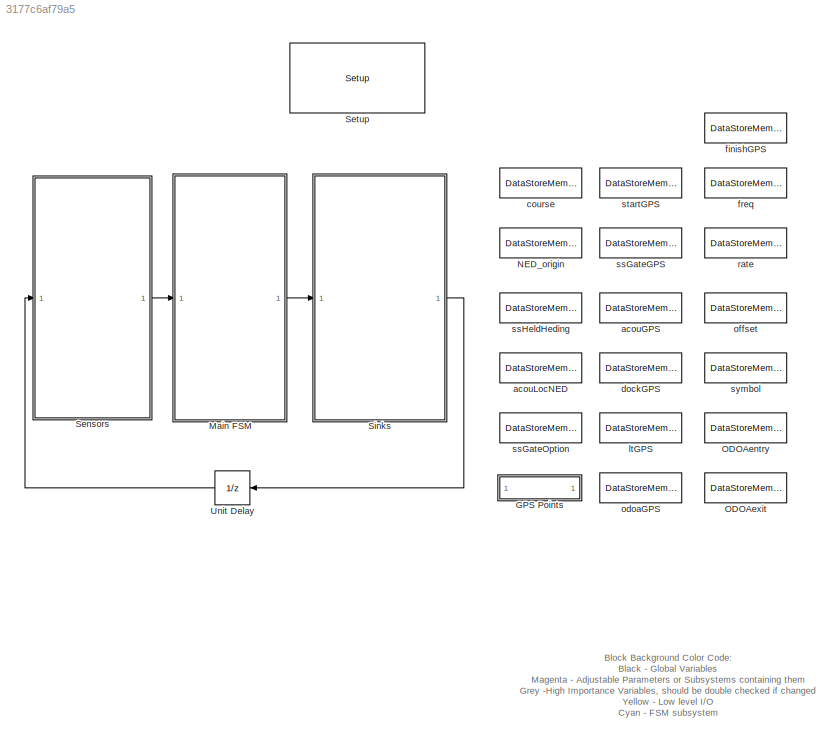
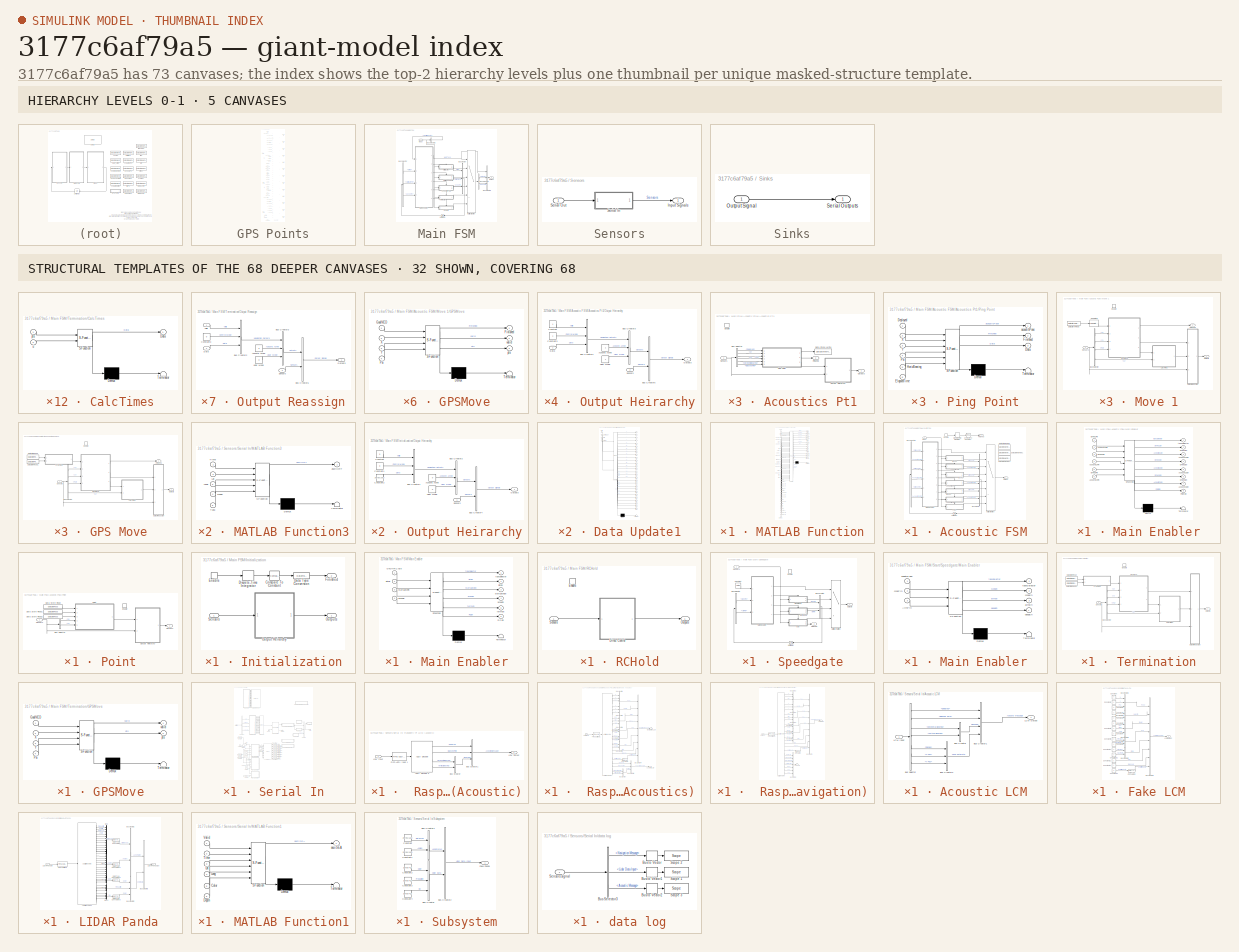
[diagram: thumbnail index - top-2 hierarchy levels (5 canvases) + 32 structural-template representatives of the remaining 68 canvases]
MODEL slx_3177c6af79a5
KIND model
BLOCK [SubSystem] GPS Points
  Ports = []
  RequestExecContextInheritance = off
BLOCK [Constant] GPS Points/Course A Acoustics
  Value = [1.28808, 103.85714; 1.28869, 103.85669; 1.28817, 103.85658; 1.28867, 103.85708]
  VectorParams1D = off
BLOCK [Constant] GPS Points/Course A Dock
  Value = [1.28881, 103.85717; 1.28875, 103.85753; 1.28862, 103.85721; 1.28857, 103.85749]
  VectorParams1D = off
BLOCK [Constant] GPS Points/Course A Freq
  Value = 28
  VectorParams1D = off
BLOCK [Constant] GPS Points/Course A LightTower
  Value = [1.28862, 103.85721; 1.28857, 103.85749; 1.28806, 103.85717; 1.28806, 103.85742]
  VectorParams1D = off
BLOCK [Constant] GPS Points/Course A ODOA
  Value = [1.28806, 103.85717; 1.28806, 103.85742; 1.28733, 103.85708; 1.28731, 103.85736]
  VectorParams1D = off
BLOCK [Constant] GPS Points/Course A ODOAentry
  VectorParams1D = off
BLOCK [Constant] GPS Points/Course A ODOAexit
  Value = 2
  VectorParams1D = off
BLOCK [Constant] GPS Points/Course A Offset
  Value = 0
  VectorParams1D = off
BLOCK [Constant] GPS Points/Course A Rate
  VectorParams1D = off
BLOCK [Constant] GPS Points/Course A Start
  Value = [1.28733, 103.85683]
  VectorParams1D = off
BLOCK [Constant] GPS Points/Course A Symbol
  Value = 2
  VectorParams1D = off
BLOCK [Constant] GPS Points/Course A finishGPS
  Value = [1.28722, 103.85713; 1.28721, 103.85728]
  VectorParams1D = off
BLOCK [Constant] GPS Points/Course A ssGate
  Value = [1.28772, 103.85675; 1.28739, 103.85675; 1.28739, 103.85694; 1.28772, 103.85694]
  VectorParams1D = off
BLOCK [Constant] GPS Points/Course B Acoustics
  Value = [1.28856, 103.85761; 1.28867, 103.85794; 1.28800, 103.85786; 1.28800, 103.85750]
  VectorParams1D = off
BLOCK [Constant] GPS Points/Course B Dock
  Value = [1.28875, 103.85811; 1.28869, 103.85844; 1.28859, 103.85810; 1.28854, 103.85838]
  VectorParams1D = off
BLOCK [Constant] GPS Points/Course B Freq
  Value = 32
  VectorParams1D = off
BLOCK [Constant] GPS Points/Course B LightTower
  Value = [1.28859, 103.85810; 1.28854, 103.85838; 1.28803, 103.85831; 1.28806, 103.85806]
  VectorParams1D = off
BLOCK [Constant] GPS Points/Course B ODOA
  Value = [1.28803, 103.85831; 1.28806, 103.85806; 1.28722, 103.85811; 1.28719, 103.85833]
  VectorParams1D = off
BLOCK [Constant] GPS Points/Course B ODOAentry
  VectorParams1D = off
BLOCK [Constant] GPS Points/Course B ODOAexit
  Value = 2
  VectorParams1D = off
BLOCK [Constant] GPS Points/Course B Offset
  Value = 400
  VectorParams1D = off
BLOCK [Constant] GPS Points/Course B Rate
  VectorParams1D = off
BLOCK [Constant] GPS Points/Course B Start
  Value = [1.28717, 103.85775]
  VectorParams1D = off
BLOCK [Constant] GPS Points/Course B Symbol
  Value = 2
  VectorParams1D = off
BLOCK [Constant] GPS Points/Course B finishGPS
  Value = [1.28712, 103.85812; 1.28710, 103.85837]
  VectorParams1D = off
BLOCK [Constant] GPS Points/Course B ssGate
  Value = [1.28775, 103.85761; 1.28725, 103.85764; 1.28719, 103.85786; 1.28767, 103.85789]
  VectorParams1D = off
BLOCK [Constant] GPS Points/Course T Acoustics
  Value = [1.28856, 103.85761; 1.28867, 103.85794; 1.28800, 103.85786; 1.28800, 103.85750]
  VectorParams1D = off
BLOCK [Constant] GPS Points/Course T Dock
  Value = [1.28875, 103.85811; 1.28869, 103.85844; 1.28859, 103.85810; 1.28854, 103.85838]
  VectorParams1D = off
BLOCK [Constant] GPS Points/Course T Freq
  Value = 32
  VectorParams1D = off
BLOCK [Constant] GPS Points/Course T LightTower
  Value = [1.28859, 103.85810; 1.28854, 103.85838; 1.28803, 103.85831; 1.28806, 103.85806]
  VectorParams1D = off
BLOCK [Constant] GPS Points/Course T ODOA
  Value = [1.28803, 103.85831; 1.28806, 103.85806; 1.28722, 103.85811; 1.28719, 103.85833]
  VectorParams1D = off
BLOCK [Constant] GPS Points/Course T ODOAentry
  VectorParams1D = off
BLOCK [Constant] GPS Points/Course T ODOAexit
  Value = 2
  VectorParams1D = off
BLOCK [Constant] GPS Points/Course T Offset
  Value = 400
  VectorParams1D = off
BLOCK [Constant] GPS Points/Course T Rate
  VectorParams1D = off
BLOCK [Constant] GPS Points/Course T Start
  Value = [1.28717, 103.85775]
  VectorParams1D = off
BLOCK [Constant] GPS Points/Course T Symbol
  Value = 2
  VectorParams1D = off
BLOCK [Constant] GPS Points/Course T finishGPS
  Value = [1.28712, 103.85812; 1.28710, 103.85837]
  VectorParams1D = off
BLOCK [Constant] GPS Points/Course T ssGate
  Value = [1.28775, 103.85761; 1.28725, 103.85764; 1.28719, 103.85786; 1.28767, 103.85789]
  VectorParams1D = off
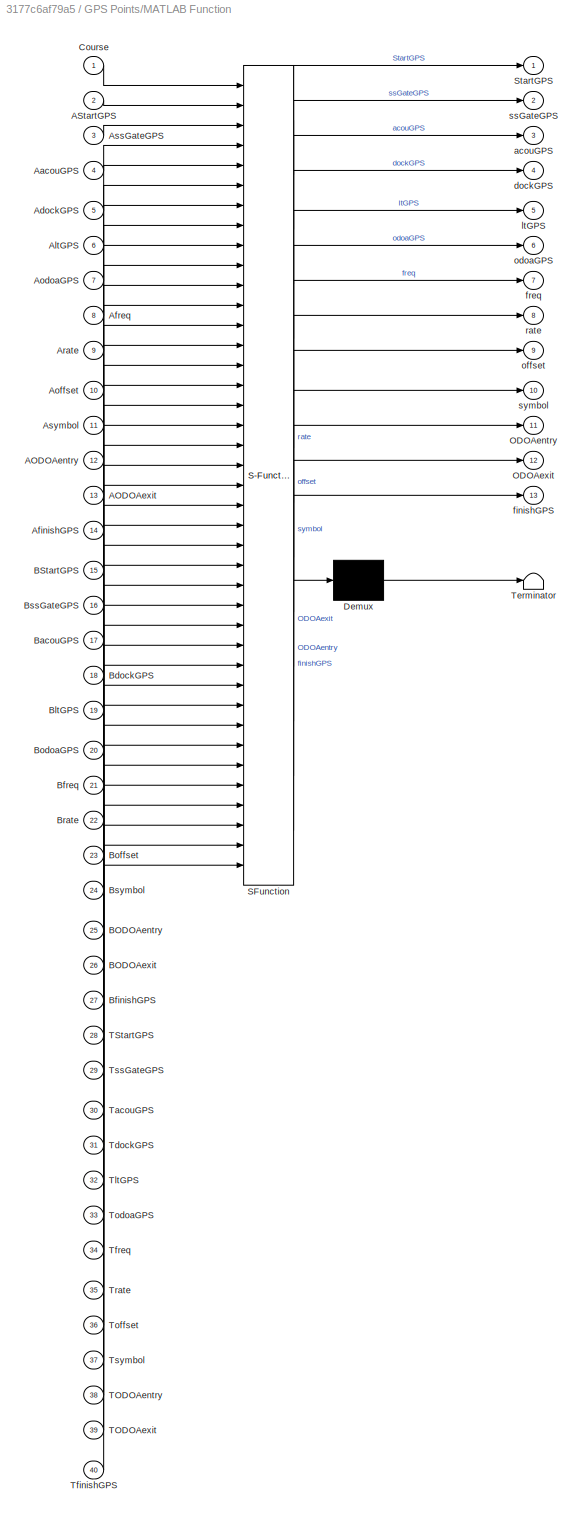
BLOCK [SubSystem] GPS Points/MATLAB Function
  ErrorFcn = Stateflow.Translate.translate
  PermitHierarchicalResolution = ExplicitOnly
  Ports = [40, 13]
  RequestExecContextInheritance = off
  SFBlockType = MATLAB Function
  TreatAsAtomicUnit = on
BLOCK [Demux] GPS Points/MATLAB Function/ Demux 
  Outputs = 1
  Ports = [1, 1]
BLOCK [S-Function] GPS Points/MATLAB Function/ SFunction 
  EnableBusSupport = on
  FunctionName = sf_sfun
  PortCounts = [40 14]
  Ports = [40, 14]
  Tag = Stateflow S-Function RobotX_ss_acoustics_1020 24
BLOCK [Terminator] GPS Points/MATLAB Function/ Terminator 
BLOCK [Inport] GPS Points/MATLAB Function/AODOAentry
  IconDisplay = Port number
  Port = 12
BLOCK [Inport] GPS Points/MATLAB Function/AODOAexit
  IconDisplay = Port number
  Port = 13
BLOCK [Inport] GPS Points/MATLAB Function/AStartGPS
  IconDisplay = Port number
  Port = 2
BLOCK [Inport] GPS Points/MATLAB Function/AacouGPS
  IconDisplay = Port number
  Port = 4
BLOCK [Inport] GPS Points/MATLAB Function/AdockGPS
  IconDisplay = Port number
  Port = 5
BLOCK [Inport] GPS Points/MATLAB Function/AfinishGPS
  IconDisplay = Port number
  Port = 14
BLOCK [Inport] GPS Points/MATLAB Function/Afreq
  IconDisplay = Port number
  Port = 8
BLOCK [Inport] GPS Points/MATLAB Function/AltGPS
  IconDisplay = Port number
  Port = 6
BLOCK [Inport] GPS Points/MATLAB Function/AodoaGPS
  IconDisplay = Port number
  Port = 7
BLOCK [Inport] GPS Points/MATLAB Function/Aoffset
  IconDisplay = Port number
  Port = 10
BLOCK [Inport] GPS Points/MATLAB Function/Arate
  IconDisplay = Port number
  Port = 9
BLOCK [Inport] GPS Points/MATLAB Function/AssGateGPS
  IconDisplay = Port number
  Port = 3
BLOCK [Inport] GPS Points/MATLAB Function/Asymbol
  IconDisplay = Port number
  Port = 11
BLOCK [Inport] GPS Points/MATLAB Function/BODOAentry
  IconDisplay = Port number
  Port = 25
BLOCK [Inport] GPS Points/MATLAB Function/BODOAexit
  IconDisplay = Port number
  Port = 26
BLOCK [Inport] GPS Points/MATLAB Function/BStartGPS
  IconDisplay = Port number
  Port = 15
BLOCK [Inport] GPS Points/MATLAB Function/BacouGPS
  IconDisplay = Port number
  Port = 17
BLOCK [Inport] GPS Points/MATLAB Function/BdockGPS
  IconDisplay = Port number
  Port = 18
BLOCK [Inport] GPS Points/MATLAB Function/BfinishGPS
  IconDisplay = Port number
  Port = 27
BLOCK [Inport] GPS Points/MATLAB Function/Bfreq
  IconDisplay = Port number
  Port = 21
BLOCK [Inport] GPS Points/MATLAB Function/BltGPS
  IconDisplay = Port number
  Port = 19
BLOCK [Inport] GPS Points/MATLAB Function/BodoaGPS
  IconDisplay = Port number
  Port = 20
BLOCK [Inport] GPS Points/MATLAB Function/Boffset
  IconDisplay = Port number
  Port = 23
BLOCK [Inport] GPS Points/MATLAB Function/Brate
  IconDisplay = Port number
  Port = 22
BLOCK [Inport] GPS Points/MATLAB Function/BssGateGPS
  IconDisplay = Port number
  Port = 16
BLOCK [Inport] GPS Points/MATLAB Function/Bsymbol
  IconDisplay = Port number
  Port = 24
BLOCK [Inport] GPS Points/MATLAB Function/Course
  IconDisplay = Port number
BLOCK [Outport] GPS Points/MATLAB Function/ODOAentry
  IconDisplay = Port number
  Port = 11
BLOCK [Outport] GPS Points/MATLAB Function/ODOAexit
  IconDisplay = Port number
  Port = 12
BLOCK [Outport] GPS Points/MATLAB Function/StartGPS
  IconDisplay = Port number
BLOCK [Inport] GPS Points/MATLAB Function/TODOAentry
  IconDisplay = Port number
  Port = 38
BLOCK [Inport] GPS Points/MATLAB Function/TODOAexit
  IconDisplay = Port number
  Port = 39
BLOCK [Inport] GPS Points/MATLAB Function/TStartGPS
  IconDisplay = Port number
  Port = 28
BLOCK [Inport] GPS Points/MATLAB Function/TacouGPS
  IconDisplay = Port number
  Port = 30
BLOCK [Inport] GPS Points/MATLAB Function/TdockGPS
  IconDisplay = Port number
  Port = 31
BLOCK [Inport] GPS Points/MATLAB Function/TfinishGPS
  IconDisplay = Port number
  Port = 40
BLOCK [Inport] GPS Points/MATLAB Function/Tfreq
  IconDisplay = Port number
  Port = 34
BLOCK [Inport] GPS Points/MATLAB Function/TltGPS
  IconDisplay = Port number
  Port = 32
BLOCK [Inport] GPS Points/MATLAB Function/TodoaGPS
  IconDisplay = Port number
  Port = 33
BLOCK [Inport] GPS Points/MATLAB Function/Toffset
  IconDisplay = Port number
  Port = 36
BLOCK [Inport] GPS Points/MATLAB Function/Trate
  IconDisplay = Port number
  Port = 35
BLOCK [Inport] GPS Points/MATLAB Function/TssGateGPS
  IconDisplay = Port number
  Port = 29
BLOCK [Inport] GPS Points/MATLAB Function/Tsymbol
  IconDisplay = Port number
  Port = 37
BLOCK [Outport] GPS Points/MATLAB Function/acouGPS
  IconDisplay = Port number
  Port = 3
BLOCK [Outport] GPS Points/MATLAB Function/dockGPS
  IconDisplay = Port number
  Port = 4
BLOCK [Outport] GPS Points/MATLAB Function/finishGPS
  IconDisplay = Port number
  Port = 13
BLOCK [Outport] GPS Points/MATLAB Function/freq
  IconDisplay = Port number
  Port = 7
BLOCK [Outport] GPS Points/MATLAB Function/ltGPS
  IconDisplay = Port number
  Port = 5
BLOCK [Outport] GPS Points/MATLAB Function/odoaGPS
  IconDisplay = Port number
  Port = 6
BLOCK [Outport] GPS Points/MATLAB Function/offset
  IconDisplay = Port number
  Port = 9
BLOCK [Outport] GPS Points/MATLAB Function/rate
  IconDisplay = Port number
  Port = 8
BLOCK [Outport] GPS Points/MATLAB Function/ssGateGPS
  IconDisplay = Port number
  Port = 2
BLOCK [Outport] GPS Points/MATLAB Function/symbol
  IconDisplay = Port number
  Port = 10
BLOCK [DataStoreRead] GPS Points/Read
  DataStoreName = Course
  Ports = [0, 1]
BLOCK [DataStoreWrite] GPS Points/Write
  DataStoreName = startGPS
  Ports = [1]
BLOCK [DataStoreWrite] GPS Points/Write1
  DataStoreName = ssGateGPS
  Ports = [1]
BLOCK [DataStoreWrite] GPS Points/Write10
  DataStoreName = ODOAentry
  Ports = [1]
BLOCK [DataStoreWrite] GPS Points/Write11
  DataStoreName = ODOAexit
  Ports = [1]
BLOCK [DataStoreWrite] GPS Points/Write12
  DataStoreName = finishGPS
  Ports = [1]
BLOCK [DataStoreWrite] GPS Points/Write2
  DataStoreName = acouGPS
  Ports = [1]
BLOCK [DataStoreWrite] GPS Points/Write3
  DataStoreName = dockGPS
  Ports = [1]
BLOCK [DataStoreWrite] GPS Points/Write4
  DataStoreName = ltGPS
  Ports = [1]
BLOCK [DataStoreWrite] GPS Points/Write5
  DataStoreName = odoaGPS
  Ports = [1]
BLOCK [DataStoreWrite] GPS Points/Write6
  DataStoreName = freq
  Ports = [1]
BLOCK [DataStoreWrite] GPS Points/Write7
  DataStoreName = rate
  Ports = [1]
BLOCK [DataStoreWrite] GPS Points/Write8
  DataStoreName = offset
  Ports = [1]
BLOCK [DataStoreWrite] GPS Points/Write9
  DataStoreName = symbol
  Ports = [1]
BLOCK [SubSystem] Main FSM
  Ports = [1, 1]
  RequestExecContextInheritance = off
BLOCK [SubSystem] Main FSM/Acoustic FSM
  Ports = [1, 2, 1]
  RequestExecContextInheritance = off
BLOCK [SubSystem] Main FSM/Acoustic FSM/Acoustics Pt1
  Ports = [1, 2, 1]
  RequestExecContextInheritance = off
  TreatAsAtomicUnit = on
BLOCK [BusSelector] Main FSM/Acoustic FSM/Acoustics Pt1/Bus Selector
  OutputSignals = Acoustic Message.Deployed,Navigation Message.Pose.X,Navigation Message.Pose.Y,Navigation Message.Pose.Psi,Acoustic Message.Bearings.Horizontal Bearing,Acoustic Message.Elapsed Time
  Ports = [1, 6]
BLOCK [DataStoreWrite] Main FSM/Acoustic FSM/Acoustics Pt1/Data Store Write
  DataStoreName = AcousticPose1
  Ports = [1]
BLOCK [EnablePort] Main FSM/Acoustic FSM/Acoustics Pt1/Enable
  Ports = []
BLOCK [Outport] Main FSM/Acoustic FSM/Acoustics Pt1/Finished
  IconDisplay = Port number
  Port = 2
BLOCK [SubSystem] Main FSM/Acoustic FSM/Acoustics Pt1/Output Heirarchy
  Ports = [2, 1]
  RequestExecContextInheritance = off
BLOCK [Constant] Main FSM/Acoustic FSM/Acoustics Pt1/Output Heirarchy/Acoustic Active
BLOCK [BusCreator] Main FSM/Acoustic FSM/Acoustics Pt1/Output Heirarchy/Bus Creator2
  DisplayOption = bar
  Inputs = 3
  Ports = [3, 1]
BLOCK [BusCreator] Main FSM/Acoustic FSM/Acoustics Pt1/Output Heirarchy/Bus Creator3
  DisplayOption = bar
  Inputs = 3
  Ports = [3, 1]
BLOCK [BusCreator] Main FSM/Acoustic FSM/Acoustics Pt1/Output Heirarchy/Bus Creator5
  DisplayOption = bar
  Inputs = 2
  Ports = [2, 1]
BLOCK [Constant] Main FSM/Acoustic FSM/Acoustics Pt1/Output Heirarchy/Constant
BLOCK [Constant] Main FSM/Acoustic FSM/Acoustics Pt1/Output Heirarchy/Constant3
BLOCK [Inport] Main FSM/Acoustic FSM/Acoustics Pt1/Output Heirarchy/Data
  IconDisplay = Port number
BLOCK [Constant] Main FSM/Acoustic FSM/Acoustics Pt1/Output Heirarchy/Lidar Mode
BLOCK [Outport] Main FSM/Acoustic FSM/Acoustics Pt1/Output Heirarchy/Outputs
  IconDisplay = Port number
BLOCK [Inport] Main FSM/Acoustic FSM/Acoustics Pt1/Output Heirarchy/Sensors
  IconDisplay = Port number
  Port = 2
BLOCK [Outport] Main FSM/Acoustic FSM/Acoustics Pt1/Outputs
  IconDisplay = Port number
BLOCK [SubSystem] Main FSM/Acoustic FSM/Acoustics Pt1/Ping Point
  ErrorFcn = Stateflow.Translate.translate
  PermitHierarchicalResolution = ExplicitOnly
  Ports = [6, 3]
  RequestExecContextInheritance = off
  SFBlockType = MATLAB Function
  TreatAsAtomicUnit = on
BLOCK [Demux] Main FSM/Acoustic FSM/Acoustics Pt1/Ping Point/ Demux 
  Outputs = 1
  Ports = [1, 1]
BLOCK [S-Function] Main FSM/Acoustic FSM/Acoustics Pt1/Ping Point/ SFunction 
  EnableBusSupport = on
  FunctionName = sf_sfun
  PortCounts = [6 4]
  Ports = [6, 4]
  Tag = Stateflow S-Function RobotX_ss_acoustics_1020 2
BLOCK [Terminator] Main FSM/Acoustic FSM/Acoustics Pt1/Ping Point/ Terminator 
BLOCK [Outport] Main FSM/Acoustic FSM/Acoustics Pt1/Ping Point/Data
  IconDisplay = Port number
  Port = 3
BLOCK [Inport] Main FSM/Acoustic FSM/Acoustics Pt1/Ping Point/Deployed
  IconDisplay = Port number
BLOCK [Inport] Main FSM/Acoustic FSM/Acoustics Pt1/Ping Point/ElapsedTime
  IconDisplay = Port number
  Port = 6
BLOCK [Outport] Main FSM/Acoustic FSM/Acoustics Pt1/Ping Point/Finished
  IconDisplay = Port number
  Port = 2
BLOCK [Inport] Main FSM/Acoustic FSM/Acoustics Pt1/Ping Point/HorizBearing
  IconDisplay = Port number
  Port = 5
BLOCK [Inport] Main FSM/Acoustic FSM/Acoustics Pt1/Ping Point/Psi
  IconDisplay = Port number
  Port = 4
BLOCK [Inport] Main FSM/Acoustic FSM/Acoustics Pt1/Ping Point/X
  IconDisplay = Port number
  Port = 2
BLOCK [Inport] Main FSM/Acoustic FSM/Acoustics Pt1/Ping Point/Y
  IconDisplay = Port number
  Port = 3
BLOCK [Outport] Main FSM/Acoustic FSM/Acoustics Pt1/Ping Point/acousticPose
  IconDisplay = Port number
BLOCK [Inport] Main FSM/Acoustic FSM/Acoustics Pt1/Sensors
  IconDisplay = Port number
BLOCK [SubSystem] Main FSM/Acoustic FSM/Acoustics Pt2
  Ports = [1, 2, 1]
  RequestExecContextInheritance = off
  TreatAsAtomicUnit = on
BLOCK [BusSelector] Main FSM/Acoustic FSM/Acoustics Pt2/Bus Selector
  OutputSignals = Acoustic Message.Deployed,Navigation Message.Pose.X,Navigation Message.Pose.Y,Navigation Message.Pose.Psi,Acoustic Message.Bearings.Horizontal Bearing,Acoustic Message.Elapsed Time
  Ports = [1, 6]
BLOCK [DataStoreWrite] Main FSM/Acoustic FSM/Acoustics Pt2/Data Store Write
  DataStoreName = AcousticPose2
  Ports = [1]
BLOCK [EnablePort] Main FSM/Acoustic FSM/Acoustics Pt2/Enable
  Ports = []
BLOCK [Outport] Main FSM/Acoustic FSM/Acoustics Pt2/Finished
  IconDisplay = Port number
  Port = 2
BLOCK [SubSystem] Main FSM/Acoustic FSM/Acoustics Pt2/Output Heirarchy
  Ports = [2, 1]
  RequestExecContextInheritance = off
BLOCK [Constant] Main FSM/Acoustic FSM/Acoustics Pt2/Output Heirarchy/Acoustic Active
BLOCK [BusCreator] Main FSM/Acoustic FSM/Acoustics Pt2/Output Heirarchy/Bus Creator2
  DisplayOption = bar
  Inputs = 3
  Ports = [3, 1]
BLOCK [BusCreator] Main FSM/Acoustic FSM/Acoustics Pt2/Output Heirarchy/Bus Creator3
  DisplayOption = bar
  Inputs = 3
  Ports = [3, 1]
BLOCK [BusCreator] Main FSM/Acoustic FSM/Acoustics Pt2/Output Heirarchy/Bus Creator5
  DisplayOption = bar
  Inputs = 2
  Ports = [2, 1]
BLOCK [Constant] Main FSM/Acoustic FSM/Acoustics Pt2/Output Heirarchy/Constant
BLOCK [Constant] Main FSM/Acoustic FSM/Acoustics Pt2/Output Heirarchy/Constant3
BLOCK [Inport] Main FSM/Acoustic FSM/Acoustics Pt2/Output Heirarchy/Data
  IconDisplay = Port number
BLOCK [Constant] Main FSM/Acoustic FSM/Acoustics Pt2/Output Heirarchy/Lidar Mode
BLOCK [Outport] Main FSM/Acoustic FSM/Acoustics Pt2/Output Heirarchy/Outputs
  IconDisplay = Port number
BLOCK [Inport] Main FSM/Acoustic FSM/Acoustics Pt2/Output Heirarchy/Sensors
  IconDisplay = Port number
  Port = 2
BLOCK [Outport] Main FSM/Acoustic FSM/Acoustics Pt2/Outputs
  IconDisplay = Port number
BLOCK [SubSystem] Main FSM/Acoustic FSM/Acoustics Pt2/Ping Point
  ErrorFcn = Stateflow.Translate.translate
  PermitHierarchicalResolution = ExplicitOnly
  Ports = [6, 3]
  RequestExecContextInheritance = off
  SFBlockType = MATLAB Function
  TreatAsAtomicUnit = on
BLOCK [Demux] Main FSM/Acoustic FSM/Acoustics Pt2/Ping Point/ Demux 
  Outputs = 1
  Ports = [1, 1]
BLOCK [S-Function] Main FSM/Acoustic FSM/Acoustics Pt2/Ping Point/ SFunction 
  EnableBusSupport = on
  FunctionName = sf_sfun
  PortCounts = [6 4]
  Ports = [6, 4]
  Tag = Stateflow S-Function RobotX_ss_acoustics_1020 7
BLOCK [Terminator] Main FSM/Acoustic FSM/Acoustics Pt2/Ping Point/ Terminator 
BLOCK [Outport] Main FSM/Acoustic FSM/Acoustics Pt2/Ping Point/Data
  IconDisplay = Port number
  Port = 3
BLOCK [Inport] Main FSM/Acoustic FSM/Acoustics Pt2/Ping Point/Deployed
  IconDisplay = Port number
BLOCK [Inport] Main FSM/Acoustic FSM/Acoustics Pt2/Ping Point/ElapsedTime
  IconDisplay = Port number
  Port = 6
BLOCK [Outport] Main FSM/Acoustic FSM/Acoustics Pt2/Ping Point/Finished
  IconDisplay = Port number
  Port = 2
BLOCK [Inport] Main FSM/Acoustic FSM/Acoustics Pt2/Ping Point/HorizBearing
  IconDisplay = Port number
  Port = 5
BLOCK [Inport] Main FSM/Acoustic FSM/Acoustics Pt2/Ping Point/Psi
  IconDisplay = Port number
  Port = 4
BLOCK [Inport] Main FSM/Acoustic FSM/Acoustics Pt2/Ping Point/X
  IconDisplay = Port number
  Port = 2
BLOCK [Inport] Main FSM/Acoustic FSM/Acoustics Pt2/Ping Point/Y
  IconDisplay = Port number
  Port = 3
BLOCK [Outport] Main FSM/Acoustic FSM/Acoustics Pt2/Ping Point/acousticPose
  IconDisplay = Port number
BLOCK [Inport] Main FSM/Acoustic FSM/Acoustics Pt2/Sensors
  IconDisplay = Port number
BLOCK [SubSystem] Main FSM/Acoustic FSM/Acoustics Pt3
  Ports = [1, 2, 1]
  RequestExecContextInheritance = off
  TreatAsAtomicUnit = on
BLOCK [BusSelector] Main FSM/Acoustic FSM/Acoustics Pt3/Bus Selector
  OutputSignals = Acoustic Message.Deployed,Navigation Message.Pose.X,Navigation Message.Pose.Y,Navigation Message.Pose.Psi,Acoustic Message.Bearings.Horizontal Bearing,Acoustic Message.Elapsed Time
  Ports = [1, 6]
BLOCK [DataStoreWrite] Main FSM/Acoustic FSM/Acoustics Pt3/Data Store Write
  DataStoreName = AcousticPose3
  Ports = [1]
BLOCK [EnablePort] Main FSM/Acoustic FSM/Acoustics Pt3/Enable
  Ports = []
BLOCK [Outport] Main FSM/Acoustic FSM/Acoustics Pt3/Finished
  IconDisplay = Port number
  Port = 2
BLOCK [SubSystem] Main FSM/Acoustic FSM/Acoustics Pt3/Output Heirarchy
  Ports = [2, 1]
  RequestExecContextInheritance = off
BLOCK [Constant] Main FSM/Acoustic FSM/Acoustics Pt3/Output Heirarchy/Acoustic Active
BLOCK [BusCreator] Main FSM/Acoustic FSM/Acoustics Pt3/Output Heirarchy/Bus Creator2
  DisplayOption = bar
  Inputs = 3
  Ports = [3, 1]
BLOCK [BusCreator] Main FSM/Acoustic FSM/Acoustics Pt3/Output Heirarchy/Bus Creator3
  DisplayOption = bar
  Inputs = 3
  Ports = [3, 1]
BLOCK [BusCreator] Main FSM/Acoustic FSM/Acoustics Pt3/Output Heirarchy/Bus Creator5
  DisplayOption = bar
  Inputs = 2
  Ports = [2, 1]
BLOCK [Constant] Main FSM/Acoustic FSM/Acoustics Pt3/Output Heirarchy/Constant
BLOCK [Constant] Main FSM/Acoustic FSM/Acoustics Pt3/Output Heirarchy/Constant3
BLOCK [Inport] Main FSM/Acoustic FSM/Acoustics Pt3/Output Heirarchy/Data
  IconDisplay = Port number
BLOCK [Constant] Main FSM/Acoustic FSM/Acoustics Pt3/Output Heirarchy/Lidar Mode
BLOCK [Outport] Main FSM/Acoustic FSM/Acoustics Pt3/Output Heirarchy/Outputs
  IconDisplay = Port number
BLOCK [Inport] Main FSM/Acoustic FSM/Acoustics Pt3/Output Heirarchy/Sensors
  IconDisplay = Port number
  Port = 2
BLOCK [Outport] Main FSM/Acoustic FSM/Acoustics Pt3/Outputs
  IconDisplay = Port number
BLOCK [SubSystem] Main FSM/Acoustic FSM/Acoustics Pt3/Ping Point
  ErrorFcn = Stateflow.Translate.translate
  PermitHierarchicalResolution = ExplicitOnly
  Ports = [6, 3]
  RequestExecContextInheritance = off
  SFBlockType = MATLAB Function
  TreatAsAtomicUnit = on
BLOCK [Demux] Main FSM/Acoustic FSM/Acoustics Pt3/Ping Point/ Demux 
  Outputs = 1
  Ports = [1, 1]
BLOCK [S-Function] Main FSM/Acoustic FSM/Acoustics Pt3/Ping Point/ SFunction 
  EnableBusSupport = on
  FunctionName = sf_sfun
  PortCounts = [6 4]
  Ports = [6, 4]
  Tag = Stateflow S-Function RobotX_ss_acoustics_1020 12
BLOCK [Terminator] Main FSM/Acoustic FSM/Acoustics Pt3/Ping Point/ Terminator 
BLOCK [Outport] Main FSM/Acoustic FSM/Acoustics Pt3/Ping Point/Data
  IconDisplay = Port number
  Port = 3
BLOCK [Inport] Main FSM/Acoustic FSM/Acoustics Pt3/Ping Point/Deployed
  IconDisplay = Port number
BLOCK [Inport] Main FSM/Acoustic FSM/Acoustics Pt3/Ping Point/ElapsedTime
  IconDisplay = Port number
  Port = 6
BLOCK [Outport] Main FSM/Acoustic FSM/Acoustics Pt3/Ping Point/Finished
  IconDisplay = Port number
  Port = 2
BLOCK [Inport] Main FSM/Acoustic FSM/Acoustics Pt3/Ping Point/HorizBearing
  IconDisplay = Port number
  Port = 5
BLOCK [Inport] Main FSM/Acoustic FSM/Acoustics Pt3/Ping Point/Psi
  IconDisplay = Port number
  Port = 4
BLOCK [Inport] Main FSM/Acoustic FSM/Acoustics Pt3/Ping Point/X
  IconDisplay = Port number
  Port = 2
BLOCK [Inport] Main FSM/Acoustic FSM/Acoustics Pt3/Ping Point/Y
  IconDisplay = Port number
  Port = 3
BLOCK [Outport] Main FSM/Acoustic FSM/Acoustics Pt3/Ping Point/acousticPose
  IconDisplay = Port number
BLOCK [Inport] Main FSM/Acoustic FSM/Acoustics Pt3/Sensors
  IconDisplay = Port number
BLOCK [BusCreator] Main FSM/Acoustic FSM/Bus Creator
  DisplayOption = bar
  Inputs = 6
  Ports = [6, 1]
BLOCK [BusSelector] Main FSM/Acoustic FSM/Bus Selector1
  OutputSignals = Drive1Fin,Acoustic1Fin,Drive2Fin,Acoustic2Fin,Drive3Fin,Acoustic3Fin
  Ports = [1, 6]
BLOCK [Reference] Main FSM/Acoustic FSM/Compare To Constant  REF=simulink/Logic and Bit
Operations/Compare
To Constant
  OutDataTypeStr = boolean
  Ports = [1, 1]
  SourceBlock = simulink/Logic and Bit\nOperations/Compare\nTo Constant
  SourceType = Compare To Constant
  ZeroCross = on
  const = 300
  relop = >=
BLOCK [DataStoreMemory] Main FSM/Acoustic FSM/Data Store Memory
  DataStoreName = AcousticPose1
  InitialValue = [0 0 0]
  ReadBeforeWriteMsg = warning
  WriteAfterReadMsg = warning
  WriteAfterWriteMsg = warning
BLOCK [DataStoreMemory] Main FSM/Acoustic FSM/Data Store Memory1
  DataStoreName = AcousticPose2
  InitialValue = [0 0 0]
  ReadBeforeWriteMsg = warning
  WriteAfterReadMsg = warning
  WriteAfterWriteMsg = warning
BLOCK [DataStoreMemory] Main FSM/Acoustic FSM/Data Store Memory2
  DataStoreName = AcousticPose3
  InitialValue = [0 0 0]
  ReadBeforeWriteMsg = warning
  WriteAfterReadMsg = warning
  WriteAfterWriteMsg = warning
BLOCK [DiscreteIntegrator] Main FSM/Acoustic FSM/Discrete-Time Integrator
  ICPrevOutput = DiscIntNeverNeededParam
  ICPrevScaledInput = DiscIntNeverNeededParam
  Ports = [1, 1]
  SampleTime = -1
BLOCK [EnablePort] Main FSM/Acoustic FSM/Enable
  Ports = [0, 1]
  ShowOutputPort = on
BLOCK [Outport] Main FSM/Acoustic FSM/Finished
  IconDisplay = Port number
  Port = 2
BLOCK [Inport] Main FSM/Acoustic FSM/Input
  IconDisplay = Port number
BLOCK [SubSystem] Main FSM/Acoustic FSM/Main Enabler
  ErrorFcn = Stateflow.Translate.translate
  PermitHierarchicalResolution = ExplicitOnly
  Ports = [6, 8]
  RequestExecContextInheritance = off
  SFBlockType = MATLAB Function
  TreatAsAtomicUnit = on
BLOCK [Demux] Main FSM/Acoustic FSM/Main Enabler/ Demux 
  Outputs = 1
  Ports = [1, 1]
BLOCK [S-Function] Main FSM/Acoustic FSM/Main Enabler/ SFunction 
  EnableBusSupport = on
  FunctionName = sf_sfun
  PortCounts = [6 9]
  Ports = [6, 9]
  Tag = Stateflow S-Function RobotX_ss_acoustics_1020 20
BLOCK [Terminator] Main FSM/Acoustic FSM/Main Enabler/ Terminator 
BLOCK [Outport] Main FSM/Acoustic FSM/Main Enabler/Acoustic1En
  IconDisplay = Port number
  Port = 3
BLOCK [Inport] Main FSM/Acoustic FSM/Main Enabler/Acoustic1Fin
  IconDisplay = Port number
  Port = 2
BLOCK [Outport] Main FSM/Acoustic FSM/Main Enabler/Acoustic2En
  IconDisplay = Port number
  Port = 5
BLOCK [Inport] Main FSM/Acoustic FSM/Main Enabler/Acoustic2Fin
  IconDisplay = Port number
  Port = 4
BLOCK [Outport] Main FSM/Acoustic FSM/Main Enabler/Acoustic3En
  IconDisplay = Port number
  Port = 7
BLOCK [Inport] Main FSM/Acoustic FSM/Main Enabler/Acoustic3Fin
  IconDisplay = Port number
  Port = 6
BLOCK [Outport] Main FSM/Acoustic FSM/Main Enabler/Drive1En
  IconDisplay = Port number
  Port = 2
BLOCK [Inport] Main FSM/Acoustic FSM/Main Enabler/Drive1Fin
  IconDisplay = Port number
BLOCK [Outport] Main FSM/Acoustic FSM/Main Enabler/Drive2En
  IconDisplay = Port number
  Port = 4
BLOCK [Inport] Main FSM/Acoustic FSM/Main Enabler/Drive2Fin
  IconDisplay = Port number
  Port = 3
BLOCK [Outport] Main FSM/Acoustic FSM/Main Enabler/Drive3En
  IconDisplay = Port number
  Port = 6
BLOCK [Inport] Main FSM/Acoustic FSM/Main Enabler/Drive3Fin
  IconDisplay = Port number
  Port = 5
BLOCK [Outport] Main FSM/Acoustic FSM/Main Enabler/PointEn
  IconDisplay = Port number
  Port = 8
BLOCK [Outport] Main FSM/Acoustic FSM/Main Enabler/taskSelector
  IconDisplay = Port number
BLOCK [SubSystem] Main FSM/Acoustic FSM/Move 1
  Ports = [1, 2, 1]
  RequestExecContextInheritance = off
BLOCK [BusSelector] Main FSM/Acoustic FSM/Move 1/Bus Selector
  OutputSignals = Navigation Message.Pose.X,Navigation Message.Pose.Y,Navigation Message.Pose.Psi,Navigation Message.Velocity.u
  Ports = [1, 4]
BLOCK [SubSystem] Main FSM/Acoustic FSM/Move 1/CalcTimes
  ErrorFcn = Stateflow.Translate.translate
  PermitHierarchicalResolution = ExplicitOnly
  Ports = [2, 1]
  RequestExecContextInheritance = off
  SFBlockType = MATLAB Function
  TreatAsAtomicUnit = on
BLOCK [Demux] Main FSM/Acoustic FSM/Move 1/CalcTimes/ Demux 
  Outputs = 1
  Ports = [1, 1]
BLOCK [S-Function] Main FSM/Acoustic FSM/Move 1/CalcTimes/ SFunction 
  EnableBusSupport = on
  FunctionName = sf_sfun
  PortCounts = [2 2]
  Ports = [2, 2]
  Tag = Stateflow S-Function RobotX_ss_acoustics_1020 22
BLOCK [Terminator] Main FSM/Acoustic FSM/Move 1/CalcTimes/ Terminator 
BLOCK [Outport] Main FSM/Acoustic FSM/Move 1/CalcTimes/Data
  IconDisplay = Port number
BLOCK [Inport] Main FSM/Acoustic FSM/Move 1/CalcTimes/pts
  IconDisplay = Port number
BLOCK [Inport] Main FSM/Acoustic FSM/Move 1/CalcTimes/u
  IconDisplay = Port number
  Port = 2
BLOCK [DataStoreRead] Main FSM/Acoustic FSM/Move 1/Data Store Read
  DataStoreName = acouLocNED
  Ports = [0, 1]
BLOCK [EnablePort] Main FSM/Acoustic FSM/Move 1/Enable
  Ports = []
BLOCK [Outport] Main FSM/Acoustic FSM/Move 1/Finished
  IconDisplay = Port number
  Port = 2
BLOCK [SubSystem] Main FSM/Acoustic FSM/Move 1/GPSMove
  ErrorFcn = Stateflow.Translate.translate
  PermitHierarchicalResolution = ExplicitOnly
  Ports = [4, 3]
  RequestExecContextInheritance = off
  SFBlockType = MATLAB Function
  TreatAsAtomicUnit = on
BLOCK [Demux] Main FSM/Acoustic FSM/Move 1/GPSMove/ Demux 
  Outputs = 1
  Ports = [1, 1]
BLOCK [S-Function] Main FSM/Acoustic FSM/Move 1/GPSMove/ SFunction 
  EnableBusSupport = on
  FunctionName = sf_sfun
  PortCounts = [4 4]
  Ports = [4, 4]
  Tag = Stateflow S-Function RobotX_ss_acoustics_1020 23
BLOCK [Terminator] Main FSM/Acoustic FSM/Move 1/GPSMove/ Terminator 
BLOCK [Outport] Main FSM/Acoustic FSM/Move 1/GPSMove/Finished
  IconDisplay = Port number
BLOCK [Inport] Main FSM/Acoustic FSM/Move 1/GPSMove/GoalNED
  IconDisplay = Port number
BLOCK [Inport] Main FSM/Acoustic FSM/Move 1/GPSMove/Psi
  IconDisplay = Port number
  Port = 4
BLOCK [Inport] Main FSM/Acoustic FSM/Move 1/GPSMove/X
  IconDisplay = Port number
  Port = 2
BLOCK [Inport] Main FSM/Acoustic FSM/Move 1/GPSMove/Y
  IconDisplay = Port number
  Port = 3
BLOCK [Outport] Main FSM/Acoustic FSM/Move 1/GPSMove/pts
  IconDisplay = Port number
  Port = 3
BLOCK [Outport] Main FSM/Acoustic FSM/Move 1/GPSMove/valid
  IconDisplay = Port number
  Port = 2
BLOCK [SubSystem] Main FSM/Acoustic FSM/Move 1/Output Reassign
  Ports = [3, 1]
  RequestExecContextInheritance = off
BLOCK [Constant] Main FSM/Acoustic FSM/Move 1/Output Reassign/Acoustic Active
  Value = 0
BLOCK [BusCreator] Main FSM/Acoustic FSM/Move 1/Output Reassign/Bus Creator2
  DisplayOption = bar
  Inputs = 3
  Ports = [3, 1]
BLOCK [BusCreator] Main FSM/Acoustic FSM/Move 1/Output Reassign/Bus Creator3
  DisplayOption = bar
  Inputs = 3
  Ports = [3, 1]
BLOCK [BusCreator] Main FSM/Acoustic FSM/Move 1/Output Reassign/Bus Creator5
  DisplayOption = bar
  Inputs = 2
  Ports = [2, 1]
BLOCK [Constant] Main FSM/Acoustic FSM/Move 1/Output Reassign/Constant3
  Value = 0
BLOCK [Inport] Main FSM/Acoustic FSM/Move 1/Output Reassign/Data
  IconDisplay = Port number
  Port = 2
BLOCK [Constant] Main FSM/Acoustic FSM/Move 1/Output Reassign/Lidar Mode
  Value = 0
BLOCK [Outport] Main FSM/Acoustic FSM/Move 1/Output Reassign/Outputs
  IconDisplay = Port number
BLOCK [Inport] Main FSM/Acoustic FSM/Move 1/Output Reassign/Sensors
  IconDisplay = Port number
  Port = 3
BLOCK [Inport] Main FSM/Acoustic FSM/Move 1/Output Reassign/Vaild
  IconDisplay = Port number
BLOCK [Outport] Main FSM/Acoustic FSM/Move 1/Outputs
  IconDisplay = Port number
BLOCK [Inport] Main FSM/Acoustic FSM/Move 1/Sensors
  IconDisplay = Port number
BLOCK [Reference] Main FSM/Acoustic FSM/Move 1/Submatrix  REF=dspmtrx3/Submatrix
  ColEndIndex = 1
  ColEndMode = Last
  ColSpan = All columns
  ColStartIndex = 1
  ColStartMode = First
  Ports = [1, 1]
  RowEndIndex = 1
  RowEndMode = Last
  RowSpan = One row
  RowStartIndex = 1
  RowStartMode = First
  SourceBlock = dspmtrx3/Submatrix
  SourceType = Submatrix
BLOCK [SubSystem] Main FSM/Acoustic FSM/Move 2
  Ports = [1, 2, 1]
  RequestExecContextInheritance = off
BLOCK [BusSelector] Main FSM/Acoustic FSM/Move 2/Bus Selector
  OutputSignals = Navigation Message.Pose.X,Navigation Message.Pose.Y,Navigation Message.Pose.Psi,Navigation Message.Velocity.u
  Ports = [1, 4]
BLOCK [SubSystem] Main FSM/Acoustic FSM/Move 2/CalcTimes
  ErrorFcn = Stateflow.Translate.translate
  PermitHierarchicalResolution = ExplicitOnly
  Ports = [2, 1]
  RequestExecContextInheritance = off
  SFBlockType = MATLAB Function
  TreatAsAtomicUnit = on
BLOCK [Demux] Main FSM/Acoustic FSM/Move 2/CalcTimes/ Demux 
  Outputs = 1
  Ports = [1, 1]
BLOCK [S-Function] Main FSM/Acoustic FSM/Move 2/CalcTimes/ SFunction 
  EnableBusSupport = on
  FunctionName = sf_sfun
  PortCounts = [2 2]
  Ports = [2, 2]
  Tag = Stateflow S-Function RobotX_ss_acoustics_1020 8
BLOCK [Terminator] Main FSM/Acoustic FSM/Move 2/CalcTimes/ Terminator 
BLOCK [Outport] Main FSM/Acoustic FSM/Move 2/CalcTimes/Data
  IconDisplay = Port number
BLOCK [Inport] Main FSM/Acoustic FSM/Move 2/CalcTimes/pts
  IconDisplay = Port number
BLOCK [Inport] Main FSM/Acoustic FSM/Move 2/CalcTimes/u
  IconDisplay = Port number
  Port = 2
BLOCK [DataStoreRead] Main FSM/Acoustic FSM/Move 2/Data Store Read
  DataStoreName = acouLocNED
  Ports = [0, 1]
BLOCK [EnablePort] Main FSM/Acoustic FSM/Move 2/Enable
  Ports = []
BLOCK [Outport] Main FSM/Acoustic FSM/Move 2/Finished
  IconDisplay = Port number
  Port = 2
BLOCK [SubSystem] Main FSM/Acoustic FSM/Move 2/GPSMove
  ErrorFcn = Stateflow.Translate.translate
  PermitHierarchicalResolution = ExplicitOnly
  Ports = [4, 3]
  RequestExecContextInheritance = off
  SFBlockType = MATLAB Function
  TreatAsAtomicUnit = on
BLOCK [Demux] Main FSM/Acoustic FSM/Move 2/GPSMove/ Demux 
  Outputs = 1
  Ports = [1, 1]
BLOCK [S-Function] Main FSM/Acoustic FSM/Move 2/GPSMove/ SFunction 
  EnableBusSupport = on
  FunctionName = sf_sfun
  PortCounts = [4 4]
  Ports = [4, 4]
  Tag = Stateflow S-Function RobotX_ss_acoustics_1020 14
BLOCK [Terminator] Main FSM/Acoustic FSM/Move 2/GPSMove/ Terminator 
BLOCK [Outport] Main FSM/Acoustic FSM/Move 2/GPSMove/Finished
  IconDisplay = Port number
BLOCK [Inport] Main FSM/Acoustic FSM/Move 2/GPSMove/GoalNED
  IconDisplay = Port number
BLOCK [Inport] Main FSM/Acoustic FSM/Move 2/GPSMove/Psi
  IconDisplay = Port number
  Port = 4
BLOCK [Inport] Main FSM/Acoustic FSM/Move 2/GPSMove/X
  IconDisplay = Port number
  Port = 2
BLOCK [Inport] Main FSM/Acoustic FSM/Move 2/GPSMove/Y
  IconDisplay = Port number
  Port = 3
BLOCK [Outport] Main FSM/Acoustic FSM/Move 2/GPSMove/pts
  IconDisplay = Port number
  Port = 3
BLOCK [Outport] Main FSM/Acoustic FSM/Move 2/GPSMove/valid
  IconDisplay = Port number
  Port = 2
BLOCK [SubSystem] Main FSM/Acoustic FSM/Move 2/Output Reassign
  Ports = [3, 1]
  RequestExecContextInheritance = off
BLOCK [Constant] Main FSM/Acoustic FSM/Move 2/Output Reassign/Acoustic Active
  Value = 0
BLOCK [BusCreator] Main FSM/Acoustic FSM/Move 2/Output Reassign/Bus Creator2
  DisplayOption = bar
  Inputs = 3
  Ports = [3, 1]
BLOCK [BusCreator] Main FSM/Acoustic FSM/Move 2/Output Reassign/Bus Creator3
  DisplayOption = bar
  Inputs = 3
  Ports = [3, 1]
BLOCK [BusCreator] Main FSM/Acoustic FSM/Move 2/Output Reassign/Bus Creator5
  DisplayOption = bar
  Inputs = 2
  Ports = [2, 1]
BLOCK [Constant] Main FSM/Acoustic FSM/Move 2/Output Reassign/Constant3
  Value = 0
BLOCK [Inport] Main FSM/Acoustic FSM/Move 2/Output Reassign/Data
  IconDisplay = Port number
  Port = 2
BLOCK [Constant] Main FSM/Acoustic FSM/Move 2/Output Reassign/Lidar Mode
  Value = 0
BLOCK [Outport] Main FSM/Acoustic FSM/Move 2/Output Reassign/Outputs
  IconDisplay = Port number
BLOCK [Inport] Main FSM/Acoustic FSM/Move 2/Output Reassign/Sensors
  IconDisplay = Port number
  Port = 3
BLOCK [Inport] Main FSM/Acoustic FSM/Move 2/Output Reassign/Vaild
  IconDisplay = Port number
BLOCK [Outport] Main FSM/Acoustic FSM/Move 2/Outputs
  IconDisplay = Port number
BLOCK [Inport] Main FSM/Acoustic FSM/Move 2/Sensors
  IconDisplay = Port number
BLOCK [Reference] Main FSM/Acoustic FSM/Move 2/Submatrix  REF=dspmtrx3/Submatrix
  ColEndIndex = 1
  ColEndMode = Last
  ColSpan = All columns
  ColStartIndex = 1
  ColStartMode = First
  Ports = [1, 1]
  RowEndIndex = 1
  RowEndMode = Last
  RowSpan = One row
  RowStartIndex = 1
  RowStartMode = Middle
  SourceBlock = dspmtrx3/Submatrix
  SourceType = Submatrix
BLOCK [SubSystem] Main FSM/Acoustic FSM/Move 3
  Ports = [1, 2, 1]
  RequestExecContextInheritance = off
BLOCK [BusSelector] Main FSM/Acoustic FSM/Move 3/Bus Selector
  OutputSignals = Navigation Message.Pose.X,Navigation Message.Pose.Y,Navigation Message.Pose.Psi,Navigation Message.Velocity.u
  Ports = [1, 4]
BLOCK [SubSystem] Main FSM/Acoustic FSM/Move 3/CalcTimes
  ErrorFcn = Stateflow.Translate.translate
  PermitHierarchicalResolution = ExplicitOnly
  Ports = [2, 1]
  RequestExecContextInheritance = off
  SFBlockType = MATLAB Function
  TreatAsAtomicUnit = on
BLOCK [Demux] Main FSM/Acoustic FSM/Move 3/CalcTimes/ Demux 
  Outputs = 1
  Ports = [1, 1]
BLOCK [S-Function] Main FSM/Acoustic FSM/Move 3/CalcTimes/ SFunction 
  EnableBusSupport = on
  FunctionName = sf_sfun
  PortCounts = [2 2]
  Ports = [2, 2]
  Tag = Stateflow S-Function RobotX_ss_acoustics_1020 15
BLOCK [Terminator] Main FSM/Acoustic FSM/Move 3/CalcTimes/ Terminator 
BLOCK [Outport] Main FSM/Acoustic FSM/Move 3/CalcTimes/Data
  IconDisplay = Port number
BLOCK [Inport] Main FSM/Acoustic FSM/Move 3/CalcTimes/pts
  IconDisplay = Port number
BLOCK [Inport] Main FSM/Acoustic FSM/Move 3/CalcTimes/u
  IconDisplay = Port number
  Port = 2
BLOCK [DataStoreRead] Main FSM/Acoustic FSM/Move 3/Data Store Read
  DataStoreName = acouLocNED
  Ports = [0, 1]
BLOCK [EnablePort] Main FSM/Acoustic FSM/Move 3/Enable
  Ports = []
BLOCK [Outport] Main FSM/Acoustic FSM/Move 3/Finished
  IconDisplay = Port number
  Port = 2
BLOCK [SubSystem] Main FSM/Acoustic FSM/Move 3/GPSMove
  ErrorFcn = Stateflow.Translate.translate
  PermitHierarchicalResolution = ExplicitOnly
  Ports = [4, 3]
  RequestExecContextInheritance = off
  SFBlockType = MATLAB Function
  TreatAsAtomicUnit = on
BLOCK [Demux] Main FSM/Acoustic FSM/Move 3/GPSMove/ Demux 
  Outputs = 1
  Ports = [1, 1]
BLOCK [S-Function] Main FSM/Acoustic FSM/Move 3/GPSMove/ SFunction 
  EnableBusSupport = on
  FunctionName = sf_sfun
  PortCounts = [4 4]
  Ports = [4, 4]
  Tag = Stateflow S-Function RobotX_ss_acoustics_1020 16
BLOCK [Terminator] Main FSM/Acoustic FSM/Move 3/GPSMove/ Terminator 
BLOCK [Outport] Main FSM/Acoustic FSM/Move 3/GPSMove/Finished
  IconDisplay = Port number
BLOCK [Inport] Main FSM/Acoustic FSM/Move 3/GPSMove/GoalNED
  IconDisplay = Port number
BLOCK [Inport] Main FSM/Acoustic FSM/Move 3/GPSMove/Psi
  IconDisplay = Port number
  Port = 4
BLOCK [Inport] Main FSM/Acoustic FSM/Move 3/GPSMove/X
  IconDisplay = Port number
  Port = 2
BLOCK [Inport] Main FSM/Acoustic FSM/Move 3/GPSMove/Y
  IconDisplay = Port number
  Port = 3
BLOCK [Outport] Main FSM/Acoustic FSM/Move 3/GPSMove/pts
  IconDisplay = Port number
  Port = 3
BLOCK [Outport] Main FSM/Acoustic FSM/Move 3/GPSMove/valid
  IconDisplay = Port number
  Port = 2
BLOCK [SubSystem] Main FSM/Acoustic FSM/Move 3/Output Reassign
  Ports = [3, 1]
  RequestExecContextInheritance = off
BLOCK [Constant] Main FSM/Acoustic FSM/Move 3/Output Reassign/Acoustic Active
  Value = 0
BLOCK [BusCreator] Main FSM/Acoustic FSM/Move 3/Output Reassign/Bus Creator2
  DisplayOption = bar
  Inputs = 3
  Ports = [3, 1]
BLOCK [BusCreator] Main FSM/Acoustic FSM/Move 3/Output Reassign/Bus Creator3
  DisplayOption = bar
  Inputs = 3
  Ports = [3, 1]
BLOCK [BusCreator] Main FSM/Acoustic FSM/Move 3/Output Reassign/Bus Creator5
  DisplayOption = bar
  Inputs = 2
  Ports = [2, 1]
BLOCK [Constant] Main FSM/Acoustic FSM/Move 3/Output Reassign/Constant3
  Value = 0
BLOCK [Inport] Main FSM/Acoustic FSM/Move 3/Output Reassign/Data
  IconDisplay = Port number
  Port = 2
BLOCK [Constant] Main FSM/Acoustic FSM/Move 3/Output Reassign/Lidar Mode
  Value = 0
BLOCK [Outport] Main FSM/Acoustic FSM/Move 3/Output Reassign/Outputs
  IconDisplay = Port number
BLOCK [Inport] Main FSM/Acoustic FSM/Move 3/Output Reassign/Sensors
  IconDisplay = Port number
  Port = 3
BLOCK [Inport] Main FSM/Acoustic FSM/Move 3/Output Reassign/Vaild
  IconDisplay = Port number
BLOCK [Outport] Main FSM/Acoustic FSM/Move 3/Outputs
  IconDisplay = Port number
BLOCK [Inport] Main FSM/Acoustic FSM/Move 3/Sensors
  IconDisplay = Port number
BLOCK [Reference] Main FSM/Acoustic FSM/Move 3/Submatrix  REF=dspmtrx3/Submatrix
  ColEndIndex = 1
  ColEndMode = Last
  ColSpan = All columns
  ColStartIndex = 1
  ColStartMode = First
  Ports = [1, 1]
  RowEndIndex = 1
  RowEndMode = Last
  RowSpan = One row
  RowStartIndex = 1
  RowStartMode = Last
  SourceBlock = dspmtrx3/Submatrix
  SourceType = Submatrix
BLOCK [MultiPortSwitch] Main FSM/Acoustic FSM/Multiport Switch
  InputSameDT = off
  Inputs = 7
  Ports = [8, 1]
  SaturateOnIntegerOverflow = off
BLOCK [Outport] Main FSM/Acoustic FSM/Output
  IconDisplay = Port number
BLOCK [SubSystem] Main FSM/Acoustic FSM/Point
  Ports = [1, 1, 1]
  RequestExecContextInheritance = off
  TreatAsAtomicUnit = on
BLOCK [BusSelector] Main FSM/Acoustic FSM/Point/Bus Selector
  OutputSignals = Navigation Message.Pose.X,Navigation Message.Pose.Y
  Ports = [1, 2]
BLOCK [DataStoreRead] Main FSM/Acoustic FSM/Point/Data Store Read
  DataStoreName = AcousticPose1
  Ports = [0, 1]
BLOCK [DataStoreRead] Main FSM/Acoustic FSM/Point/Data Store Read1
  DataStoreName = AcousticPose2
  Ports = [0, 1]
BLOCK [DataStoreRead] Main FSM/Acoustic FSM/Point/Data Store Read2
  DataStoreName = AcousticPose3
  Ports = [0, 1]
BLOCK [EnablePort] Main FSM/Acoustic FSM/Point/Enable
  Ports = []
BLOCK [SubSystem] Main FSM/Acoustic FSM/Point/Output Heirarchy
  Ports = [2, 1]
  RequestExecContextInheritance = off
BLOCK [Constant] Main FSM/Acoustic FSM/Point/Output Heirarchy/Acoustic Active
BLOCK [BusCreator] Main FSM/Acoustic FSM/Point/Output Heirarchy/Bus Creator2
  DisplayOption = bar
  Inputs = 3
  Ports = [3, 1]
BLOCK [BusCreator] Main FSM/Acoustic FSM/Point/Output Heirarchy/Bus Creator3
  DisplayOption = bar
  Inputs = 3
  Ports = [3, 1]
BLOCK [BusCreator] Main FSM/Acoustic FSM/Point/Output Heirarchy/Bus Creator5
  DisplayOption = bar
  Inputs = 2
  Ports = [2, 1]
BLOCK [Constant] Main FSM/Acoustic FSM/Point/Output Heirarchy/Constant
BLOCK [Constant] Main FSM/Acoustic FSM/Point/Output Heirarchy/Constant3
BLOCK [Inport] Main FSM/Acoustic FSM/Point/Output Heirarchy/Data
  IconDisplay = Port number
BLOCK [Constant] Main FSM/Acoustic FSM/Point/Output Heirarchy/Lidar Mode
BLOCK [Outport] Main FSM/Acoustic FSM/Point/Output Heirarchy/Outputs
  IconDisplay = Port number
BLOCK [Inport] Main FSM/Acoustic FSM/Point/Output Heirarchy/Sensors
  IconDisplay = Port number
  Port = 2
BLOCK [Outport] Main FSM/Acoustic FSM/Point/Outputs
  IconDisplay = Port number
BLOCK [SubSystem] Main FSM/Acoustic FSM/Point/Point
  ErrorFcn = Stateflow.Translate.translate
  PermitHierarchicalResolution = ExplicitOnly
  Ports = [5, 1]
  RequestExecContextInheritance = off
  SFBlockType = MATLAB Function
  TreatAsAtomicUnit = on
BLOCK [Demux] Main FSM/Acoustic FSM/Point/Point/ Demux 
  Outputs = 1
  Ports = [1, 1]
BLOCK [S-Function] Main FSM/Acoustic FSM/Point/Point/ SFunction 
  EnableBusSupport = on
  FunctionName = sf_sfun
  PortCounts = [5 2]
  Ports = [5, 2]
  Tag = Stateflow S-Function RobotX_ss_acoustics_1020 21
BLOCK [Terminator] Main FSM/Acoustic FSM/Point/Point/ Terminator 
BLOCK [Inport] Main FSM/Acoustic FSM/Point/Point/AcousticPose1
  IconDisplay = Port number
BLOCK [Inport] Main FSM/Acoustic FSM/Point/Point/AcousticPose2
  IconDisplay = Port number
  Port = 2
BLOCK [Inport] Main FSM/Acoustic FSM/Point/Point/AcousticPose3
  IconDisplay = Port number
  Port = 3
BLOCK [Outport] Main FSM/Acoustic FSM/Point/Point/Data
  IconDisplay = Port number
BLOCK [Inport] Main FSM/Acoustic FSM/Point/Point/X
  IconDisplay = Port number
  Port = 4
BLOCK [Inport] Main FSM/Acoustic FSM/Point/Point/Y
  IconDisplay = Port number
  Port = 5
BLOCK [Inport] Main FSM/Acoustic FSM/Point/Sensors
  IconDisplay = Port number
BLOCK [UnitDelay] Main FSM/Acoustic FSM/Unit Delay
  InputProcessing = Elements as channels (sample based)
  SampleTime = -1
BLOCK [BusCreator] Main FSM/Bus Creator
  DisplayOption = bar
  Inputs = 3
  Ports = [3, 1]
BLOCK [BusCreator] Main FSM/Bus Creator1
  DisplayOption = bar
  Inputs = 3
  Ports = [3, 1]
BLOCK [BusSelector] Main FSM/Bus Selector
  OutputSignals = Init Fin,startgateFin,acouFin
  Ports = [1, 3]
BLOCK [BusSelector] Main FSM/Bus Selector1
  OutputSignals = Outputs,Sensors
  Ports = [1, 2]
BLOCK [BusSelector] Main FSM/Bus Selector2
  OutputSignals = Navigation Message.On/Off/RC/Auto
  Ports = [1, 1]
BLOCK [SubSystem] Main FSM/Initialization
  Ports = [1, 2, 1]
  RequestExecContextInheritance = off
BLOCK [Reference] Main FSM/Initialization/Compare To Constant  REF=simulink/Logic and Bit
Operations/Compare
To Constant
  OutDataTypeStr = boolean
  Ports = [1, 1]
  SourceBlock = simulink/Logic and Bit\nOperations/Compare\nTo Constant
  SourceType = Compare To Constant
  ZeroCross = on
  const = 50
  relop = >=
BLOCK [DataTypeConversion] Main FSM/Initialization/Data Type Conversion
  OutDataTypeStr = double
  RndMeth = Floor
  SaturateOnIntegerOverflow = off
BLOCK [DiscreteIntegrator] Main FSM/Initialization/Discrete-Time Integrator
  ICPrevOutput = DiscIntNeverNeededParam
  ICPrevScaledInput = DiscIntNeverNeededParam
  Ports = [1, 1]
  SampleTime = -1
BLOCK [EnablePort] Main FSM/Initialization/Enable
  Ports = [0, 1]
  ShowOutputPort = on
BLOCK [Outport] Main FSM/Initialization/Finished
  IconDisplay = Port number
  Port = 2
BLOCK [SubSystem] Main FSM/Initialization/Output Heirarchy
  Ports = [1, 1]
  RequestExecContextInheritance = off
BLOCK [Constant] Main FSM/Initialization/Output Heirarchy/Acoustic Active
  Value = 0
BLOCK [BusCreator] Main FSM/Initialization/Output Heirarchy/Bus Creator1
  DisplayOption = bar
  Inputs = 3
  Ports = [3, 1]
BLOCK [BusCreator] Main FSM/Initialization/Output Heirarchy/Bus Creator2
  DisplayOption = bar
  Inputs = 3
  Ports = [3, 1]
BLOCK [BusCreator] Main FSM/Initialization/Output Heirarchy/Bus Creator4
  DisplayOption = bar
  Inputs = 2
  Ports = [2, 1]
BLOCK [Constant] Main FSM/Initialization/Output Heirarchy/Constant
  Value = 0
BLOCK [Constant] Main FSM/Initialization/Output Heirarchy/Constant1
  Value = 0
BLOCK [Constant] Main FSM/Initialization/Output Heirarchy/Constant2
  Value = zeros(24,1)
BLOCK [Constant] Main FSM/Initialization/Output Heirarchy/Lidar Mode
  Value = 0
BLOCK [Outport] Main FSM/Initialization/Output Heirarchy/Outputs
  IconDisplay = Port number
BLOCK [Inport] Main FSM/Initialization/Output Heirarchy/Sensors
  IconDisplay = Port number
BLOCK [Outport] Main FSM/Initialization/Outputs
  IconDisplay = Port number
BLOCK [Inport] Main FSM/Initialization/Sensors
  IconDisplay = Port number
BLOCK [Inport] Main FSM/Input
  IconDisplay = Port number
BLOCK [SubSystem] Main FSM/Main Enabler
  ErrorFcn = Stateflow.Translate.translate
  PermitHierarchicalResolution = ExplicitOnly
  Ports = [4, 6]
  RequestExecContextInheritance = off
  SFBlockType = MATLAB Function
  TreatAsAtomicUnit = on
BLOCK [Demux] Main FSM/Main Enabler/ Demux 
  Outputs = 1
  Ports = [1, 1]
BLOCK [S-Function] Main FSM/Main Enabler/ SFunction 
  EnableBusSupport = on
  FunctionName = sf_sfun
  PortCounts = [4 7]
  Ports = [4, 7]
  Tag = Stateflow S-Function RobotX_ss_acoustics_1020 13
BLOCK [Terminator] Main FSM/Main Enabler/ Terminator 
BLOCK [Inport] Main FSM/Main Enabler/OnOffRCAuto
  IconDisplay = Port number
BLOCK [Outport] Main FSM/Main Enabler/RCEn
  IconDisplay = Port number
  Port = 6
BLOCK [Outport] Main FSM/Main Enabler/acouEn
  IconDisplay = Port number
  Port = 4
BLOCK [Inport] Main FSM/Main Enabler/acouFin
  IconDisplay = Port number
  Port = 4
BLOCK [Outport] Main FSM/Main Enabler/initEn
  IconDisplay = Port number
  Port = 2
BLOCK [Inport] Main FSM/Main Enabler/initFin
  IconDisplay = Port number
  Port = 2
BLOCK [Outport] Main FSM/Main Enabler/startgateEn
  IconDisplay = Port number
  Port = 3
BLOCK [Inport] Main FSM/Main Enabler/startgateFin
  IconDisplay = Port number
  Port = 3
BLOCK [Outport] Main FSM/Main Enabler/taskSelector
  IconDisplay = Port number
BLOCK [Outport] Main FSM/Main Enabler/termEn
  IconDisplay = Port number
  Port = 5
BLOCK [MultiPortSwitch] Main FSM/Multiport Switch
  InputSameDT = off
  Inputs = 5
  Ports = [6, 1]
  SaturateOnIntegerOverflow = off
BLOCK [Outport] Main FSM/Output
  IconDisplay = Port number
BLOCK [SubSystem] Main FSM/RCHold
  Ports = [1, 1, 1]
  RequestExecContextInheritance = off
BLOCK [SubSystem] Main FSM/RCHold/Direct Control
  Ports = [1, 1]
  RequestExecContextInheritance = off
BLOCK [Constant] Main FSM/RCHold/Direct Control/Acoustic Active
  Value = 0
BLOCK [BusCreator] Main FSM/RCHold/Direct Control/Bus Creator2
  DisplayOption = bar
  Inputs = 3
  Ports = [3, 1]
BLOCK [BusCreator] Main FSM/RCHold/Direct Control/Bus Creator3
  DisplayOption = bar
  Inputs = 3
  Ports = [3, 1]
BLOCK [BusCreator] Main FSM/RCHold/Direct Control/Bus Creator4
  DisplayOption = bar
  Inputs = 2
  Ports = [2, 1]
BLOCK [Constant] Main FSM/RCHold/Direct Control/Constant
BLOCK [Constant] Main FSM/RCHold/Direct Control/Constant1
  Value = 2
BLOCK [Constant] Main FSM/RCHold/Direct Control/Constant2
  Value = zeros(24,1)
BLOCK [Constant] Main FSM/RCHold/Direct Control/Lidar Mode
  Value = 3
BLOCK [Outport] Main FSM/RCHold/Direct Control/Outputs
  IconDisplay = Port number
BLOCK [Inport] Main FSM/RCHold/Direct Control/Sensors
  IconDisplay = Port number
BLOCK [EnablePort] Main FSM/RCHold/Enable
  Ports = []
BLOCK [Outport] Main FSM/RCHold/Outputs
  IconDisplay = Port number
BLOCK [Inport] Main FSM/RCHold/Sensors
  IconDisplay = Port number
BLOCK [SubSystem] Main FSM/Start//Speedgate
  Ports = [1, 2, 1]
  RequestExecContextInheritance = off
  TreatAsAtomicUnit = on
BLOCK [BusCreator] Main FSM/Start//Speedgate/Bus Creator
  DisplayOption = bar
  Inputs = 2
  Ports = [2, 1]
BLOCK [BusSelector] Main FSM/Start//Speedgate/Bus Selector
  OutputSignals = GpsFin,AimFin
  Ports = [1, 2]
BLOCK [Constant] Main FSM/Start//Speedgate/Constant
  Value = uint8(' ')
  VectorParams1D = off
BLOCK [EnablePort] Main FSM/Start//Speedgate/Enable
  Ports = []
BLOCK [Outport] Main FSM/Start//Speedgate/Finished
  IconDisplay = Port number
  InitialOutput = 0
  Port = 2
BLOCK [SubSystem] Main FSM/Start//Speedgate/GPS Move
  Ports = [1, 2, 1]
  RequestExecContextInheritance = off
BLOCK [BusSelector] Main FSM/Start//Speedgate/GPS Move/Bus Selector
  OutputSignals = Navigation Message.Pose.X,Navigation Message.Pose.Y,Navigation Message.Pose.Psi,Navigation Message.Velocity.u
  Ports = [1, 4]
BLOCK [SubSystem] Main FSM/Start//Speedgate/GPS Move/CalcTimes
  ErrorFcn = Stateflow.Translate.translate
  PermitHierarchicalResolution = ExplicitOnly
  Ports = [2, 1]
  RequestExecContextInheritance = off
  SFBlockType = MATLAB Function
  TreatAsAtomicUnit = on
BLOCK [Demux] Main FSM/Start//Speedgate/GPS Move/CalcTimes/ Demux 
  Outputs = 1
  Ports = [1, 1]
BLOCK [S-Function] Main FSM/Start//Speedgate/GPS Move/CalcTimes/ SFunction 
  EnableBusSupport = on
  FunctionName = sf_sfun
  PortCounts = [2 2]
  Ports = [2, 2]
  Tag = Stateflow S-Function RobotX_ss_acoustics_1020 9
BLOCK [Terminator] Main FSM/Start//Speedgate/GPS Move/CalcTimes/ Terminator 
BLOCK [Outport] Main FSM/Start//Speedgate/GPS Move/CalcTimes/Data
  IconDisplay = Port number
BLOCK [Inport] Main FSM/Start//Speedgate/GPS Move/CalcTimes/pts
  IconDisplay = Port number
BLOCK [Inport] Main FSM/Start//Speedgate/GPS Move/CalcTimes/u
  IconDisplay = Port number
  Port = 2
BLOCK [DataStoreRead] Main FSM/Start//Speedgate/GPS Move/Data Store Read
  DataStoreName = startGPS
  Ports = [0, 1]
BLOCK [DataStoreRead] Main FSM/Start//Speedgate/GPS Move/Data Store Read1
  DataStoreName = NED_origin
  Ports = [0, 1]
BLOCK [EnablePort] Main FSM/Start//Speedgate/GPS Move/Enable
  Ports = []
BLOCK [Outport] Main FSM/Start//Speedgate/GPS Move/Finished
  IconDisplay = Port number
  Port = 2
BLOCK [SubSystem] Main FSM/Start//Speedgate/GPS Move/GPSMove
  ErrorFcn = Stateflow.Translate.translate
  PermitHierarchicalResolution = ExplicitOnly
  Ports = [4, 3]
  RequestExecContextInheritance = off
  SFBlockType = MATLAB Function
  TreatAsAtomicUnit = on
BLOCK [Demux] Main FSM/Start//Speedgate/GPS Move/GPSMove/ Demux 
  Outputs = 1
  Ports = [1, 1]
BLOCK [S-Function] Main FSM/Start//Speedgate/GPS Move/GPSMove/ SFunction 
  EnableBusSupport = on
  FunctionName = sf_sfun
  PortCounts = [4 4]
  Ports = [4, 4]
  Tag = Stateflow S-Function RobotX_ss_acoustics_1020 10
BLOCK [Terminator] Main FSM/Start//Speedgate/GPS Move/GPSMove/ Terminator 
BLOCK [Outport] Main FSM/Start//Speedgate/GPS Move/GPSMove/Finished
  IconDisplay = Port number
BLOCK [Inport] Main FSM/Start//Speedgate/GPS Move/GPSMove/GoalNED
  IconDisplay = Port number
BLOCK [Inport] Main FSM/Start//Speedgate/GPS Move/GPSMove/Psi
  IconDisplay = Port number
  Port = 4
BLOCK [Inport] Main FSM/Start//Speedgate/GPS Move/GPSMove/X
  IconDisplay = Port number
  Port = 2
BLOCK [Inport] Main FSM/Start//Speedgate/GPS Move/GPSMove/Y
  IconDisplay = Port number
  Port = 3
BLOCK [Outport] Main FSM/Start//Speedgate/GPS Move/GPSMove/pts
  IconDisplay = Port number
  Port = 3
BLOCK [Outport] Main FSM/Start//Speedgate/GPS Move/GPSMove/valid
  IconDisplay = Port number
  Port = 2
BLOCK [SubSystem] Main FSM/Start//Speedgate/GPS Move/LLA to NED
  ErrorFcn = Stateflow.Translate.translate
  PermitHierarchicalResolution = ExplicitOnly
  Ports = [2, 1]
  RequestExecContextInheritance = off
  SFBlockType = MATLAB Function
  TreatAsAtomicUnit = on
BLOCK [Demux] Main FSM/Start//Speedgate/GPS Move/LLA to NED/ Demux 
  Outputs = 1
  Ports = [1, 1]
BLOCK [S-Function] Main FSM/Start//Speedgate/GPS Move/LLA to NED/ SFunction 
  EnableBusSupport = on
  FunctionName = sf_sfun
  PortCounts = [2 2]
  Ports = [2, 2]
  Tag = Stateflow S-Function RobotX_ss_acoustics_1020 17
BLOCK [Terminator] Main FSM/Start//Speedgate/GPS Move/LLA to NED/ Terminator 
BLOCK [Inport] Main FSM/Start//Speedgate/GPS Move/LLA to NED/GoalLLA
  IconDisplay = Port number
BLOCK [Outport] Main FSM/Start//Speedgate/GPS Move/LLA to NED/GoalNED
  IconDisplay = Port number
BLOCK [Inport] Main FSM/Start//Speedgate/GPS Move/LLA to NED/NED_origin
  IconDisplay = Port number
  Port = 2
BLOCK [SubSystem] Main FSM/Start//Speedgate/GPS Move/Output Reassign
  Ports = [3, 1]
  RequestExecContextInheritance = off
BLOCK [Constant] Main FSM/Start//Speedgate/GPS Move/Output Reassign/Acoustic Active
  Value = 0
BLOCK [BusCreator] Main FSM/Start//Speedgate/GPS Move/Output Reassign/Bus Creator2
  DisplayOption = bar
  Inputs = 3
  Ports = [3, 1]
BLOCK [BusCreator] Main FSM/Start//Speedgate/GPS Move/Output Reassign/Bus Creator3
  DisplayOption = bar
  Inputs = 3
  Ports = [3, 1]
BLOCK [BusCreator] Main FSM/Start//Speedgate/GPS Move/Output Reassign/Bus Creator5
  DisplayOption = bar
  Inputs = 2
  Ports = [2, 1]
BLOCK [Constant] Main FSM/Start//Speedgate/GPS Move/Output Reassign/Constant3
  Value = 0
BLOCK [Inport] Main FSM/Start//Speedgate/GPS Move/Output Reassign/Data
  IconDisplay = Port number
  Port = 2
BLOCK [Constant] Main FSM/Start//Speedgate/GPS Move/Output Reassign/Lidar Mode
  Value = 0
BLOCK [Outport] Main FSM/Start//Speedgate/GPS Move/Output Reassign/Outputs
  IconDisplay = Port number
BLOCK [Inport] Main FSM/Start//Speedgate/GPS Move/Output Reassign/Sensors
  IconDisplay = Port number
  Port = 3
BLOCK [Inport] Main FSM/Start//Speedgate/GPS Move/Output Reassign/Vaild
  IconDisplay = Port number
BLOCK [Outport] Main FSM/Start//Speedgate/GPS Move/Outputs
  IconDisplay = Port number
BLOCK [Inport] Main FSM/Start//Speedgate/GPS Move/Sensors
  IconDisplay = Port number
BLOCK [SubSystem] Main FSM/Start//Speedgate/Main Enabler
  ErrorFcn = Stateflow.Translate.translate
  PermitHierarchicalResolution = ExplicitOnly
  Ports = [3, 4]
  RequestExecContextInheritance = off
  SFBlockType = MATLAB Function
  TreatAsAtomicUnit = on
BLOCK [Demux] Main FSM/Start//Speedgate/Main Enabler/ Demux 
  Outputs = 1
  Ports = [1, 1]
BLOCK [S-Function] Main FSM/Start//Speedgate/Main Enabler/ SFunction 
  EnableBusSupport = on
  FunctionName = sf_sfun
  PortCounts = [3 5]
  Ports = [3, 5]
  Tag = Stateflow S-Function RobotX_ss_acoustics_1020 11
BLOCK [Terminator] Main FSM/Start//Speedgate/Main Enabler/ Terminator 
BLOCK [Inport] Main FSM/Start//Speedgate/Main Enabler/AimFin
  IconDisplay = Port number
  Port = 3
BLOCK [Outport] Main FSM/Start//Speedgate/Main Enabler/GpsEn
  IconDisplay = Port number
  Port = 2
BLOCK [Inport] Main FSM/Start//Speedgate/Main Enabler/GpsFin
  IconDisplay = Port number
  Port = 2
BLOCK [Outport] Main FSM/Start//Speedgate/Main Enabler/aimEn
  IconDisplay = Port number
  Port = 3
BLOCK [Outport] Main FSM/Start//Speedgate/Main Enabler/deadEn
  IconDisplay = Port number
  Port = 4
BLOCK [Inport] Main FSM/Start//Speedgate/Main Enabler/ssgateTask
  IconDisplay = Port number
BLOCK [Outport] Main FSM/Start//Speedgate/Main Enabler/taskSelector
  IconDisplay = Port number
BLOCK [MultiPortSwitch] Main FSM/Start//Speedgate/Multiport Switch
  InputSameDT = off
  Ports = [4, 1]
  SaturateOnIntegerOverflow = off
BLOCK [Outport] Main FSM/Start//Speedgate/Outputs
  IconDisplay = Port number
BLOCK [Inport] Main FSM/Start//Speedgate/Sensors
  IconDisplay = Port number
BLOCK [UnitDelay] Main FSM/Start//Speedgate/Unit Delay
  InputProcessing = Elements as channels (sample based)
  SampleTime = -1
BLOCK [SubSystem] Main FSM/Start//Speedgate/entrance
  Ports = [1, 2, 1]
  RequestExecContextInheritance = off
BLOCK [BusSelector] Main FSM/Start//Speedgate/entrance/Bus Selector
  OutputSignals = Navigation Message.Pose.X,Navigation Message.Pose.Y,Navigation Message.Pose.Psi,Navigation Message.Velocity.u
  Ports = [1, 4]
BLOCK [SubSystem] Main FSM/Start//Speedgate/entrance/CalcTimes
  ErrorFcn = Stateflow.Translate.translate
  PermitHierarchicalResolution = ExplicitOnly
  Ports = [2, 1]
  RequestExecContextInheritance = off
  SFBlockType = MATLAB Function
  TreatAsAtomicUnit = on
BLOCK [Demux] Main FSM/Start//Speedgate/entrance/CalcTimes/ Demux 
  Outputs = 1
  Ports = [1, 1]
BLOCK [S-Function] Main FSM/Start//Speedgate/entrance/CalcTimes/ SFunction 
  EnableBusSupport = on
  FunctionName = sf_sfun
  PortCounts = [2 2]
  Ports = [2, 2]
  Tag = Stateflow S-Function RobotX_ss_acoustics_1020 25
BLOCK [Terminator] Main FSM/Start//Speedgate/entrance/CalcTimes/ Terminator 
BLOCK [Outport] Main FSM/Start//Speedgate/entrance/CalcTimes/Data
  IconDisplay = Port number
BLOCK [Inport] Main FSM/Start//Speedgate/entrance/CalcTimes/pts
  IconDisplay = Port number
BLOCK [Inport] Main FSM/Start//Speedgate/entrance/CalcTimes/u
  IconDisplay = Port number
  Port = 2
BLOCK [DataStoreRead] Main FSM/Start//Speedgate/entrance/Data Store Read
  DataStoreName = ssGateGPS
  Ports = [0, 1]
BLOCK [DataStoreRead] Main FSM/Start//Speedgate/entrance/Data Store Read1
  DataStoreName = NED_origin
  Ports = [0, 1]
BLOCK [EnablePort] Main FSM/Start//Speedgate/entrance/Enable
  Ports = []
BLOCK [Outport] Main FSM/Start//Speedgate/entrance/Finished
  IconDisplay = Port number
  Port = 2
BLOCK [SubSystem] Main FSM/Start//Speedgate/entrance/GPSMove
  ErrorFcn = Stateflow.Translate.translate
  PermitHierarchicalResolution = ExplicitOnly
  Ports = [4, 3]
  RequestExecContextInheritance = off
  SFBlockType = MATLAB Function
  TreatAsAtomicUnit = on
BLOCK [Demux] Main FSM/Start//Speedgate/entrance/GPSMove/ Demux 
  Outputs = 1
  Ports = [1, 1]
BLOCK [S-Function] Main FSM/Start//Speedgate/entrance/GPSMove/ SFunction 
  EnableBusSupport = on
  FunctionName = sf_sfun
  PortCounts = [4 4]
  Ports = [4, 4]
  Tag = Stateflow S-Function RobotX_ss_acoustics_1020 26
BLOCK [Terminator] Main FSM/Start//Speedgate/entrance/GPSMove/ Terminator 
BLOCK [Outport] Main FSM/Start//Speedgate/entrance/GPSMove/Finished
  IconDisplay = Port number
BLOCK [Inport] Main FSM/Start//Speedgate/entrance/GPSMove/GoalNED
  IconDisplay = Port number
BLOCK [Inport] Main FSM/Start//Speedgate/entrance/GPSMove/Psi
  IconDisplay = Port number
  Port = 4
BLOCK [Inport] Main FSM/Start//Speedgate/entrance/GPSMove/X
  IconDisplay = Port number
  Port = 2
BLOCK [Inport] Main FSM/Start//Speedgate/entrance/GPSMove/Y
  IconDisplay = Port number
  Port = 3
BLOCK [Outport] Main FSM/Start//Speedgate/entrance/GPSMove/pts
  IconDisplay = Port number
  Port = 3
BLOCK [Outport] Main FSM/Start//Speedgate/entrance/GPSMove/valid
  IconDisplay = Port number
  Port = 2
BLOCK [SubSystem] Main FSM/Start//Speedgate/entrance/LLA to NED
  ErrorFcn = Stateflow.Translate.translate
  PermitHierarchicalResolution = ExplicitOnly
  Ports = [2, 1]
  RequestExecContextInheritance = off
  SFBlockType = MATLAB Function
  TreatAsAtomicUnit = on
BLOCK [Demux] Main FSM/Start//Speedgate/entrance/LLA to NED/ Demux 
  Outputs = 1
  Ports = [1, 1]
BLOCK [S-Function] Main FSM/Start//Speedgate/entrance/LLA to NED/ SFunction 
  EnableBusSupport = on
  FunctionName = sf_sfun
  PortCounts = [2 2]
  Ports = [2, 2]
  Tag = Stateflow S-Function RobotX_ss_acoustics_1020 28
BLOCK [Terminator] Main FSM/Start//Speedgate/entrance/LLA to NED/ Terminator 
BLOCK [Outport] Main FSM/Start//Speedgate/entrance/LLA to NED/GoalNED
  IconDisplay = Port number
BLOCK [Inport] Main FSM/Start//Speedgate/entrance/LLA to NED/LLAs
  IconDisplay = Port number
BLOCK [Inport] Main FSM/Start//Speedgate/entrance/LLA to NED/NED_origin
  IconDisplay = Port number
  Port = 2
BLOCK [SubSystem] Main FSM/Start//Speedgate/entrance/Output Reassign
  Ports = [3, 1]
  RequestExecContextInheritance = off
BLOCK [Constant] Main FSM/Start//Speedgate/entrance/Output Reassign/Acoustic Active
  Value = 0
BLOCK [BusCreator] Main FSM/Start//Speedgate/entrance/Output Reassign/Bus Creator2
  DisplayOption = bar
  Inputs = 3
  Ports = [3, 1]
BLOCK [BusCreator] Main FSM/Start//Speedgate/entrance/Output Reassign/Bus Creator3
  DisplayOption = bar
  Inputs = 3
  Ports = [3, 1]
BLOCK [BusCreator] Main FSM/Start//Speedgate/entrance/Output Reassign/Bus Creator5
  DisplayOption = bar
  Inputs = 2
  Ports = [2, 1]
BLOCK [Constant] Main FSM/Start//Speedgate/entrance/Output Reassign/Constant3
  Value = 0
BLOCK [Inport] Main FSM/Start//Speedgate/entrance/Output Reassign/Data
  IconDisplay = Port number
  Port = 2
BLOCK [Constant] Main FSM/Start//Speedgate/entrance/Output Reassign/Lidar Mode
  Value = 0
BLOCK [Outport] Main FSM/Start//Speedgate/entrance/Output Reassign/Outputs
  IconDisplay = Port number
BLOCK [Inport] Main FSM/Start//Speedgate/entrance/Output Reassign/Sensors
  IconDisplay = Port number
  Port = 3
BLOCK [Inport] Main FSM/Start//Speedgate/entrance/Output Reassign/Vaild
  IconDisplay = Port number
BLOCK [Outport] Main FSM/Start//Speedgate/entrance/Outputs
  IconDisplay = Port number
BLOCK [Inport] Main FSM/Start//Speedgate/entrance/Sensors
  IconDisplay = Port number
BLOCK [SubSystem] Main FSM/Start//Speedgate/exit
  Ports = [1, 2, 1]
  RequestExecContextInheritance = off
BLOCK [BusSelector] Main FSM/Start//Speedgate/exit/Bus Selector
  OutputSignals = Navigation Message.Pose.X,Navigation Message.Pose.Y,Navigation Message.Pose.Psi,Navigation Message.Velocity.u
  Ports = [1, 4]
BLOCK [SubSystem] Main FSM/Start//Speedgate/exit/CalcTimes
  ErrorFcn = Stateflow.Translate.translate
  PermitHierarchicalResolution = ExplicitOnly
  Ports = [2, 1]
  RequestExecContextInheritance = off
  SFBlockType = MATLAB Function
  TreatAsAtomicUnit = on
BLOCK [Demux] Main FSM/Start//Speedgate/exit/CalcTimes/ Demux 
  Outputs = 1
  Ports = [1, 1]
BLOCK [S-Function] Main FSM/Start//Speedgate/exit/CalcTimes/ SFunction 
  EnableBusSupport = on
  FunctionName = sf_sfun
  PortCounts = [2 2]
  Ports = [2, 2]
  Tag = Stateflow S-Function RobotX_ss_acoustics_1020 29
BLOCK [Terminator] Main FSM/Start//Speedgate/exit/CalcTimes/ Terminator 
BLOCK [Outport] Main FSM/Start//Speedgate/exit/CalcTimes/Data
  IconDisplay = Port number
BLOCK [Inport] Main FSM/Start//Speedgate/exit/CalcTimes/pts
  IconDisplay = Port number
BLOCK [Inport] Main FSM/Start//Speedgate/exit/CalcTimes/u
  IconDisplay = Port number
  Port = 2
BLOCK [DataStoreRead] Main FSM/Start//Speedgate/exit/Data Store Read
  DataStoreName = ssGateGPS
  Ports = [0, 1]
BLOCK [DataStoreRead] Main FSM/Start//Speedgate/exit/Data Store Read1
  DataStoreName = NED_origin
  Ports = [0, 1]
BLOCK [EnablePort] Main FSM/Start//Speedgate/exit/Enable
  Ports = []
BLOCK [Outport] Main FSM/Start//Speedgate/exit/Finished
  IconDisplay = Port number
  Port = 2
BLOCK [SubSystem] Main FSM/Start//Speedgate/exit/GPSMove
  ErrorFcn = Stateflow.Translate.translate
  PermitHierarchicalResolution = ExplicitOnly
  Ports = [4, 3]
  RequestExecContextInheritance = off
  SFBlockType = MATLAB Function
  TreatAsAtomicUnit = on
BLOCK [Demux] Main FSM/Start//Speedgate/exit/GPSMove/ Demux 
  Outputs = 1
  Ports = [1, 1]
BLOCK [S-Function] Main FSM/Start//Speedgate/exit/GPSMove/ SFunction 
  EnableBusSupport = on
  FunctionName = sf_sfun
  PortCounts = [4 4]
  Ports = [4, 4]
  Tag = Stateflow S-Function RobotX_ss_acoustics_1020 30
BLOCK [Terminator] Main FSM/Start//Speedgate/exit/GPSMove/ Terminator 
BLOCK [Outport] Main FSM/Start//Speedgate/exit/GPSMove/Finished
  IconDisplay = Port number
BLOCK [Inport] Main FSM/Start//Speedgate/exit/GPSMove/GoalNED
  IconDisplay = Port number
BLOCK [Inport] Main FSM/Start//Speedgate/exit/GPSMove/Psi
  IconDisplay = Port number
  Port = 4
BLOCK [Inport] Main FSM/Start//Speedgate/exit/GPSMove/X
  IconDisplay = Port number
  Port = 2
BLOCK [Inport] Main FSM/Start//Speedgate/exit/GPSMove/Y
  IconDisplay = Port number
  Port = 3
BLOCK [Outport] Main FSM/Start//Speedgate/exit/GPSMove/pts
  IconDisplay = Port number
  Port = 3
BLOCK [Outport] Main FSM/Start//Speedgate/exit/GPSMove/valid
  IconDisplay = Port number
  Port = 2
BLOCK [SubSystem] Main FSM/Start//Speedgate/exit/LLA to NED
  ErrorFcn = Stateflow.Translate.translate
  PermitHierarchicalResolution = ExplicitOnly
  Ports = [2, 1]
  RequestExecContextInheritance = off
  SFBlockType = MATLAB Function
  TreatAsAtomicUnit = on
BLOCK [Demux] Main FSM/Start//Speedgate/exit/LLA to NED/ Demux 
  Outputs = 1
  Ports = [1, 1]
BLOCK [S-Function] Main FSM/Start//Speedgate/exit/LLA to NED/ SFunction 
  EnableBusSupport = on
  FunctionName = sf_sfun
  PortCounts = [2 2]
  Ports = [2, 2]
  Tag = Stateflow S-Function RobotX_ss_acoustics_1020 31
BLOCK [Terminator] Main FSM/Start//Speedgate/exit/LLA to NED/ Terminator 
BLOCK [Outport] Main FSM/Start//Speedgate/exit/LLA to NED/GoalNED
  IconDisplay = Port number
BLOCK [Inport] Main FSM/Start//Speedgate/exit/LLA to NED/LLAs
  IconDisplay = Port number
BLOCK [Inport] Main FSM/Start//Speedgate/exit/LLA to NED/NED_origin
  IconDisplay = Port number
  Port = 2
BLOCK [SubSystem] Main FSM/Start//Speedgate/exit/Output Reassign
  Ports = [3, 1]
  RequestExecContextInheritance = off
BLOCK [Constant] Main FSM/Start//Speedgate/exit/Output Reassign/Acoustic Active
  Value = 0
BLOCK [BusCreator] Main FSM/Start//Speedgate/exit/Output Reassign/Bus Creator2
  DisplayOption = bar
  Inputs = 3
  Ports = [3, 1]
BLOCK [BusCreator] Main FSM/Start//Speedgate/exit/Output Reassign/Bus Creator3
  DisplayOption = bar
  Inputs = 3
  Ports = [3, 1]
BLOCK [BusCreator] Main FSM/Start//Speedgate/exit/Output Reassign/Bus Creator5
  DisplayOption = bar
  Inputs = 2
  Ports = [2, 1]
BLOCK [Constant] Main FSM/Start//Speedgate/exit/Output Reassign/Constant3
  Value = 0
BLOCK [Inport] Main FSM/Start//Speedgate/exit/Output Reassign/Data
  IconDisplay = Port number
  Port = 2
BLOCK [Constant] Main FSM/Start//Speedgate/exit/Output Reassign/Lidar Mode
  Value = 0
BLOCK [Outport] Main FSM/Start//Speedgate/exit/Output Reassign/Outputs
  IconDisplay = Port number
BLOCK [Inport] Main FSM/Start//Speedgate/exit/Output Reassign/Sensors
  IconDisplay = Port number
  Port = 3
BLOCK [Inport] Main FSM/Start//Speedgate/exit/Output Reassign/Vaild
  IconDisplay = Port number
BLOCK [Outport] Main FSM/Start//Speedgate/exit/Outputs
  IconDisplay = Port number
BLOCK [Inport] Main FSM/Start//Speedgate/exit/Sensors
  IconDisplay = Port number
BLOCK [SubSystem] Main FSM/Termination
  Ports = [1, 1, 1]
  RequestExecContextInheritance = off
BLOCK [BusSelector] Main FSM/Termination/Bus Selector
  OutputSignals = Navigation Message.Pose.X,Navigation Message.Pose.Y,Navigation Message.Pose.Psi,Navigation Message.Velocity.u
  Ports = [1, 4]
BLOCK [SubSystem] Main FSM/Termination/CalcTimes
  ErrorFcn = Stateflow.Translate.translate
  PermitHierarchicalResolution = ExplicitOnly
  Ports = [2, 1]
  RequestExecContextInheritance = off
  SFBlockType = MATLAB Function
  TreatAsAtomicUnit = on
BLOCK [Demux] Main FSM/Termination/CalcTimes/ Demux 
  Outputs = 1
  Ports = [1, 1]
BLOCK [S-Function] Main FSM/Termination/CalcTimes/ SFunction 
  EnableBusSupport = on
  FunctionName = sf_sfun
  PortCounts = [2 2]
  Ports = [2, 2]
  Tag = Stateflow S-Function RobotX_ss_acoustics_1020 37
BLOCK [Terminator] Main FSM/Termination/CalcTimes/ Terminator 
BLOCK [Outport] Main FSM/Termination/CalcTimes/Data
  IconDisplay = Port number
BLOCK [Inport] Main FSM/Termination/CalcTimes/pts
  IconDisplay = Port number
BLOCK [Inport] Main FSM/Termination/CalcTimes/u
  IconDisplay = Port number
  Port = 2
BLOCK [DataStoreRead] Main FSM/Termination/Data Store Read
  DataStoreName = finishGPS
  Ports = [0, 1]
BLOCK [DataStoreRead] Main FSM/Termination/Data Store Read1
  DataStoreName = NED_origin
  Ports = [0, 1]
BLOCK [EnablePort] Main FSM/Termination/Enable
  Ports = []
BLOCK [SubSystem] Main FSM/Termination/GPSMove
  ErrorFcn = Stateflow.Translate.translate
  PermitHierarchicalResolution = ExplicitOnly
  Ports = [4, 2]
  RequestExecContextInheritance = off
  SFBlockType = MATLAB Function
  TreatAsAtomicUnit = on
BLOCK [Demux] Main FSM/Termination/GPSMove/ Demux 
  Outputs = 1
  Ports = [1, 1]
BLOCK [S-Function] Main FSM/Termination/GPSMove/ SFunction 
  EnableBusSupport = on
  FunctionName = sf_sfun
  PortCounts = [4 3]
  Ports = [4, 3]
  Tag = Stateflow S-Function RobotX_ss_acoustics_1020 38
BLOCK [Terminator] Main FSM/Termination/GPSMove/ Terminator 
BLOCK [Inport] Main FSM/Termination/GPSMove/GoalNED
  IconDisplay = Port number
BLOCK [Inport] Main FSM/Termination/GPSMove/Psi
  IconDisplay = Port number
  Port = 4
BLOCK [Inport] Main FSM/Termination/GPSMove/X
  IconDisplay = Port number
  Port = 2
BLOCK [Inport] Main FSM/Termination/GPSMove/Y
  IconDisplay = Port number
  Port = 3
BLOCK [Outport] Main FSM/Termination/GPSMove/pts
  IconDisplay = Port number
  Port = 2
BLOCK [Outport] Main FSM/Termination/GPSMove/valid
  IconDisplay = Port number
BLOCK [SubSystem] Main FSM/Termination/LLA to NED
  ErrorFcn = Stateflow.Translate.translate
  PermitHierarchicalResolution = ExplicitOnly
  Ports = [2, 1]
  RequestExecContextInheritance = off
  SFBlockType = MATLAB Function
  TreatAsAtomicUnit = on
BLOCK [Demux] Main FSM/Termination/LLA to NED/ Demux 
  Outputs = 1
  Ports = [1, 1]
BLOCK [S-Function] Main FSM/Termination/LLA to NED/ SFunction 
  EnableBusSupport = on
  FunctionName = sf_sfun
  PortCounts = [2 2]
  Ports = [2, 2]
  Tag = Stateflow S-Function RobotX_ss_acoustics_1020 1
BLOCK [Terminator] Main FSM/Termination/LLA to NED/ Terminator 
BLOCK [Inport] Main FSM/Termination/LLA to NED/GoalLLA
  IconDisplay = Port number
BLOCK [Outport] Main FSM/Termination/LLA to NED/GoalNED
  IconDisplay = Port number
BLOCK [Inport] Main FSM/Termination/LLA to NED/NED_origin
  IconDisplay = Port number
  Port = 2
BLOCK [SubSystem] Main FSM/Termination/Output Reassign
  Ports = [3, 1]
  RequestExecContextInheritance = off
BLOCK [Constant] Main FSM/Termination/Output Reassign/Acoustic Active
  Value = 0
BLOCK [BusCreator] Main FSM/Termination/Output Reassign/Bus Creator2
  DisplayOption = bar
  Inputs = 3
  Ports = [3, 1]
BLOCK [BusCreator] Main FSM/Termination/Output Reassign/Bus Creator3
  DisplayOption = bar
  Inputs = 3
  Ports = [3, 1]
BLOCK [BusCreator] Main FSM/Termination/Output Reassign/Bus Creator5
  DisplayOption = bar
  Inputs = 2
  Ports = [2, 1]
BLOCK [Constant] Main FSM/Termination/Output Reassign/Constant3
  Value = 0
BLOCK [Inport] Main FSM/Termination/Output Reassign/Data
  IconDisplay = Port number
  Port = 2
BLOCK [Constant] Main FSM/Termination/Output Reassign/Lidar Mode
  Value = 0
BLOCK [Outport] Main FSM/Termination/Output Reassign/Outputs
  IconDisplay = Port number
BLOCK [Inport] Main FSM/Termination/Output Reassign/Sensors
  IconDisplay = Port number
  Port = 3
BLOCK [Inport] Main FSM/Termination/Output Reassign/Vaild
  IconDisplay = Port number
BLOCK [Outport] Main FSM/Termination/Outputs
  IconDisplay = Port number
BLOCK [Inport] Main FSM/Termination/Sensors
  IconDisplay = Port number
BLOCK [UnitDelay] Main FSM/Unit Delay
  InputProcessing = Elements as channels (sample based)
  SampleTime = -1
BLOCK [DataStoreMemory] NED_origin
  DataStoreName = NED_origin
  InitialValue = [1.2879,  103.8584]
  ReadBeforeWriteMsg = warning
  VectorParams1D = off
  WriteAfterReadMsg = warning
  WriteAfterWriteMsg = warning
BLOCK [DataStoreMemory] ODOAentry
  DataStoreName = ODOAentry
  ReadBeforeWriteMsg = warning
  VectorParams1D = off
  WriteAfterReadMsg = warning
  WriteAfterWriteMsg = warning
BLOCK [DataStoreMemory] ODOAexit
  DataStoreName = ODOAexit
  ReadBeforeWriteMsg = warning
  VectorParams1D = off
  WriteAfterReadMsg = warning
  WriteAfterWriteMsg = warning
BLOCK [SubSystem] Sensors
  Ports = [1, 1]
  RequestExecContextInheritance = off
BLOCK [Outport] Sensors/Input Signals
  IconDisplay = Port number
BLOCK [SubSystem] Sensors/Serial In
  Ports = [1, 1]
  RequestExecContextInheritance = off
BLOCK [SubSystem] Sensors/Serial In/ Raspberry Pi LCM (Acoustic)
  Commented = on
  Ports = [1, 1]
  RequestExecContextInheritance = off
BLOCK [Reference] Sensors/Serial In/ Raspberry Pi LCM (Acoustic)/ASCII Decode 6  REF=xpcseriallib/ASCII Decode 
  Ports = [1, 4]
  SourceBlock = xpcseriallib/ASCII Decode
  SourceType = ASCII Decode
  format = Deploy:%1u, Elapsed:%g, Bearing1:%g Bearing2:%g \r\n
  nvars = 4
  vartypes = {}
BLOCK [BusCreator] Sensors/Serial In/ Raspberry Pi LCM (Acoustic)/Bus Creator
  DisplayOption = bar
  Inputs = 2
  Ports = [2, 1]
BLOCK [BusCreator] Sensors/Serial In/ Raspberry Pi LCM (Acoustic)/Bus Creator1
  DisplayOption = bar
  Inputs = 3
  Ports = [3, 1]
BLOCK [Reference] Sensors/Serial In/ Raspberry Pi LCM (Acoustic)/FIFO ASCII read 1  REF=xpcseriallib/FIFO ASCII read 
  Ports = [1, 1]
  SourceBlock = xpcseriallib/FIFO ASCII read
  SourceType = Asynchronous FIFO Block: reader
  enable = off
  header = {'Deploy:'}
  hold = Zero output if no new data
  maxsize = 1024
  outputtype = 8 bit uint null terminated
  sampletime = -1
  term = [13 10]
BLOCK [Inport] Sensors/Serial In/ Raspberry Pi LCM (Acoustic)/LCM Input
  IconDisplay = Port number
BLOCK [Outport] Sensors/Serial In/ Raspberry Pi LCM (Acoustic)/LCM Output
  IconDisplay = Port number
BLOCK [SubSystem] Sensors/Serial In/ Raspberry Pi LCM (Navigation and Acoustics)
  Commented = on
  Ports = [1, 2]
  RequestExecContextInheritance = off
BLOCK [Reference] Sensors/Serial In/ Raspberry Pi LCM (Navigation and Acoustics)/ASCII Decode 6  REF=xpcseriallib/ASCII Decode 
  Ports = [1, 22]
  SourceBlock = xpcseriallib/ASCII Decode
  SourceType = ASCII Decode
  format = P1:%f P2:%f P3:%f V1:%f V2:%f V3:%f E1:%f E2:%f E3:%f Pt1:%f Pt2:%f St1:%f St2:%f Start:%f Elapsed:%f RC:%d Deploy:%u, Elapsed:%g, Bearing1:%g Bearing2:%g \r\n
  nvars = 22
  vartypes = {}
BLOCK [Outport] Sensors/Serial In/ Raspberry Pi LCM (Navigation and Acoustics)/Acoustic LCM
  IconDisplay = Port number
  Port = 2
BLOCK [BusCreator] Sensors/Serial In/ Raspberry Pi LCM (Navigation and Acoustics)/Bus Creator
  DisplayOption = bar
  Inputs = 2
  Ports = [2, 1]
BLOCK [BusCreator] Sensors/Serial In/ Raspberry Pi LCM (Navigation and Acoustics)/Bus Creator1
  DisplayOption = bar
  Inputs = 3
  Ports = [3, 1]
BLOCK [BusCreator] Sensors/Serial In/ Raspberry Pi LCM (Navigation and Acoustics)/Bus Creator2
  DisplayOption = bar
  Inputs = 3
  Ports = [3, 1]
BLOCK [BusCreator] Sensors/Serial In/ Raspberry Pi LCM (Navigation and Acoustics)/Bus Creator3
  DisplayOption = bar
  Inputs = 3
  Ports = [3, 1]
BLOCK [BusCreator] Sensors/Serial In/ Raspberry Pi LCM (Navigation and Acoustics)/Bus Creator4
  DisplayOption = bar
  Inputs = 9
  Ports = [9, 1]
BLOCK [BusCreator] Sensors/Serial In/ Raspberry Pi LCM (Navigation and Acoustics)/Bus Creator5
  DisplayOption = bar
  Inputs = 2
  Ports = [2, 1]
BLOCK [BusCreator] Sensors/Serial In/ Raspberry Pi LCM (Navigation and Acoustics)/Bus Creator6
  DisplayOption = bar
  Inputs = 2
  Ports = [2, 1]
BLOCK [BusCreator] Sensors/Serial In/ Raspberry Pi LCM (Navigation and Acoustics)/Bus Creator7
  DisplayOption = bar
  Inputs = 2
  Ports = [2, 1]
BLOCK [BusCreator] Sensors/Serial In/ Raspberry Pi LCM (Navigation and Acoustics)/Bus Creator8
  DisplayOption = bar
  Inputs = 3
  Ports = [3, 1]
BLOCK [DataTypeConversion] Sensors/Serial In/ Raspberry Pi LCM (Navigation and Acoustics)/Data Type Conversion
  OutDataTypeStr = double
  RndMeth = Floor
  SaturateOnIntegerOverflow = off
BLOCK [Reference] Sensors/Serial In/ Raspberry Pi LCM (Navigation and Acoustics)/FIFO ASCII read 1  REF=xpcseriallib/FIFO ASCII read 
  Ports = [1, 1]
  SourceBlock = xpcseriallib/FIFO ASCII read
  SourceType = Asynchronous FIFO Block: reader
  enable = off
  header = {'P1:'}
  hold = Zero output if no new data
  maxsize = 2048
  outputtype = 8 bit uint null terminated
  sampletime = -1
  term = [13 10]
BLOCK [Inport] Sensors/Serial In/ Raspberry Pi LCM (Navigation and Acoustics)/LCM Input
  IconDisplay = Port number
BLOCK [Outport] Sensors/Serial In/ Raspberry Pi LCM (Navigation and Acoustics)/Navigation LCM
  IconDisplay = Port number
BLOCK [SubSystem] Sensors/Serial In/ Raspberry Pi LCM (Navigation)
  Ports = [1, 2]
  RequestExecContextInheritance = off
BLOCK [Reference] Sensors/Serial In/ Raspberry Pi LCM (Navigation)/ASCII Decode 6  REF=xpcseriallib/ASCII Decode 
  Ports = [1, 25]
  SourceBlock = xpcseriallib/ASCII Decode
  SourceType = ASCII Decode
  format = P1:%f P2:%f P3:%f V1:%f V2:%f V3:%f E1:%f E2:%f E3:%f Lat:%f Long:%f Pt1:%f Pt2:%f St1:%f St2:%f Start:%f Elapsed:%f RC:%d Deploy:%u Elapsed:%f Bearing1:%f Bearing2:%f Range:%f X_Pos:%f Y_Pos:%f \r\n
  nvars = 25
  vartypes = {}
BLOCK [Outport] Sensors/Serial In/ Raspberry Pi LCM (Navigation)/Acou LCM
  IconDisplay = Port number
  Port = 2
BLOCK [BusCreator] Sensors/Serial In/ Raspberry Pi LCM (Navigation)/Bus Creator1
  DisplayOption = bar
  Inputs = 3
  Ports = [3, 1]
BLOCK [BusCreator] Sensors/Serial In/ Raspberry Pi LCM (Navigation)/Bus Creator2
  DisplayOption = bar
  Inputs = 3
  Ports = [3, 1]
BLOCK [BusCreator] Sensors/Serial In/ Raspberry Pi LCM (Navigation)/Bus Creator3
  DisplayOption = bar
  Inputs = 3
  Ports = [3, 1]
BLOCK [BusCreator] Sensors/Serial In/ Raspberry Pi LCM (Navigation)/Bus Creator4
  DisplayOption = bar
  Inputs = 9
  Ports = [9, 1]
BLOCK [BusCreator] Sensors/Serial In/ Raspberry Pi LCM (Navigation)/Bus Creator5
  DisplayOption = bar
  Inputs = 2
  Ports = [2, 1]
BLOCK [BusCreator] Sensors/Serial In/ Raspberry Pi LCM (Navigation)/Bus Creator6
  DisplayOption = bar
  Inputs = 2
  Ports = [2, 1]
BLOCK [BusCreator] Sensors/Serial In/ Raspberry Pi LCM (Navigation)/Bus Creator7
  DisplayOption = bar
  Inputs = 2
  Ports = [2, 1]
BLOCK [BusCreator] Sensors/Serial In/ Raspberry Pi LCM (Navigation)/Bus Creator8
  DisplayOption = bar
  Inputs = 7
  Ports = [7, 1]
BLOCK [DataTypeConversion] Sensors/Serial In/ Raspberry Pi LCM (Navigation)/Data Type Conversion
  OutDataTypeStr = double
  RndMeth = Floor
  SaturateOnIntegerOverflow = off
BLOCK [Reference] Sensors/Serial In/ Raspberry Pi LCM (Navigation)/FIFO ASCII read 1  REF=xpcseriallib/FIFO ASCII read 
  Ports = [1, 1]
  SourceBlock = xpcseriallib/FIFO ASCII read
  SourceType = Asynchronous FIFO Block: reader
  enable = off
  header = {'P1:'}
  hold = Zero output if no new data
  maxsize = 2000
  outputtype = 8 bit uint null terminated
  sampletime = -1
  term = [13 10]
BLOCK [Inport] Sensors/Serial In/ Raspberry Pi LCM (Navigation)/LCM Input
  IconDisplay = Port number
BLOCK [Outport] Sensors/Serial In/ Raspberry Pi LCM (Navigation)/LCM Output
  IconDisplay = Port number
BLOCK [Reference] Sensors/Serial In/ASCII Encode 3  REF=xpcseriallib/ASCII Encode 
  Ports = [28, 1]
  SourceBlock = xpcseriallib/ASCII Encode
  SourceType = ASCII Encode
  format = {"Valid":%d, "Mode":%d, "Length":%d, "Activate":%d, "Waypoints":[%f, %f, %f, %f, %f, %f, %f, %f, %f, %f, %f, %f, %f, %f, %f, %f, %f, %f, %f, %f, %f, %f, %f, %f]} \r\n
  maxlength = 1000
  nvars = 28
  vartypes = { 'double' }
BLOCK [SubSystem] Sensors/Serial In/Acoustic LCM
  Ports = [1, 1]
  RequestExecContextInheritance = off
BLOCK [BusCreator] Sensors/Serial In/Acoustic LCM/Bus Creator
  DisplayOption = bar
  Inputs = 2
  Ports = [2, 1]
BLOCK [BusCreator] Sensors/Serial In/Acoustic LCM/Bus Creator1
  DisplayOption = bar
  Ports = [4, 1]
BLOCK [BusCreator] Sensors/Serial In/Acoustic LCM/Bus Creator2
  DisplayOption = bar
  Inputs = 3
  Ports = [3, 1]
BLOCK [BusSelector] Sensors/Serial In/Acoustic LCM/Bus Selector
  OutputSignals = Deployed,Elapsed Time,Horizontal Bearing,Vertical Bearing,Range,X Pos,Y Pos
  Ports = [1, 7]
BLOCK [Inport] Sensors/Serial In/Acoustic LCM/LCM Input
  IconDisplay = Port number
BLOCK [Outport] Sensors/Serial In/Acoustic LCM/LCM Output
  IconDisplay = Port number
BLOCK [Reference] Sensors/Serial In/Baseboard Serial F  REF=xpcseriallib/Mainboard/Baseboard
Serial F
  Ports = [2, 2]
  SourceBlock = xpcseriallib/Mainboard/Baseboard\nSerial F
  SourceType = Baseboard RS232 Send Receive
  automode1 = on
  automode2 = on
  baud1 = 115200
  baud2 = 115200
  config = Com1/Com3
  fifomode1 = 64 deep
  fifomode2 = 64 deep
  group = Basic Setup
  irqnum = 4
  ndata1 = 7
  ndata2 = 7
  nstop1 = 1
  nstop2 = 1
  parity1 = Even
  parity2 = Even
  port = 1
  rcvfifosize1 = 1024
  rcvfifosize2 = 1024
  rlevel1 = 1
  rlevel2 = 1
  saddr1 = 0x3f8
  saddr2 = 0x3e8
  xmtdatatype1 = 8 bit uint null terminated
  xmtdatatype2 = 8 bit uint null terminated
  xmtfifosize1 = 1024
  xmtfifosize2 = 1024
BLOCK [BusCreator] Sensors/Serial In/Bus Creator
  DisplayOption = bar
  Inputs = 3
  Ports = [3, 1]
BLOCK [BusSelector] Sensors/Serial In/Bus Selector
  OutputSignals = Outputs.Navigation Outputs.Valid,Outputs.Navigation Outputs.Control Mode,Outputs.Navigation Outputs.Data,Outputs.Acoustic Active
  Ports = [1, 4]
BLOCK [Constant] Sensors/Serial In/Constant1
  Value = 37.267458
BLOCK [Constant] Sensors/Serial In/Constant10
BLOCK [Constant] Sensors/Serial In/Constant2
  Value = 12.376548
BLOCK [Constant] Sensors/Serial In/Constant3
BLOCK [Constant] Sensors/Serial In/Constant4
  Value = 183100
BLOCK [Constant] Sensors/Serial In/Constant5
  Value = 2
BLOCK [Constant] Sensors/Serial In/Constant6
  Value = 3
BLOCK [Constant] Sensors/Serial In/Constant7
  Value = 5
BLOCK [Constant] Sensors/Serial In/Constant8
  Value = 12.34
BLOCK [Constant] Sensors/Serial In/Constant9
  Value = [1 3 2]
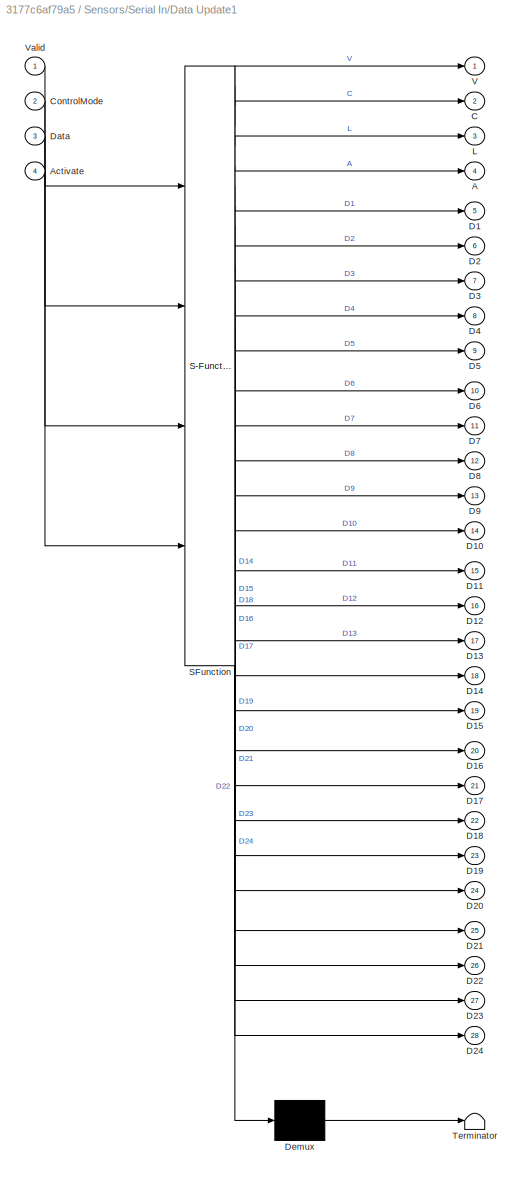
BLOCK [SubSystem] Sensors/Serial In/Data Update1
  Commented = on
  ErrorFcn = Stateflow.Translate.translate
  PermitHierarchicalResolution = ExplicitOnly
  Ports = [4, 28]
  RequestExecContextInheritance = off
  SFBlockType = MATLAB Function
  TreatAsAtomicUnit = on
BLOCK [Demux] Sensors/Serial In/Data Update1/ Demux 
  Outputs = 1
  Ports = [1, 1]
BLOCK [S-Function] Sensors/Serial In/Data Update1/ SFunction 
  EnableBusSupport = on
  FunctionName = sf_sfun
  PortCounts = [4 29]
  Ports = [4, 29]
  Tag = Stateflow S-Function RobotX_ss_acoustics_1020 19
BLOCK [Terminator] Sensors/Serial In/Data Update1/ Terminator 
BLOCK [Outport] Sensors/Serial In/Data Update1/A
  IconDisplay = Port number
  Port = 4
BLOCK [Inport] Sensors/Serial In/Data Update1/Activate
  IconDisplay = Port number
  Port = 4
BLOCK [Outport] Sensors/Serial In/Data Update1/C
  IconDisplay = Port number
  Port = 2
BLOCK [Inport] Sensors/Serial In/Data Update1/ControlMode
  IconDisplay = Port number
  Port = 2
BLOCK [Outport] Sensors/Serial In/Data Update1/D1
  IconDisplay = Port number
  Port = 5
BLOCK [Outport] Sensors/Serial In/Data Update1/D10
  IconDisplay = Port number
  Port = 14
BLOCK [Outport] Sensors/Serial In/Data Update1/D11
  IconDisplay = Port number
  Port = 15
BLOCK [Outport] Sensors/Serial In/Data Update1/D12
  IconDisplay = Port number
  Port = 16
BLOCK [Outport] Sensors/Serial In/Data Update1/D13
  IconDisplay = Port number
  Port = 17
BLOCK [Outport] Sensors/Serial In/Data Update1/D14
  IconDisplay = Port number
  Port = 18
BLOCK [Outport] Sensors/Serial In/Data Update1/D15
  IconDisplay = Port number
  Port = 19
BLOCK [Outport] Sensors/Serial In/Data Update1/D16
  IconDisplay = Port number
  Port = 20
BLOCK [Outport] Sensors/Serial In/Data Update1/D17
  IconDisplay = Port number
  Port = 21
BLOCK [Outport] Sensors/Serial In/Data Update1/D18
  IconDisplay = Port number
  Port = 22
BLOCK [Outport] Sensors/Serial In/Data Update1/D19
  IconDisplay = Port number
  Port = 23
BLOCK [Outport] Sensors/Serial In/Data Update1/D2
  IconDisplay = Port number
  Port = 6
BLOCK [Outport] Sensors/Serial In/Data Update1/D20
  IconDisplay = Port number
  Port = 24
BLOCK [Outport] Sensors/Serial In/Data Update1/D21
  IconDisplay = Port number
  Port = 25
BLOCK [Outport] Sensors/Serial In/Data Update1/D22
  IconDisplay = Port number
  Port = 26
BLOCK [Outport] Sensors/Serial In/Data Update1/D23
  IconDisplay = Port number
  Port = 27
BLOCK [Outport] Sensors/Serial In/Data Update1/D24
  IconDisplay = Port number
  Port = 28
BLOCK [Outport] Sensors/Serial In/Data Update1/D3
  IconDisplay = Port number
  Port = 7
BLOCK [Outport] Sensors/Serial In/Data Update1/D4
  IconDisplay = Port number
  Port = 8
BLOCK [Outport] Sensors/Serial In/Data Update1/D5
  IconDisplay = Port number
  Port = 9
BLOCK [Outport] Sensors/Serial In/Data Update1/D6
  IconDisplay = Port number
  Port = 10
BLOCK [Outport] Sensors/Serial In/Data Update1/D7
  IconDisplay = Port number
  Port = 11
BLOCK [Outport] Sensors/Serial In/Data Update1/D8
  IconDisplay = Port number
  Port = 12
BLOCK [Outport] Sensors/Serial In/Data Update1/D9
  IconDisplay = Port number
  Port = 13
BLOCK [Inport] Sensors/Serial In/Data Update1/Data
  IconDisplay = Port number
  Port = 3
BLOCK [Outport] Sensors/Serial In/Data Update1/L
  IconDisplay = Port number
  Port = 3
BLOCK [Outport] Sensors/Serial In/Data Update1/V
  IconDisplay = Port number
BLOCK [Inport] Sensors/Serial In/Data Update1/Valid
  IconDisplay = Port number
BLOCK [SubSystem] Sensors/Serial In/Data Update2
  ErrorFcn = Stateflow.Translate.translate
  PermitHierarchicalResolution = ExplicitOnly
  Ports = [4, 28]
  RequestExecContextInheritance = off
  SFBlockType = MATLAB Function
  TreatAsAtomicUnit = on
BLOCK [Demux] Sensors/Serial In/Data Update2/ Demux 
  Outputs = 1
  Ports = [1, 1]
BLOCK [S-Function] Sensors/Serial In/Data Update2/ SFunction 
  EnableBusSupport = on
  FunctionName = sf_sfun
  PortCounts = [4 29]
  Ports = [4, 29]
  Tag = Stateflow S-Function RobotX_ss_acoustics_1020 3
BLOCK [Terminator] Sensors/Serial In/Data Update2/ Terminator 
BLOCK [Outport] Sensors/Serial In/Data Update2/A
  IconDisplay = Port number
  Port = 4
BLOCK [Inport] Sensors/Serial In/Data Update2/Activate
  IconDisplay = Port number
  Port = 4
BLOCK [Outport] Sensors/Serial In/Data Update2/C
  IconDisplay = Port number
  Port = 2
BLOCK [Inport] Sensors/Serial In/Data Update2/ControlMode
  IconDisplay = Port number
  Port = 2
BLOCK [Outport] Sensors/Serial In/Data Update2/D1
  IconDisplay = Port number
  Port = 5
BLOCK [Outport] Sensors/Serial In/Data Update2/D10
  IconDisplay = Port number
  Port = 14
BLOCK [Outport] Sensors/Serial In/Data Update2/D11
  IconDisplay = Port number
  Port = 15
BLOCK [Outport] Sensors/Serial In/Data Update2/D12
  IconDisplay = Port number
  Port = 16
BLOCK [Outport] Sensors/Serial In/Data Update2/D13
  IconDisplay = Port number
  Port = 17
BLOCK [Outport] Sensors/Serial In/Data Update2/D14
  IconDisplay = Port number
  Port = 18
BLOCK [Outport] Sensors/Serial In/Data Update2/D15
  IconDisplay = Port number
  Port = 19
BLOCK [Outport] Sensors/Serial In/Data Update2/D16
  IconDisplay = Port number
  Port = 20
BLOCK [Outport] Sensors/Serial In/Data Update2/D17
  IconDisplay = Port number
  Port = 21
BLOCK [Outport] Sensors/Serial In/Data Update2/D18
  IconDisplay = Port number
  Port = 22
BLOCK [Outport] Sensors/Serial In/Data Update2/D19
  IconDisplay = Port number
  Port = 23
BLOCK [Outport] Sensors/Serial In/Data Update2/D2
  IconDisplay = Port number
  Port = 6
BLOCK [Outport] Sensors/Serial In/Data Update2/D20
  IconDisplay = Port number
  Port = 24
BLOCK [Outport] Sensors/Serial In/Data Update2/D21
  IconDisplay = Port number
  Port = 25
BLOCK [Outport] Sensors/Serial In/Data Update2/D22
  IconDisplay = Port number
  Port = 26
BLOCK [Outport] Sensors/Serial In/Data Update2/D23
  IconDisplay = Port number
  Port = 27
BLOCK [Outport] Sensors/Serial In/Data Update2/D24
  IconDisplay = Port number
  Port = 28
BLOCK [Outport] Sensors/Serial In/Data Update2/D3
  IconDisplay = Port number
  Port = 7
BLOCK [Outport] Sensors/Serial In/Data Update2/D4
  IconDisplay = Port number
  Port = 8
BLOCK [Outport] Sensors/Serial In/Data Update2/D5
  IconDisplay = Port number
  Port = 9
BLOCK [Outport] Sensors/Serial In/Data Update2/D6
  IconDisplay = Port number
  Port = 10
BLOCK [Outport] Sensors/Serial In/Data Update2/D7
  IconDisplay = Port number
  Port = 11
BLOCK [Outport] Sensors/Serial In/Data Update2/D8
  IconDisplay = Port number
  Port = 12
BLOCK [Outport] Sensors/Serial In/Data Update2/D9
  IconDisplay = Port number
  Port = 13
BLOCK [Inport] Sensors/Serial In/Data Update2/Data
  IconDisplay = Port number
  Port = 3
BLOCK [Outport] Sensors/Serial In/Data Update2/L
  IconDisplay = Port number
  Port = 3
BLOCK [Outport] Sensors/Serial In/Data Update2/V
  IconDisplay = Port number
BLOCK [Inport] Sensors/Serial In/Data Update2/Valid
  IconDisplay = Port number
BLOCK [DiscreteIntegrator] Sensors/Serial In/Discrete-Time Integrator
  ICPrevOutput = DiscIntNeverNeededParam
  ICPrevScaledInput = DiscIntNeverNeededParam
  Ports = [1, 1]
  SampleTime = -1
BLOCK [Reference] Sensors/Serial In/FIFO ASCII read 1  REF=xpcseriallib/FIFO ASCII read 
  Ports = [1, 1]
  SourceBlock = xpcseriallib/FIFO ASCII read
  SourceType = Asynchronous FIFO Block: reader
  enable = off
  header = {'Deploy:'}
  hold = Zero output if no new data
  maxsize = 1024
  outputtype = 8 bit uint null terminated
  sampletime = -1
  term = [13 10]
BLOCK [Reference] Sensors/Serial In/FIFO ASCII read 2  REF=xpcseriallib/FIFO ASCII read 
  Ports = [1, 1]
  SourceBlock = xpcseriallib/FIFO ASCII read
  SourceType = Asynchronous FIFO Block: reader
  enable = off
  header = {'Deploy:'}
  hold = Zero output if no new data
  maxsize = 1024
  outputtype = 8 bit uint null terminated
  sampletime = -1
  term = [13 10]
BLOCK [Reference] Sensors/Serial In/FIFO ASCII read 3  REF=xpcseriallib/FIFO ASCII read 
  Ports = [1, 1]
  SourceBlock = xpcseriallib/FIFO ASCII read
  SourceType = Asynchronous FIFO Block: reader
  enable = off
  header = {'Deploy:'}
  hold = Zero output if no new data
  maxsize = 1024
  outputtype = 8 bit uint null terminated
  sampletime = -1
  term = [13 10]
BLOCK [Reference] Sensors/Serial In/FIFO ASCII read 4  REF=xpcseriallib/FIFO ASCII read 
  Ports = [1, 1]
  SourceBlock = xpcseriallib/FIFO ASCII read
  SourceType = Asynchronous FIFO Block: reader
  enable = off
  header = {'Deploy:'}
  hold = Zero output if no new data
  maxsize = 1024
  outputtype = 8 bit uint null terminated
  sampletime = -1
  term = [13 10]
BLOCK [Reference] Sensors/Serial In/FIFO ASCII read 5  REF=xpcseriallib/FIFO ASCII read 
  Ports = [1, 1]
  SourceBlock = xpcseriallib/FIFO ASCII read
  SourceType = Asynchronous FIFO Block: reader
  enable = off
  header = {'Deploy:'}
  hold = Zero output if no new data
  maxsize = 1024
  outputtype = 8 bit uint null terminated
  sampletime = -1
  term = [13 10]
BLOCK [Reference] Sensors/Serial In/FIFO ASCII read 6  REF=xpcseriallib/FIFO ASCII read 
  Ports = [1, 1]
  SourceBlock = xpcseriallib/FIFO ASCII read
  SourceType = Asynchronous FIFO Block: reader
  enable = off
  header = {'Deploy:'}
  hold = Zero output if no new data
  maxsize = 1024
  outputtype = 8 bit uint null terminated
  sampletime = -1
  term = [13 10]
BLOCK [Reference] Sensors/Serial In/FIFO ASCII read 7  REF=xpcseriallib/FIFO ASCII read 
  Ports = [1, 1]
  SourceBlock = xpcseriallib/FIFO ASCII read
  SourceType = Asynchronous FIFO Block: reader
  enable = off
  header = {'Deploy:'}
  hold = Zero output if no new data
  maxsize = 1024
  outputtype = 8 bit uint null terminated
  sampletime = -1
  term = [13 10]
BLOCK [Reference] Sensors/Serial In/FIFO ASCII read 8  REF=xpcseriallib/FIFO ASCII read 
  Ports = [1, 1]
  SourceBlock = xpcseriallib/FIFO ASCII read
  SourceType = Asynchronous FIFO Block: reader
  enable = off
  header = {'Deploy:'}
  hold = Zero output if no new data
  maxsize = 1024
  outputtype = 8 bit uint null terminated
  sampletime = -1
  term = [13 10]
BLOCK [SubSystem] Sensors/Serial In/Fake LCM
  Commented = on
  Ports = [0, 1]
  RequestExecContextInheritance = off
BLOCK [BusCreator] Sensors/Serial In/Fake LCM/Bus Creator1
  DisplayOption = bar
  Inputs = 3
  Ports = [3, 1]
BLOCK [BusCreator] Sensors/Serial In/Fake LCM/Bus Creator2
  DisplayOption = bar
  Inputs = 2
  Ports = [2, 1]
BLOCK [BusCreator] Sensors/Serial In/Fake LCM/Bus Creator3
  DisplayOption = bar
  Inputs = 3
  Ports = [3, 1]
BLOCK [BusCreator] Sensors/Serial In/Fake LCM/Bus Creator4
  DisplayOption = bar
  Inputs = 8
  Ports = [8, 1]
BLOCK [BusCreator] Sensors/Serial In/Fake LCM/Bus Creator5
  DisplayOption = bar
  Inputs = 2
  Ports = [2, 1]
BLOCK [BusCreator] Sensors/Serial In/Fake LCM/Bus Creator6
  DisplayOption = bar
  Inputs = 2
  Ports = [2, 1]
BLOCK [Constant] Sensors/Serial In/Fake LCM/Constant
  Value = 0
BLOCK [Constant] Sensors/Serial In/Fake LCM/Constant1
  Value = 0
BLOCK [Constant] Sensors/Serial In/Fake LCM/Constant10
  Value = 0
BLOCK [Constant] Sensors/Serial In/Fake LCM/Constant11
  Value = 0
BLOCK [Constant] Sensors/Serial In/Fake LCM/Constant12
  Value = 0
BLOCK [Constant] Sensors/Serial In/Fake LCM/Constant13
  Value = 0
BLOCK [Constant] Sensors/Serial In/Fake LCM/Constant14
  Value = 3
BLOCK [Constant] Sensors/Serial In/Fake LCM/Constant2
  Value = 0
BLOCK [Constant] Sensors/Serial In/Fake LCM/Constant3
  Value = 0
BLOCK [Constant] Sensors/Serial In/Fake LCM/Constant4
  Value = 0
BLOCK [Constant] Sensors/Serial In/Fake LCM/Constant5
  Value = 0
BLOCK [Constant] Sensors/Serial In/Fake LCM/Constant6
  Value = 0
BLOCK [Constant] Sensors/Serial In/Fake LCM/Constant7
  Value = 0
BLOCK [Constant] Sensors/Serial In/Fake LCM/Constant8
  Value = 0
BLOCK [Constant] Sensors/Serial In/Fake LCM/Constant9
  Value = 0
BLOCK [DataTypeConversion] Sensors/Serial In/Fake LCM/Data Type Conversion
  OutDataTypeStr = double
  RndMeth = Floor
  SaturateOnIntegerOverflow = off
BLOCK [Outport] Sensors/Serial In/Fake LCM/LCM Output
  IconDisplay = Port number
BLOCK [Ground] Sensors/Serial In/Ground1
BLOCK [Ground] Sensors/Serial In/Ground4
BLOCK [Reference] Sensors/Serial In/LCM Complete Encode  REF=xpcseriallib/ASCII Encode 
  Commented = on
  Ports = [28, 1]
  SourceBlock = xpcseriallib/ASCII Encode
  SourceType = ASCII Encode
  format = {"Valid":%d, "Mode":%d, "Length":%d, "Activate":%d, "Waypoints":[%f, %f, %f, %f, %f, %f, %f, %f, %f, %f, %f, %f, %f, %f, %f, %f, %f, %f, %f, %f, %f, %f, %f, %f]} \r\n
  maxlength = 1000
  nvars = 28
  vartypes = { 'double' }
BLOCK [SubSystem] Sensors/Serial In/LIDAR Panda
  Commented = on
  Ports = [1, 1]
  RequestExecContextInheritance = off
BLOCK [Reference] Sensors/Serial In/LIDAR Panda/ASCII Decode 2  REF=xpcseriallib/ASCII Decode 
  Ports = [1, 36]
  SourceBlock = xpcseriallib/ASCII Decode
  SourceType = ASCII Decode
  format = A:%d B:%d C:%d E:%d F:%d G:%d H:%d I:%d J:%d K:%d L:%d M:%d N:%d O:%d P:%d Q:%d R:%d S:%d T:%d U:%d V:%d W:%d X:%d C1:%d C2:%d C3:%d C4:%d P1:%f P2:%f P3:%f P4:%f I1:%d I2:%d I3:%d I4:%d \r\n
  nvars = 36
  vartypes = {}
BLOCK [BusCreator] Sensors/Serial In/LIDAR Panda/Bus Creator1
  DisplayOption = bar
  Inputs = 2
  Ports = [2, 1]
BLOCK [BusCreator] Sensors/Serial In/LIDAR Panda/Bus Creator2
  DisplayOption = bar
  Inputs = 3
  Ports = [3, 1]
BLOCK [BusCreator] Sensors/Serial In/LIDAR Panda/Bus Creator3
  DisplayOption = bar
  Inputs = 2
  Ports = [2, 1]
BLOCK [DataTypeConversion] Sensors/Serial In/LIDAR Panda/Data Type Conversion
  OutDataTypeStr = double
  RndMeth = Floor
  SaturateOnIntegerOverflow = off
BLOCK [DataTypeConversion] Sensors/Serial In/LIDAR Panda/Data Type Conversion1
  OutDataTypeStr = double
  RndMeth = Floor
  SaturateOnIntegerOverflow = off
BLOCK [DataTypeConversion] Sensors/Serial In/LIDAR Panda/Data Type Conversion2
  OutDataTypeStr = double
  RndMeth = Floor
  SaturateOnIntegerOverflow = off
BLOCK [DataTypeConversion] Sensors/Serial In/LIDAR Panda/Data Type Conversion3
  OutDataTypeStr = double
  RndMeth = Floor
  SaturateOnIntegerOverflow = off
BLOCK [Reference] Sensors/Serial In/LIDAR Panda/FIFO ASCII read   REF=xpcseriallib/FIFO ASCII read 
  Ports = [1, 1]
  SourceBlock = xpcseriallib/FIFO ASCII read
  SourceType = Asynchronous FIFO Block: reader
  enable = off
  header = {'A:'}
  hold = Zero output if no new data
  maxsize = 1024
  outputtype = 8 bit uint null terminated
  sampletime = -1
  term = [13 10]
BLOCK [Inport] Sensors/Serial In/LIDAR Panda/LIDAR Panda In
  IconDisplay = Port number
BLOCK [Outport] Sensors/Serial In/LIDAR Panda/LIDAR Panda Out
  IconDisplay = Port number
BLOCK [Mux] Sensors/Serial In/LIDAR Panda/Mux
  DisplayOption = bar
  Inputs = 12
  Ports = [12, 1]
BLOCK [Mux] Sensors/Serial In/LIDAR Panda/Mux1
  DisplayOption = bar
  Ports = [4, 1]
BLOCK [Mux] Sensors/Serial In/LIDAR Panda/Mux2
  DisplayOption = bar
  Inputs = 12
  Ports = [12, 1]
BLOCK [Mux] Sensors/Serial In/LIDAR Panda/Mux3
  DisplayOption = bar
  Ports = [4, 1]
BLOCK [Mux] Sensors/Serial In/LIDAR Panda/Mux4
  DisplayOption = bar
  Ports = [4, 1]
BLOCK [SubSystem] Sensors/Serial In/MATLAB Function1
  Commented = on
  ErrorFcn = Stateflow.Translate.translate
  PermitHierarchicalResolution = ExplicitOnly
  Ports = [6, 1]
  RequestExecContextInheritance = off
  SFBlockType = MATLAB Function
  TreatAsAtomicUnit = on
BLOCK [Demux] Sensors/Serial In/MATLAB Function1/ Demux 
  Outputs = 1
  Ports = [1, 1]
BLOCK [S-Function] Sensors/Serial In/MATLAB Function1/ SFunction 
  EnableBusSupport = on
  FunctionName = sf_sfun
  PortCounts = [6 2]
  Ports = [6, 2]
  Tag = Stateflow S-Function RobotX_ss_acoustics_1020 5
BLOCK [Terminator] Sensors/Serial In/MATLAB Function1/ Terminator 
BLOCK [Inport] Sensors/Serial In/MATLAB Function1/Color
  IconDisplay = Port number
  Port = 5
BLOCK [Inport] Sensors/Serial In/MATLAB Function1/Depth
  IconDisplay = Port number
  Port = 6
BLOCK [Inport] Sensors/Serial In/MATLAB Function1/Lat
  IconDisplay = Port number
  Port = 3
BLOCK [Inport] Sensors/Serial In/MATLAB Function1/Long
  IconDisplay = Port number
  Port = 4
BLOCK [Inport] Sensors/Serial In/MATLAB Function1/Time
  IconDisplay = Port number
  Port = 2
BLOCK [Inport] Sensors/Serial In/MATLAB Function1/Valid
  IconDisplay = Port number
BLOCK [Outport] Sensors/Serial In/MATLAB Function1/asciiSEA
  IconDisplay = Port number
BLOCK [SubSystem] Sensors/Serial In/MATLAB Function2
  Commented = on
  ErrorFcn = Stateflow.Translate.translate
  PermitHierarchicalResolution = ExplicitOnly
  Ports = [2, 1]
  RequestExecContextInheritance = off
  SFBlockType = MATLAB Function
  TreatAsAtomicUnit = on
BLOCK [Demux] Sensors/Serial In/MATLAB Function2/ Demux 
  Outputs = 1
  Ports = [1, 1]
BLOCK [S-Function] Sensors/Serial In/MATLAB Function2/ SFunction 
  EnableBusSupport = on
  FunctionName = sf_sfun
  PortCounts = [2 2]
  Ports = [2, 2]
  Tag = Stateflow S-Function RobotX_ss_acoustics_1020 6
BLOCK [Terminator] Sensors/Serial In/MATLAB Function2/ Terminator 
BLOCK [Inport] Sensors/Serial In/MATLAB Function2/Sequence
  IconDisplay = Port number
  Port = 2
BLOCK [Inport] Sensors/Serial In/MATLAB Function2/Time
  IconDisplay = Port number
BLOCK [Outport] Sensors/Serial In/MATLAB Function2/asciiLIT
  IconDisplay = Port number
BLOCK [SubSystem] Sensors/Serial In/MATLAB Function3
  ErrorFcn = Stateflow.Translate.translate
  PermitHierarchicalResolution = ExplicitOnly
  Ports = [5, 1]
  RequestExecContextInheritance = off
  SFBlockType = MATLAB Function
  TreatAsAtomicUnit = on
BLOCK [Demux] Sensors/Serial In/MATLAB Function3/ Demux 
  Outputs = 1
  Ports = [1, 1]
BLOCK [S-Function] Sensors/Serial In/MATLAB Function3/ SFunction 
  EnableBusSupport = on
  FunctionName = sf_sfun
  PortCounts = [5 2]
  Ports = [5, 2]
  Tag = Stateflow S-Function RobotX_ss_acoustics_1020 18
BLOCK [Terminator] Sensors/Serial In/MATLAB Function3/ Terminator 
BLOCK [Inport] Sensors/Serial In/MATLAB Function3/Lat
  IconDisplay = Port number
  Port = 2
BLOCK [Inport] Sensors/Serial In/MATLAB Function3/Long
  IconDisplay = Port number
  Port = 3
BLOCK [Inport] Sensors/Serial In/MATLAB Function3/Mode
  IconDisplay = Port number
  Port = 4
BLOCK [Inport] Sensors/Serial In/MATLAB Function3/Task
  IconDisplay = Port number
  Port = 5
BLOCK [Inport] Sensors/Serial In/MATLAB Function3/Time
  IconDisplay = Port number
BLOCK [Outport] Sensors/Serial In/MATLAB Function3/asciiHRT
  IconDisplay = Port number
BLOCK [RateTransition] Sensors/Serial In/Rate Transition
  Deterministic = off
  OutPortSampleTime = 1
BLOCK [Outport] Sensors/Serial In/Serial In
  IconDisplay = Port number
BLOCK [Inport] Sensors/Serial In/Serial Out
  IconDisplay = Port number
BLOCK [SubSystem] Sensors/Serial In/Subsystem
  Ports = [0, 1]
  RequestExecContextInheritance = off
BLOCK [BusCreator] Sensors/Serial In/Subsystem/Bus Creator
  DisplayOption = bar
  Inputs = 3
  Ports = [3, 1]
BLOCK [BusCreator] Sensors/Serial In/Subsystem/Bus Creator1
  DisplayOption = bar
  Inputs = 2
  Ports = [2, 1]
BLOCK [BusCreator] Sensors/Serial In/Subsystem/Bus Creator2
  DisplayOption = bar
  Inputs = 2
  Ports = [2, 1]
BLOCK [Constant] Sensors/Serial In/Subsystem/Constant
  Value = zeros(12,1)
BLOCK [Constant] Sensors/Serial In/Subsystem/Constant1
  Value = zeros(12,1)
BLOCK [Constant] Sensors/Serial In/Subsystem/Constant2
  Value = zeros(4,1)
BLOCK [Constant] Sensors/Serial In/Subsystem/Constant3
  Value = zeros(4,1)
BLOCK [Constant] Sensors/Serial In/Subsystem/Constant4
  Value = zeros(4,1)
BLOCK [Outport] Sensors/Serial In/Subsystem/Fake Panda
  IconDisplay = Port number
BLOCK [Sum] Sensors/Serial In/Sum
  IconShape = round
  InputSameDT = off
  Inputs = |++
  OutDataTypeStr = Inherit: Inherit via internal rule
  Ports = [2, 1]
  SaturateOnIntegerOverflow = off
BLOCK [Reference] Sensors/Serial In/TPMC465  REF=speedgoatlib/IO504/TPMC465  (lib defined in mdl_2b10c7445f81, mdl_649b3eec89a6, +4 more)
  Ports = [8, 8]
  SourceBlock = speedgoatlib/IO504/TPMC465
  SourceType = sendreceive_IO504
  baud1 = 115200
  baud2 = 115200
  baud3 = 115200
  baud4 = 115200
  baud5 = 115200
  baud6 = 115200
  baud7 = 115200
  baud8 = 115200
  bauddivisor1 = 1
  bauddivisor2 = 1
  bauddivisor3 = 1
  bauddivisor4 = 1
  bauddivisor5 = 1
  bauddivisor6 = 1
  bauddivisor7 = 1
  bauddivisor8 = 1
  group = Basic Setup
  hwmode1 = none
  hwmode2 = none
  hwmode3 = none
  hwmode4 = none
  hwmode5 = none
  hwmode6 = none
  hwmode7 = none
  hwmode8 = none
  irqnum = 9
  ndata1 = 7
  ndata2 = 7
  ndata3 = 7
  ndata4 = 8
  ndata5 = 8
  ndata6 = 8
  ndata7 = 8
  ndata8 = 8
  nstop1 = 1
  nstop2 = 1
  nstop3 = 1
  nstop4 = 1
  nstop5 = 1
  nstop6 = 1
  nstop7 = 1
  nstop8 = 1
  parity1 = Even
  parity2 = Even
  parity3 = Even
  parity4 = None
  parity5 = None
  parity6 = None
  parity7 = None
  parity8 = None
  port = 2
  prescale1 = off
  prescale2 = off
  prescale3 = off
  prescale4 = off
  prescale5 = off
  prescale6 = off
  prescale7 = off
  prescale8 = off
  rcvfifosize1 = 1024
  rcvfifosize2 = 1024
  rcvfifosize3 = 1024
  rcvfifosize4 = 1024
  rcvfifosize5 = 1024
  rcvfifosize6 = 1024
  rcvfifosize7 = 1024
  rcvfifosize8 = 1024
  rlevel1 = half full (32)
  rlevel2 = half full (32)
  rlevel3 = half full (32)
  rlevel4 = half full (32)
  rlevel5 = 1
  rlevel6 = 1
  rlevel7 = 1
  rlevel8 = 1
  rs485auto1 = off
  rs485auto2 = off
  rs485auto3 = off
  rs485auto4 = off
  rs485auto5 = off
  rs485auto6 = off
  rs485auto7 = off
  rs485auto8 = off
  rs485delay1 = 0
  rs485delay2 = 0
  rs485delay3 = 0
  rs485delay4 = 0
  rs485delay5 = 0
  rs485delay6 = 0
  rs485delay7 = 0
  rs485delay8 = 0
  sampling1 = 16x (standard)
  sampling2 = 16x (standard)
  sampling3 = 16x (standard)
  sampling4 = 16x (standard)
  sampling5 = 16x (standard)
  sampling6 = 16x (standard)
  sampling7 = 16x (standard)
  sampling8 = 16x (standard)
  slot = -1
  standard1 = on
  standard2 = on
  standard3 = on
  standard4 = on
  standard5 = on
  standard6 = on
  standard7 = on
  standard8 = on
  swmode1 = none
  swmode2 = none
  swmode3 = none
  swmode4 = none
  swmode5 = none
  swmode6 = none
  swmode7 = none
  swmode8 = none
  transceiver1 = RS232 (max 921.6kb/s)
  transceiver2 = RS232 (max 921.6kb/s)
  transceiver3 = RS232 (max 921.6kb/s)
  transceiver4 = RS232 (max 921.6kb/s)
  transceiver5 = RS232 (max 921.6kb/s)
  transceiver6 = RS232 (max 921.6kb/s)
  transceiver7 = RS232 (max 921.6kb/s)
  transceiver8 = RS232 (max 921.6kb/s)
  xmtdatatype1 = 8 bit uint null terminated
  xmtdatatype2 = 8 bit uint null terminated
  xmtdatatype3 = 8 bit uint null terminated
  xmtdatatype4 = 8 bit uint null terminated
  xmtdatatype5 = 8 bit uint null terminated
  xmtdatatype6 = 8 bit uint null terminated
  xmtdatatype7 = 8 bit uint null terminated
  xmtdatatype8 = 8 bit uint null terminated
  xmtfifosize1 = 1024
  xmtfifosize2 = 1024
  xmtfifosize3 = 1024
  xmtfifosize4 = 1024
  xmtfifosize5 = 1024
  xmtfifosize6 = 1024
  xmtfifosize7 = 1024
  xmtfifosize8 = 1024
  xoffchar1 = 19
  xoffchar2 = 19
  xoffchar3 = 19
  xoffchar4 = 19
  xoffchar5 = 19
  xoffchar6 = 19
  xoffchar7 = 19
  xoffchar8 = 19
  xonchar1 = 17
  xonchar2 = 17
  xonchar3 = 17
  xonchar4 = 17
  xonchar5 = 17
  xonchar6 = 17
  xonchar7 = 17
  xonchar8 = 17
BLOCK [Terminator] Sensors/Serial In/Terminator10
BLOCK [Terminator] Sensors/Serial In/Terminator2
BLOCK [Terminator] Sensors/Serial In/Terminator3
BLOCK [Terminator] Sensors/Serial In/Terminator4
BLOCK [Terminator] Sensors/Serial In/Terminator5
BLOCK [Terminator] Sensors/Serial In/Terminator6
BLOCK [Terminator] Sensors/Serial In/Terminator7
BLOCK [Terminator] Sensors/Serial In/Terminator8
BLOCK [Terminator] Sensors/Serial In/Terminator9
BLOCK [SubSystem] Sensors/Serial In/data log
  Ports = [1]
  RequestExecContextInheritance = off
BLOCK [BusSelector] Sensors/Serial In/data log/Bus Selector3
  OutputSignals = Navigation Message,Lidar Data Input,Acoustic Message
  Ports = [1, 3]
BLOCK [BusToVector] Sensors/Serial In/data log/Bus to Vector
BLOCK [BusToVector] Sensors/Serial In/data log/Bus to Vector1
BLOCK [BusToVector] Sensors/Serial In/data log/Bus to Vector2
BLOCK [Reference] Sensors/Serial In/data log/Scope 1  REF=slrtlib/Displays and
Logging/Scope 
  Ports = [1]
  SourceBlock = slrtlib/Displays and\nLogging/Scope
  SourceType = xpcscopeblock
  autorestart = on
  autostart = on
  dynamicfilemode = on
  filename = LM1_<%%%>.dat
  formatstr = '%15.6f'
  grid = on
  interleave = 1
  maxwritefilesize = 512*1024^2
  mode = Lazy
  noprepostsamples = 0
  nosamples = 28800
  scopeno = 3
  scopetype = File
  triggerlevel = 0.0
  triggermode = FreeRun
  triggersample = 0
  triggerscope = 1
  triggersignal = 1
  triggerslope = Either
  trigsignalfromport = off
  viewmode = Graphical redraw
  writesize = 5120
  ylimits = [0,0]
BLOCK [Reference] Sensors/Serial In/data log/Scope 2  REF=slrtlib/Displays and
Logging/Scope 
  Ports = [1]
  SourceBlock = slrtlib/Displays and\nLogging/Scope
  SourceType = xpcscopeblock
  autorestart = on
  autostart = on
  dynamicfilemode = on
  filename = NAV1_<%%%>.dat
  formatstr = '%15.6f'
  grid = on
  interleave = 1
  maxwritefilesize = 512*1024^2
  mode = Lazy
  noprepostsamples = 0
  nosamples = 28800
  scopeno = 1
  scopetype = File
  triggerlevel = 0.0
  triggermode = FreeRun
  triggersample = 0
  triggerscope = 1
  triggersignal = 1
  triggerslope = Either
  trigsignalfromport = off
  viewmode = Graphical redraw
  writesize = 5120
  ylimits = [0,0]
BLOCK [Reference] Sensors/Serial In/data log/Scope 3  REF=slrtlib/Displays and
Logging/Scope 
  Ports = [1]
  SourceBlock = slrtlib/Displays and\nLogging/Scope
  SourceType = xpcscopeblock
  autorestart = on
  autostart = on
  dynamicfilemode = on
  filename = ACO1_<%%%>.dat
  formatstr = '%15.6f'
  grid = on
  interleave = 1
  maxwritefilesize = 512*1024^2
  mode = Lazy
  noprepostsamples = 0
  nosamples = 28800
  scopeno = 2
  scopetype = File
  triggerlevel = 0.0
  triggermode = FreeRun
  triggersample = 0
  triggerscope = 1
  triggersignal = 1
  triggerslope = Either
  trigsignalfromport = off
  viewmode = Graphical redraw
  writesize = 5120
  ylimits = [0,0]
BLOCK [Inport] Sensors/Serial In/data log/Sensors signal
  IconDisplay = Port number
BLOCK [Inport] Sensors/Serial Out
  IconDisplay = Port number
BLOCK [Reference] Setup  REF=speedgoatlib_IO102/Setup
  Ports = []
  SourceBlock = speedgoatlib_IO102/Setup
  SourceType = setup_IO102
  adChannel = 16
  adChannelMode = Multiple-channel (enter number of channels below)
  adCoupling = Differential
  cal = off
  daChannel = [1,2,3,4]
  daInitValue = [0]
  daReset = [1]
  diChannel = [1,2,3,4,5,6,7,8]
  doChannel = [1,2,3,4,5,6,7,8]
  doInitValue = [0]
  doReset = [1]
  group = Digital output setup
  id = 1
  pciSlot = -1
  range = +-5V
BLOCK [SubSystem] Sinks
  Ports = [1, 1]
  RequestExecContextInheritance = off
BLOCK [Inport] Sinks/Output Signal
  IconDisplay = Port number
BLOCK [Outport] Sinks/Serial Outputs
  IconDisplay = Port number
BLOCK [UnitDelay] Unit Delay
  InputProcessing = Elements as channels (sample based)
  SampleTime = -1
BLOCK [DataStoreMemory] acouGPS
  DataStoreName = acouGPS
  InitialValue = zeros(4,2)
  ReadBeforeWriteMsg = warning
  VectorParams1D = off
  WriteAfterReadMsg = warning
  WriteAfterWriteMsg = warning
BLOCK [DataStoreMemory] acouLocNED
  DataStoreName = acouLocNED
  InitialValue = [45, -180; 60, -160; 75, -175]
  ReadBeforeWriteMsg = warning
  VectorParams1D = off
  WriteAfterReadMsg = warning
  WriteAfterWriteMsg = warning
BLOCK [DataStoreMemory] course
  DataStoreName = Course
  InitialValue = uint8('A')
  ReadBeforeWriteMsg = warning
  VectorParams1D = off
  WriteAfterReadMsg = warning
  WriteAfterWriteMsg = warning
BLOCK [DataStoreMemory] dockGPS
  DataStoreName = dockGPS
  InitialValue = zeros(4,2)
  ReadBeforeWriteMsg = warning
  VectorParams1D = off
  WriteAfterReadMsg = warning
  WriteAfterWriteMsg = warning
BLOCK [DataStoreMemory] finishGPS
  DataStoreName = finishGPS
  InitialValue = zeros(2,2)
  ReadBeforeWriteMsg = warning
  VectorParams1D = off
  WriteAfterReadMsg = warning
  WriteAfterWriteMsg = warning
BLOCK [DataStoreMemory] freq
  DataStoreName = freq
  ReadBeforeWriteMsg = warning
  VectorParams1D = off
  WriteAfterReadMsg = warning
  WriteAfterWriteMsg = warning
BLOCK [DataStoreMemory] ltGPS
  DataStoreName = ltGPS
  InitialValue = zeros(4,2)
  ReadBeforeWriteMsg = warning
  VectorParams1D = off
  WriteAfterReadMsg = warning
  WriteAfterWriteMsg = warning
BLOCK [DataStoreMemory] odoaGPS
  DataStoreName = odoaGPS
  InitialValue = zeros(4,2)
  ReadBeforeWriteMsg = warning
  VectorParams1D = off
  WriteAfterReadMsg = warning
  WriteAfterWriteMsg = warning
BLOCK [DataStoreMemory] offset
  DataStoreName = offset
  ReadBeforeWriteMsg = warning
  VectorParams1D = off
  WriteAfterReadMsg = warning
  WriteAfterWriteMsg = warning
BLOCK [DataStoreMemory] rate
  DataStoreName = rate
  ReadBeforeWriteMsg = warning
  VectorParams1D = off
  WriteAfterReadMsg = warning
  WriteAfterWriteMsg = warning
BLOCK [DataStoreMemory] ssGateGPS
  DataStoreName = ssGateGPS
  InitialValue = zeros(4,2)
  ReadBeforeWriteMsg = warning
  VectorParams1D = off
  WriteAfterReadMsg = warning
  WriteAfterWriteMsg = warning
BLOCK [DataStoreMemory] ssGateOption
  DataStoreName = ssGateOption
  ReadBeforeWriteMsg = warning
  VectorParams1D = off
  WriteAfterReadMsg = warning
  WriteAfterWriteMsg = warning
BLOCK [DataStoreMemory] ssHeldHeding
  DataStoreName = ssHeldHeading
  ReadBeforeWriteMsg = warning
  WriteAfterReadMsg = warning
  WriteAfterWriteMsg = warning
BLOCK [DataStoreMemory] startGPS
  DataStoreName = startGPS
  InitialValue = zeros(1,2)
  ReadBeforeWriteMsg = warning
  VectorParams1D = off
  WriteAfterReadMsg = warning
  WriteAfterWriteMsg = warning
BLOCK [DataStoreMemory] symbol
  DataStoreName = symbol
  ReadBeforeWriteMsg = warning
  VectorParams1D = off
  WriteAfterReadMsg = warning
  WriteAfterWriteMsg = warning
ANNOTATION (root): Block Background Color Code: Black - Global Variables Magenta - Adjustable Parameters or Subsystems containing them Grey -High Importance Variables, should be double checked if changed Yellow - Low level I/O Cyan - FSM subsystem Light Blue - Conditional Selector Block Dark Green - Task Enablers Orange - Output Selectors Green - Signal Bussing Blocks Red - Logic blocks. Determine signals for output...<+28ch>
ANNOTATION GPS Points: X - 1 Y - 2 Z - 3
ANNOTATION GPS Points: triangle -1 circle - 2 cruciform -3
LINE GPS Points/Course A Acoustics:1 -> GPS Points/MATLAB Function:4
LINE GPS Points/Course A Dock:1 -> GPS Points/MATLAB Function:5
LINE GPS Points/Course A Freq:1 -> GPS Points/MATLAB Function:8
LINE GPS Points/Course A LightTower:1 -> GPS Points/MATLAB Function:6
LINE GPS Points/Course A ODOA:1 -> GPS Points/MATLAB Function:7
LINE GPS Points/Course A ODOAentry:1 -> GPS Points/MATLAB Function:12
LINE GPS Points/Course A ODOAexit:1 -> GPS Points/MATLAB Function:13
LINE GPS Points/Course A Offset:1 -> GPS Points/MATLAB Function:10
LINE GPS Points/Course A Rate:1 -> GPS Points/MATLAB Function:9
LINE GPS Points/Course A Start:1 -> GPS Points/MATLAB Function:2
LINE GPS Points/Course A Symbol:1 -> GPS Points/MATLAB Function:11
LINE GPS Points/Course A finishGPS:1 -> GPS Points/MATLAB Function:14
LINE GPS Points/Course A ssGate:1 -> GPS Points/MATLAB Function:3
LINE GPS Points/Course B Acoustics:1 -> GPS Points/MATLAB Function:17
LINE GPS Points/Course B Dock:1 -> GPS Points/MATLAB Function:18
LINE GPS Points/Course B Freq:1 -> GPS Points/MATLAB Function:21
LINE GPS Points/Course B LightTower:1 -> GPS Points/MATLAB Function:19
LINE GPS Points/Course B ODOA:1 -> GPS Points/MATLAB Function:20
LINE GPS Points/Course B ODOAentry:1 -> GPS Points/MATLAB Function:25
LINE GPS Points/Course B ODOAexit:1 -> GPS Points/MATLAB Function:26
LINE GPS Points/Course B Offset:1 -> GPS Points/MATLAB Function:23
LINE GPS Points/Course B Rate:1 -> GPS Points/MATLAB Function:22
LINE GPS Points/Course B Start:1 -> GPS Points/MATLAB Function:15
LINE GPS Points/Course B Symbol:1 -> GPS Points/MATLAB Function:24
LINE GPS Points/Course B finishGPS:1 -> GPS Points/MATLAB Function:27
LINE GPS Points/Course B ssGate:1 -> GPS Points/MATLAB Function:16
LINE GPS Points/Course T Acoustics:1 -> GPS Points/MATLAB Function:30
LINE GPS Points/Course T Dock:1 -> GPS Points/MATLAB Function:31
LINE GPS Points/Course T Freq:1 -> GPS Points/MATLAB Function:34
LINE GPS Points/Course T LightTower:1 -> GPS Points/MATLAB Function:32
LINE GPS Points/Course T ODOA:1 -> GPS Points/MATLAB Function:33
LINE GPS Points/Course T ODOAentry:1 -> GPS Points/MATLAB Function:38
LINE GPS Points/Course T ODOAexit:1 -> GPS Points/MATLAB Function:39
LINE GPS Points/Course T Offset:1 -> GPS Points/MATLAB Function:36
LINE GPS Points/Course T Rate:1 -> GPS Points/MATLAB Function:35
LINE GPS Points/Course T Start:1 -> GPS Points/MATLAB Function:28
LINE GPS Points/Course T Symbol:1 -> GPS Points/MATLAB Function:37
LINE GPS Points/Course T finishGPS:1 -> GPS Points/MATLAB Function:40
LINE GPS Points/Course T ssGate:1 -> GPS Points/MATLAB Function:29
LINE GPS Points/MATLAB Function:1 -> GPS Points/Write:1
LINE GPS Points/MATLAB Function:10 -> GPS Points/Write9:1
LINE GPS Points/MATLAB Function:11 -> GPS Points/Write10:1
LINE GPS Points/MATLAB Function:12 -> GPS Points/Write11:1
LINE GPS Points/MATLAB Function:13 -> GPS Points/Write12:1
LINE GPS Points/MATLAB Function:2 -> GPS Points/Write1:1
LINE GPS Points/MATLAB Function:3 -> GPS Points/Write2:1
LINE GPS Points/MATLAB Function:4 -> GPS Points/Write3:1
LINE GPS Points/MATLAB Function:5 -> GPS Points/Write4:1
LINE GPS Points/MATLAB Function:6 -> GPS Points/Write5:1
LINE GPS Points/MATLAB Function:7 -> GPS Points/Write6:1
LINE GPS Points/MATLAB Function:8 -> GPS Points/Write7:1
LINE GPS Points/MATLAB Function:9 -> GPS Points/Write8:1
LINE GPS Points/Read:1 -> GPS Points/MATLAB Function:1
LINE Main FSM/Acoustic FSM/Acoustics Pt1/Bus Selector:1 -> Main FSM/Acoustic FSM/Acoustics Pt1/Ping Point:1
LINE Main FSM/Acoustic FSM/Acoustics Pt1/Bus Selector:2 -> Main FSM/Acoustic FSM/Acoustics Pt1/Ping Point:2
LINE Main FSM/Acoustic FSM/Acoustics Pt1/Bus Selector:3 -> Main FSM/Acoustic FSM/Acoustics Pt1/Ping Point:3
LINE Main FSM/Acoustic FSM/Acoustics Pt1/Bus Selector:4 -> Main FSM/Acoustic FSM/Acoustics Pt1/Ping Point:4
LINE Main FSM/Acoustic FSM/Acoustics Pt1/Bus Selector:5 -> Main FSM/Acoustic FSM/Acoustics Pt1/Ping Point:5
LINE Main FSM/Acoustic FSM/Acoustics Pt1/Bus Selector:6 -> Main FSM/Acoustic FSM/Acoustics Pt1/Ping Point:6
LINE Main FSM/Acoustic FSM/Acoustics Pt1/Output Heirarchy/Acoustic Active:1 -> Main FSM/Acoustic FSM/Acoustics Pt1/Output Heirarchy/Bus Creator3:2
LINE Main FSM/Acoustic FSM/Acoustics Pt1/Output Heirarchy/Bus Creator2:1 -> Main FSM/Acoustic FSM/Acoustics Pt1/Output Heirarchy/Bus Creator3:1
LINE Main FSM/Acoustic FSM/Acoustics Pt1/Output Heirarchy/Bus Creator3:1 -> Main FSM/Acoustic FSM/Acoustics Pt1/Output Heirarchy/Bus Creator5:1
LINE Main FSM/Acoustic FSM/Acoustics Pt1/Output Heirarchy/Bus Creator5:1 -> Main FSM/Acoustic FSM/Acoustics Pt1/Output Heirarchy/Outputs:1
LINE Main FSM/Acoustic FSM/Acoustics Pt1/Output Heirarchy/Constant3:1 -> Main FSM/Acoustic FSM/Acoustics Pt1/Output Heirarchy/Bus Creator2:2
LINE Main FSM/Acoustic FSM/Acoustics Pt1/Output Heirarchy/Constant:1 -> Main FSM/Acoustic FSM/Acoustics Pt1/Output Heirarchy/Bus Creator2:1
LINE Main FSM/Acoustic FSM/Acoustics Pt1/Output Heirarchy/Data:1 -> Main FSM/Acoustic FSM/Acoustics Pt1/Output Heirarchy/Bus Creator2:3
LINE Main FSM/Acoustic FSM/Acoustics Pt1/Output Heirarchy/Lidar Mode:1 -> Main FSM/Acoustic FSM/Acoustics Pt1/Output Heirarchy/Bus Creator3:3
LINE Main FSM/Acoustic FSM/Acoustics Pt1/Output Heirarchy/Sensors:1 -> Main FSM/Acoustic FSM/Acoustics Pt1/Output Heirarchy/Bus Creator5:2
LINE Main FSM/Acoustic FSM/Acoustics Pt1/Output Heirarchy:1 -> Main FSM/Acoustic FSM/Acoustics Pt1/Outputs:1
LINE Main FSM/Acoustic FSM/Acoustics Pt1/Ping Point:1 -> Main FSM/Acoustic FSM/Acoustics Pt1/Data Store Write:1
LINE Main FSM/Acoustic FSM/Acoustics Pt1/Ping Point:2 -> Main FSM/Acoustic FSM/Acoustics Pt1/Finished:1
LINE Main FSM/Acoustic FSM/Acoustics Pt1/Ping Point:3 -> Main FSM/Acoustic FSM/Acoustics Pt1/Output Heirarchy:1
NET Main FSM/Acoustic FSM/Acoustics Pt1/Sensors:1 -> Main FSM/Acoustic FSM/Acoustics Pt1/Bus Selector:1, Main FSM/Acoustic FSM/Acoustics Pt1/Output Heirarchy:2
LINE Main FSM/Acoustic FSM/Acoustics Pt1:1 -> Main FSM/Acoustic FSM/Multiport Switch:3
LINE Main FSM/Acoustic FSM/Acoustics Pt1:2 -> Main FSM/Acoustic FSM/Bus Creator:2
LINE Main FSM/Acoustic FSM/Acoustics Pt2/Bus Selector:1 -> Main FSM/Acoustic FSM/Acoustics Pt2/Ping Point:1
LINE Main FSM/Acoustic FSM/Acoustics Pt2/Bus Selector:2 -> Main FSM/Acoustic FSM/Acoustics Pt2/Ping Point:2
LINE Main FSM/Acoustic FSM/Acoustics Pt2/Bus Selector:3 -> Main FSM/Acoustic FSM/Acoustics Pt2/Ping Point:3
LINE Main FSM/Acoustic FSM/Acoustics Pt2/Bus Selector:4 -> Main FSM/Acoustic FSM/Acoustics Pt2/Ping Point:4
LINE Main FSM/Acoustic FSM/Acoustics Pt2/Bus Selector:5 -> Main FSM/Acoustic FSM/Acoustics Pt2/Ping Point:5
LINE Main FSM/Acoustic FSM/Acoustics Pt2/Bus Selector:6 -> Main FSM/Acoustic FSM/Acoustics Pt2/Ping Point:6
LINE Main FSM/Acoustic FSM/Acoustics Pt2/Output Heirarchy/Acoustic Active:1 -> Main FSM/Acoustic FSM/Acoustics Pt2/Output Heirarchy/Bus Creator3:2
LINE Main FSM/Acoustic FSM/Acoustics Pt2/Output Heirarchy/Bus Creator2:1 -> Main FSM/Acoustic FSM/Acoustics Pt2/Output Heirarchy/Bus Creator3:1
LINE Main FSM/Acoustic FSM/Acoustics Pt2/Output Heirarchy/Bus Creator3:1 -> Main FSM/Acoustic FSM/Acoustics Pt2/Output Heirarchy/Bus Creator5:1
LINE Main FSM/Acoustic FSM/Acoustics Pt2/Output Heirarchy/Bus Creator5:1 -> Main FSM/Acoustic FSM/Acoustics Pt2/Output Heirarchy/Outputs:1
LINE Main FSM/Acoustic FSM/Acoustics Pt2/Output Heirarchy/Constant3:1 -> Main FSM/Acoustic FSM/Acoustics Pt2/Output Heirarchy/Bus Creator2:2
LINE Main FSM/Acoustic FSM/Acoustics Pt2/Output Heirarchy/Constant:1 -> Main FSM/Acoustic FSM/Acoustics Pt2/Output Heirarchy/Bus Creator2:1
LINE Main FSM/Acoustic FSM/Acoustics Pt2/Output Heirarchy/Data:1 -> Main FSM/Acoustic FSM/Acoustics Pt2/Output Heirarchy/Bus Creator2:3
LINE Main FSM/Acoustic FSM/Acoustics Pt2/Output Heirarchy/Lidar Mode:1 -> Main FSM/Acoustic FSM/Acoustics Pt2/Output Heirarchy/Bus Creator3:3
LINE Main FSM/Acoustic FSM/Acoustics Pt2/Output Heirarchy/Sensors:1 -> Main FSM/Acoustic FSM/Acoustics Pt2/Output Heirarchy/Bus Creator5:2
LINE Main FSM/Acoustic FSM/Acoustics Pt2/Output Heirarchy:1 -> Main FSM/Acoustic FSM/Acoustics Pt2/Outputs:1
LINE Main FSM/Acoustic FSM/Acoustics Pt2/Ping Point:1 -> Main FSM/Acoustic FSM/Acoustics Pt2/Data Store Write:1
LINE Main FSM/Acoustic FSM/Acoustics Pt2/Ping Point:2 -> Main FSM/Acoustic FSM/Acoustics Pt2/Finished:1
LINE Main FSM/Acoustic FSM/Acoustics Pt2/Ping Point:3 -> Main FSM/Acoustic FSM/Acoustics Pt2/Output Heirarchy:1
NET Main FSM/Acoustic FSM/Acoustics Pt2/Sensors:1 -> Main FSM/Acoustic FSM/Acoustics Pt2/Bus Selector:1, Main FSM/Acoustic FSM/Acoustics Pt2/Output Heirarchy:2
LINE Main FSM/Acoustic FSM/Acoustics Pt2:1 -> Main FSM/Acoustic FSM/Multiport Switch:5
LINE Main FSM/Acoustic FSM/Acoustics Pt2:2 -> Main FSM/Acoustic FSM/Bus Creator:4
LINE Main FSM/Acoustic FSM/Acoustics Pt3/Bus Selector:1 -> Main FSM/Acoustic FSM/Acoustics Pt3/Ping Point:1
LINE Main FSM/Acoustic FSM/Acoustics Pt3/Bus Selector:2 -> Main FSM/Acoustic FSM/Acoustics Pt3/Ping Point:2
LINE Main FSM/Acoustic FSM/Acoustics Pt3/Bus Selector:3 -> Main FSM/Acoustic FSM/Acoustics Pt3/Ping Point:3
LINE Main FSM/Acoustic FSM/Acoustics Pt3/Bus Selector:4 -> Main FSM/Acoustic FSM/Acoustics Pt3/Ping Point:4
LINE Main FSM/Acoustic FSM/Acoustics Pt3/Bus Selector:5 -> Main FSM/Acoustic FSM/Acoustics Pt3/Ping Point:5
LINE Main FSM/Acoustic FSM/Acoustics Pt3/Bus Selector:6 -> Main FSM/Acoustic FSM/Acoustics Pt3/Ping Point:6
LINE Main FSM/Acoustic FSM/Acoustics Pt3/Output Heirarchy/Acoustic Active:1 -> Main FSM/Acoustic FSM/Acoustics Pt3/Output Heirarchy/Bus Creator3:2
LINE Main FSM/Acoustic FSM/Acoustics Pt3/Output Heirarchy/Bus Creator2:1 -> Main FSM/Acoustic FSM/Acoustics Pt3/Output Heirarchy/Bus Creator3:1
LINE Main FSM/Acoustic FSM/Acoustics Pt3/Output Heirarchy/Bus Creator3:1 -> Main FSM/Acoustic FSM/Acoustics Pt3/Output Heirarchy/Bus Creator5:1
LINE Main FSM/Acoustic FSM/Acoustics Pt3/Output Heirarchy/Bus Creator5:1 -> Main FSM/Acoustic FSM/Acoustics Pt3/Output Heirarchy/Outputs:1
LINE Main FSM/Acoustic FSM/Acoustics Pt3/Output Heirarchy/Constant3:1 -> Main FSM/Acoustic FSM/Acoustics Pt3/Output Heirarchy/Bus Creator2:2
LINE Main FSM/Acoustic FSM/Acoustics Pt3/Output Heirarchy/Constant:1 -> Main FSM/Acoustic FSM/Acoustics Pt3/Output Heirarchy/Bus Creator2:1
LINE Main FSM/Acoustic FSM/Acoustics Pt3/Output Heirarchy/Data:1 -> Main FSM/Acoustic FSM/Acoustics Pt3/Output Heirarchy/Bus Creator2:3
LINE Main FSM/Acoustic FSM/Acoustics Pt3/Output Heirarchy/Lidar Mode:1 -> Main FSM/Acoustic FSM/Acoustics Pt3/Output Heirarchy/Bus Creator3:3
LINE Main FSM/Acoustic FSM/Acoustics Pt3/Output Heirarchy/Sensors:1 -> Main FSM/Acoustic FSM/Acoustics Pt3/Output Heirarchy/Bus Creator5:2
LINE Main FSM/Acoustic FSM/Acoustics Pt3/Output Heirarchy:1 -> Main FSM/Acoustic FSM/Acoustics Pt3/Outputs:1
LINE Main FSM/Acoustic FSM/Acoustics Pt3/Ping Point:1 -> Main FSM/Acoustic FSM/Acoustics Pt3/Data Store Write:1
LINE Main FSM/Acoustic FSM/Acoustics Pt3/Ping Point:2 -> Main FSM/Acoustic FSM/Acoustics Pt3/Finished:1
LINE Main FSM/Acoustic FSM/Acoustics Pt3/Ping Point:3 -> Main FSM/Acoustic FSM/Acoustics Pt3/Output Heirarchy:1
NET Main FSM/Acoustic FSM/Acoustics Pt3/Sensors:1 -> Main FSM/Acoustic FSM/Acoustics Pt3/Bus Selector:1, Main FSM/Acoustic FSM/Acoustics Pt3/Output Heirarchy:2
LINE Main FSM/Acoustic FSM/Acoustics Pt3:1 -> Main FSM/Acoustic FSM/Multiport Switch:7
LINE Main FSM/Acoustic FSM/Acoustics Pt3:2 -> Main FSM/Acoustic FSM/Bus Creator:6
LINE Main FSM/Acoustic FSM/Bus Creator:1 -> Main FSM/Acoustic FSM/Unit Delay:1
LINE Main FSM/Acoustic FSM/Bus Selector1:1 -> Main FSM/Acoustic FSM/Main Enabler:1
LINE Main FSM/Acoustic FSM/Bus Selector1:2 -> Main FSM/Acoustic FSM/Main Enabler:2
LINE Main FSM/Acoustic FSM/Bus Selector1:3 -> Main FSM/Acoustic FSM/Main Enabler:3
LINE Main FSM/Acoustic FSM/Bus Selector1:4 -> Main FSM/Acoustic FSM/Main Enabler:4
LINE Main FSM/Acoustic FSM/Bus Selector1:5 -> Main FSM/Acoustic FSM/Main Enabler:5
LINE Main FSM/Acoustic FSM/Bus Selector1:6 -> Main FSM/Acoustic FSM/Main Enabler:6
LINE Main FSM/Acoustic FSM/Compare To Constant:1 -> Main FSM/Acoustic FSM/Finished:1
LINE Main FSM/Acoustic FSM/Discrete-Time Integrator:1 -> Main FSM/Acoustic FSM/Compare To Constant:1
LINE Main FSM/Acoustic FSM/Enable:1 -> Main FSM/Acoustic FSM/Discrete-Time Integrator:1
NET Main FSM/Acoustic FSM/Input:1 -> Main FSM/Acoustic FSM/Acoustics Pt1:1, Main FSM/Acoustic FSM/Acoustics Pt2:1, Main FSM/Acoustic FSM/Acoustics Pt3:1, Main FSM/Acoustic FSM/Move 1:1, Main FSM/Acoustic FSM/Move 2:1, Main FSM/Acoustic FSM/Move 3:1, Main FSM/Acoustic FSM/Point:1
LINE Main FSM/Acoustic FSM/Main Enabler:1 -> Main FSM/Acoustic FSM/Multiport Switch:1
LINE Main FSM/Acoustic FSM/Main Enabler:2 -> Main FSM/Acoustic FSM/Move 1:enable
LINE Main FSM/Acoustic FSM/Main Enabler:3 -> Main FSM/Acoustic FSM/Acoustics Pt1:enable
LINE Main FSM/Acoustic FSM/Main Enabler:4 -> Main FSM/Acoustic FSM/Move 2:enable
LINE Main FSM/Acoustic FSM/Main Enabler:5 -> Main FSM/Acoustic FSM/Acoustics Pt2:enable
LINE Main FSM/Acoustic FSM/Main Enabler:6 -> Main FSM/Acoustic FSM/Move 3:enable
LINE Main FSM/Acoustic FSM/Main Enabler:7 -> Main FSM/Acoustic FSM/Acoustics Pt3:enable
LINE Main FSM/Acoustic FSM/Main Enabler:8 -> Main FSM/Acoustic FSM/Point:enable
LINE Main FSM/Acoustic FSM/Move 1/Bus Selector:1 -> Main FSM/Acoustic FSM/Move 1/GPSMove:2
LINE Main FSM/Acoustic FSM/Move 1/Bus Selector:2 -> Main FSM/Acoustic FSM/Move 1/GPSMove:3
LINE Main FSM/Acoustic FSM/Move 1/Bus Selector:3 -> Main FSM/Acoustic FSM/Move 1/GPSMove:4
LINE Main FSM/Acoustic FSM/Move 1/Bus Selector:4 -> Main FSM/Acoustic FSM/Move 1/CalcTimes:2
LINE Main FSM/Acoustic FSM/Move 1/CalcTimes:1 -> Main FSM/Acoustic FSM/Move 1/Output Reassign:2
LINE Main FSM/Acoustic FSM/Move 1/Data Store Read:1 -> Main FSM/Acoustic FSM/Move 1/Submatrix:1
LINE Main FSM/Acoustic FSM/Move 1/GPSMove:1 -> Main FSM/Acoustic FSM/Move 1/Finished:1
LINE Main FSM/Acoustic FSM/Move 1/GPSMove:2 -> Main FSM/Acoustic FSM/Move 1/Output Reassign:1
LINE Main FSM/Acoustic FSM/Move 1/GPSMove:3 -> Main FSM/Acoustic FSM/Move 1/CalcTimes:1
LINE Main FSM/Acoustic FSM/Move 1/Output Reassign/Acoustic Active:1 -> Main FSM/Acoustic FSM/Move 1/Output Reassign/Bus Creator3:2
LINE Main FSM/Acoustic FSM/Move 1/Output Reassign/Bus Creator2:1 -> Main FSM/Acoustic FSM/Move 1/Output Reassign/Bus Creator3:1
LINE Main FSM/Acoustic FSM/Move 1/Output Reassign/Bus Creator3:1 -> Main FSM/Acoustic FSM/Move 1/Output Reassign/Bus Creator5:1
LINE Main FSM/Acoustic FSM/Move 1/Output Reassign/Bus Creator5:1 -> Main FSM/Acoustic FSM/Move 1/Output Reassign/Outputs:1
LINE Main FSM/Acoustic FSM/Move 1/Output Reassign/Constant3:1 -> Main FSM/Acoustic FSM/Move 1/Output Reassign/Bus Creator2:2
LINE Main FSM/Acoustic FSM/Move 1/Output Reassign/Data:1 -> Main FSM/Acoustic FSM/Move 1/Output Reassign/Bus Creator2:3
LINE Main FSM/Acoustic FSM/Move 1/Output Reassign/Lidar Mode:1 -> Main FSM/Acoustic FSM/Move 1/Output Reassign/Bus Creator3:3
LINE Main FSM/Acoustic FSM/Move 1/Output Reassign/Sensors:1 -> Main FSM/Acoustic FSM/Move 1/Output Reassign/Bus Creator5:2
LINE Main FSM/Acoustic FSM/Move 1/Output Reassign/Vaild:1 -> Main FSM/Acoustic FSM/Move 1/Output Reassign/Bus Creator2:1
LINE Main FSM/Acoustic FSM/Move 1/Output Reassign:1 -> Main FSM/Acoustic FSM/Move 1/Outputs:1
NET Main FSM/Acoustic FSM/Move 1/Sensors:1 -> Main FSM/Acoustic FSM/Move 1/Bus Selector:1, Main FSM/Acoustic FSM/Move 1/Output Reassign:3
LINE Main FSM/Acoustic FSM/Move 1/Submatrix:1 -> Main FSM/Acoustic FSM/Move 1/GPSMove:1
LINE Main FSM/Acoustic FSM/Move 1:1 -> Main FSM/Acoustic FSM/Multiport Switch:2
LINE Main FSM/Acoustic FSM/Move 1:2 -> Main FSM/Acoustic FSM/Bus Creator:1
LINE Main FSM/Acoustic FSM/Move 2/Bus Selector:1 -> Main FSM/Acoustic FSM/Move 2/GPSMove:2
LINE Main FSM/Acoustic FSM/Move 2/Bus Selector:2 -> Main FSM/Acoustic FSM/Move 2/GPSMove:3
LINE Main FSM/Acoustic FSM/Move 2/Bus Selector:3 -> Main FSM/Acoustic FSM/Move 2/GPSMove:4
LINE Main FSM/Acoustic FSM/Move 2/Bus Selector:4 -> Main FSM/Acoustic FSM/Move 2/CalcTimes:2
LINE Main FSM/Acoustic FSM/Move 2/CalcTimes:1 -> Main FSM/Acoustic FSM/Move 2/Output Reassign:2
LINE Main FSM/Acoustic FSM/Move 2/Data Store Read:1 -> Main FSM/Acoustic FSM/Move 2/Submatrix:1
LINE Main FSM/Acoustic FSM/Move 2/GPSMove:1 -> Main FSM/Acoustic FSM/Move 2/Finished:1
LINE Main FSM/Acoustic FSM/Move 2/GPSMove:2 -> Main FSM/Acoustic FSM/Move 2/Output Reassign:1
LINE Main FSM/Acoustic FSM/Move 2/GPSMove:3 -> Main FSM/Acoustic FSM/Move 2/CalcTimes:1
LINE Main FSM/Acoustic FSM/Move 2/Output Reassign/Acoustic Active:1 -> Main FSM/Acoustic FSM/Move 2/Output Reassign/Bus Creator3:2
LINE Main FSM/Acoustic FSM/Move 2/Output Reassign/Bus Creator2:1 -> Main FSM/Acoustic FSM/Move 2/Output Reassign/Bus Creator3:1
LINE Main FSM/Acoustic FSM/Move 2/Output Reassign/Bus Creator3:1 -> Main FSM/Acoustic FSM/Move 2/Output Reassign/Bus Creator5:1
LINE Main FSM/Acoustic FSM/Move 2/Output Reassign/Bus Creator5:1 -> Main FSM/Acoustic FSM/Move 2/Output Reassign/Outputs:1
LINE Main FSM/Acoustic FSM/Move 2/Output Reassign/Constant3:1 -> Main FSM/Acoustic FSM/Move 2/Output Reassign/Bus Creator2:2
LINE Main FSM/Acoustic FSM/Move 2/Output Reassign/Data:1 -> Main FSM/Acoustic FSM/Move 2/Output Reassign/Bus Creator2:3
LINE Main FSM/Acoustic FSM/Move 2/Output Reassign/Lidar Mode:1 -> Main FSM/Acoustic FSM/Move 2/Output Reassign/Bus Creator3:3
LINE Main FSM/Acoustic FSM/Move 2/Output Reassign/Sensors:1 -> Main FSM/Acoustic FSM/Move 2/Output Reassign/Bus Creator5:2
LINE Main FSM/Acoustic FSM/Move 2/Output Reassign/Vaild:1 -> Main FSM/Acoustic FSM/Move 2/Output Reassign/Bus Creator2:1
LINE Main FSM/Acoustic FSM/Move 2/Output Reassign:1 -> Main FSM/Acoustic FSM/Move 2/Outputs:1
NET Main FSM/Acoustic FSM/Move 2/Sensors:1 -> Main FSM/Acoustic FSM/Move 2/Bus Selector:1, Main FSM/Acoustic FSM/Move 2/Output Reassign:3
LINE Main FSM/Acoustic FSM/Move 2/Submatrix:1 -> Main FSM/Acoustic FSM/Move 2/GPSMove:1
LINE Main FSM/Acoustic FSM/Move 2:1 -> Main FSM/Acoustic FSM/Multiport Switch:4
LINE Main FSM/Acoustic FSM/Move 2:2 -> Main FSM/Acoustic FSM/Bus Creator:3
LINE Main FSM/Acoustic FSM/Move 3/Bus Selector:1 -> Main FSM/Acoustic FSM/Move 3/GPSMove:2
LINE Main FSM/Acoustic FSM/Move 3/Bus Selector:2 -> Main FSM/Acoustic FSM/Move 3/GPSMove:3
LINE Main FSM/Acoustic FSM/Move 3/Bus Selector:3 -> Main FSM/Acoustic FSM/Move 3/GPSMove:4
LINE Main FSM/Acoustic FSM/Move 3/Bus Selector:4 -> Main FSM/Acoustic FSM/Move 3/CalcTimes:2
LINE Main FSM/Acoustic FSM/Move 3/CalcTimes:1 -> Main FSM/Acoustic FSM/Move 3/Output Reassign:2
LINE Main FSM/Acoustic FSM/Move 3/Data Store Read:1 -> Main FSM/Acoustic FSM/Move 3/Submatrix:1
LINE Main FSM/Acoustic FSM/Move 3/GPSMove:1 -> Main FSM/Acoustic FSM/Move 3/Finished:1
LINE Main FSM/Acoustic FSM/Move 3/GPSMove:2 -> Main FSM/Acoustic FSM/Move 3/Output Reassign:1
LINE Main FSM/Acoustic FSM/Move 3/GPSMove:3 -> Main FSM/Acoustic FSM/Move 3/CalcTimes:1
LINE Main FSM/Acoustic FSM/Move 3/Output Reassign/Acoustic Active:1 -> Main FSM/Acoustic FSM/Move 3/Output Reassign/Bus Creator3:2
LINE Main FSM/Acoustic FSM/Move 3/Output Reassign/Bus Creator2:1 -> Main FSM/Acoustic FSM/Move 3/Output Reassign/Bus Creator3:1
LINE Main FSM/Acoustic FSM/Move 3/Output Reassign/Bus Creator3:1 -> Main FSM/Acoustic FSM/Move 3/Output Reassign/Bus Creator5:1
LINE Main FSM/Acoustic FSM/Move 3/Output Reassign/Bus Creator5:1 -> Main FSM/Acoustic FSM/Move 3/Output Reassign/Outputs:1
LINE Main FSM/Acoustic FSM/Move 3/Output Reassign/Constant3:1 -> Main FSM/Acoustic FSM/Move 3/Output Reassign/Bus Creator2:2
LINE Main FSM/Acoustic FSM/Move 3/Output Reassign/Data:1 -> Main FSM/Acoustic FSM/Move 3/Output Reassign/Bus Creator2:3
LINE Main FSM/Acoustic FSM/Move 3/Output Reassign/Lidar Mode:1 -> Main FSM/Acoustic FSM/Move 3/Output Reassign/Bus Creator3:3
LINE Main FSM/Acoustic FSM/Move 3/Output Reassign/Sensors:1 -> Main FSM/Acoustic FSM/Move 3/Output Reassign/Bus Creator5:2
LINE Main FSM/Acoustic FSM/Move 3/Output Reassign/Vaild:1 -> Main FSM/Acoustic FSM/Move 3/Output Reassign/Bus Creator2:1
LINE Main FSM/Acoustic FSM/Move 3/Output Reassign:1 -> Main FSM/Acoustic FSM/Move 3/Outputs:1
NET Main FSM/Acoustic FSM/Move 3/Sensors:1 -> Main FSM/Acoustic FSM/Move 3/Bus Selector:1, Main FSM/Acoustic FSM/Move 3/Output Reassign:3
LINE Main FSM/Acoustic FSM/Move 3/Submatrix:1 -> Main FSM/Acoustic FSM/Move 3/GPSMove:1
LINE Main FSM/Acoustic FSM/Move 3:1 -> Main FSM/Acoustic FSM/Multiport Switch:6
LINE Main FSM/Acoustic FSM/Move 3:2 -> Main FSM/Acoustic FSM/Bus Creator:5
LINE Main FSM/Acoustic FSM/Multiport Switch:1 -> Main FSM/Acoustic FSM/Output:1
LINE Main FSM/Acoustic FSM/Point/Bus Selector:1 -> Main FSM/Acoustic FSM/Point/Point:4
LINE Main FSM/Acoustic FSM/Point/Bus Selector:2 -> Main FSM/Acoustic FSM/Point/Point:5
LINE Main FSM/Acoustic FSM/Point/Data Store Read1:1 -> Main FSM/Acoustic FSM/Point/Point:2
LINE Main FSM/Acoustic FSM/Point/Data Store Read2:1 -> Main FSM/Acoustic FSM/Point/Point:3
LINE Main FSM/Acoustic FSM/Point/Data Store Read:1 -> Main FSM/Acoustic FSM/Point/Point:1
LINE Main FSM/Acoustic FSM/Point/Output Heirarchy/Acoustic Active:1 -> Main FSM/Acoustic FSM/Point/Output Heirarchy/Bus Creator3:2
LINE Main FSM/Acoustic FSM/Point/Output Heirarchy/Bus Creator2:1 -> Main FSM/Acoustic FSM/Point/Output Heirarchy/Bus Creator3:1
LINE Main FSM/Acoustic FSM/Point/Output Heirarchy/Bus Creator3:1 -> Main FSM/Acoustic FSM/Point/Output Heirarchy/Bus Creator5:1
LINE Main FSM/Acoustic FSM/Point/Output Heirarchy/Bus Creator5:1 -> Main FSM/Acoustic FSM/Point/Output Heirarchy/Outputs:1
LINE Main FSM/Acoustic FSM/Point/Output Heirarchy/Constant3:1 -> Main FSM/Acoustic FSM/Point/Output Heirarchy/Bus Creator2:2
LINE Main FSM/Acoustic FSM/Point/Output Heirarchy/Constant:1 -> Main FSM/Acoustic FSM/Point/Output Heirarchy/Bus Creator2:1
LINE Main FSM/Acoustic FSM/Point/Output Heirarchy/Data:1 -> Main FSM/Acoustic FSM/Point/Output Heirarchy/Bus Creator2:3
LINE Main FSM/Acoustic FSM/Point/Output Heirarchy/Lidar Mode:1 -> Main FSM/Acoustic FSM/Point/Output Heirarchy/Bus Creator3:3
LINE Main FSM/Acoustic FSM/Point/Output Heirarchy/Sensors:1 -> Main FSM/Acoustic FSM/Point/Output Heirarchy/Bus Creator5:2
LINE Main FSM/Acoustic FSM/Point/Output Heirarchy:1 -> Main FSM/Acoustic FSM/Point/Outputs:1
LINE Main FSM/Acoustic FSM/Point/Point:1 -> Main FSM/Acoustic FSM/Point/Output Heirarchy:1
NET Main FSM/Acoustic FSM/Point/Sensors:1 -> Main FSM/Acoustic FSM/Point/Bus Selector:1, Main FSM/Acoustic FSM/Point/Output Heirarchy:2
LINE Main FSM/Acoustic FSM/Point:1 -> Main FSM/Acoustic FSM/Multiport Switch:8
LINE Main FSM/Acoustic FSM/Unit Delay:1 -> Main FSM/Acoustic FSM/Bus Selector1:1
LINE Main FSM/Acoustic FSM:1 -> Main FSM/Multiport Switch:4
LINE Main FSM/Acoustic FSM:2 -> Main FSM/Bus Creator:3
LINE Main FSM/Bus Creator1:1 -> Main FSM/Output:1
LINE Main FSM/Bus Creator:1 -> Main FSM/Unit Delay:1
LINE Main FSM/Bus Selector1:1 -> Main FSM/Bus Creator1:2
LINE Main FSM/Bus Selector1:2 -> Main FSM/Bus Creator1:3
LINE Main FSM/Bus Selector2:1 -> Main FSM/Main Enabler:1
LINE Main FSM/Bus Selector:1 -> Main FSM/Main Enabler:2
LINE Main FSM/Bus Selector:2 -> Main FSM/Main Enabler:3
LINE Main FSM/Bus Selector:3 -> Main FSM/Main Enabler:4
LINE Main FSM/Initialization/Compare To Constant:1 -> Main FSM/Initialization/Data Type Conversion:1
LINE Main FSM/Initialization/Data Type Conversion:1 -> Main FSM/Initialization/Finished:1
LINE Main FSM/Initialization/Discrete-Time Integrator:1 -> Main FSM/Initialization/Compare To Constant:1
LINE Main FSM/Initialization/Enable:1 -> Main FSM/Initialization/Discrete-Time Integrator:1
LINE Main FSM/Initialization/Output Heirarchy/Acoustic Active:1 -> Main FSM/Initialization/Output Heirarchy/Bus Creator2:2
LINE Main FSM/Initialization/Output Heirarchy/Bus Creator1:1 -> Main FSM/Initialization/Output Heirarchy/Bus Creator2:1
LINE Main FSM/Initialization/Output Heirarchy/Bus Creator2:1 -> Main FSM/Initialization/Output Heirarchy/Bus Creator4:1
LINE Main FSM/Initialization/Output Heirarchy/Bus Creator4:1 -> Main FSM/Initialization/Output Heirarchy/Outputs:1
LINE Main FSM/Initialization/Output Heirarchy/Constant1:1 -> Main FSM/Initialization/Output Heirarchy/Bus Creator1:2
LINE Main FSM/Initialization/Output Heirarchy/Constant2:1 -> Main FSM/Initialization/Output Heirarchy/Bus Creator1:3
LINE Main FSM/Initialization/Output Heirarchy/Constant:1 -> Main FSM/Initialization/Output Heirarchy/Bus Creator1:1
LINE Main FSM/Initialization/Output Heirarchy/Lidar Mode:1 -> Main FSM/Initialization/Output Heirarchy/Bus Creator2:3
LINE Main FSM/Initialization/Output Heirarchy/Sensors:1 -> Main FSM/Initialization/Output Heirarchy/Bus Creator4:2
LINE Main FSM/Initialization/Output Heirarchy:1 -> Main FSM/Initialization/Outputs:1
LINE Main FSM/Initialization/Sensors:1 -> Main FSM/Initialization/Output Heirarchy:1
LINE Main FSM/Initialization:1 -> Main FSM/Multiport Switch:2
LINE Main FSM/Initialization:2 -> Main FSM/Bus Creator:1
NET Main FSM/Input:1 -> Main FSM/Acoustic FSM:1, Main FSM/Bus Selector2:1, Main FSM/Initialization:1, Main FSM/RCHold:1, Main FSM/Start//Speedgate:1, Main FSM/Termination:1
NET Main FSM/Main Enabler:1 -> Main FSM/Bus Creator1:1, Main FSM/Multiport Switch:1
LINE Main FSM/Main Enabler:2 -> Main FSM/Initialization:enable
LINE Main FSM/Main Enabler:3 -> Main FSM/Start//Speedgate:enable
LINE Main FSM/Main Enabler:4 -> Main FSM/Acoustic FSM:enable
LINE Main FSM/Main Enabler:5 -> Main FSM/Termination:enable
LINE Main FSM/Main Enabler:6 -> Main FSM/RCHold:enable
LINE Main FSM/Multiport Switch:1 -> Main FSM/Bus Selector1:1
LINE Main FSM/RCHold/Direct Control/Acoustic Active:1 -> Main FSM/RCHold/Direct Control/Bus Creator3:2
LINE Main FSM/RCHold/Direct Control/Bus Creator2:1 -> Main FSM/RCHold/Direct Control/Bus Creator3:1
LINE Main FSM/RCHold/Direct Control/Bus Creator3:1 -> Main FSM/RCHold/Direct Control/Bus Creator4:1
LINE Main FSM/RCHold/Direct Control/Bus Creator4:1 -> Main FSM/RCHold/Direct Control/Outputs:1
LINE Main FSM/RCHold/Direct Control/Constant1:1 -> Main FSM/RCHold/Direct Control/Bus Creator2:2
LINE Main FSM/RCHold/Direct Control/Constant2:1 -> Main FSM/RCHold/Direct Control/Bus Creator2:3
LINE Main FSM/RCHold/Direct Control/Constant:1 -> Main FSM/RCHold/Direct Control/Bus Creator2:1
LINE Main FSM/RCHold/Direct Control/Lidar Mode:1 -> Main FSM/RCHold/Direct Control/Bus Creator3:3
LINE Main FSM/RCHold/Direct Control/Sensors:1 -> Main FSM/RCHold/Direct Control/Bus Creator4:2
LINE Main FSM/RCHold/Direct Control:1 -> Main FSM/RCHold/Outputs:1
LINE Main FSM/RCHold/Sensors:1 -> Main FSM/RCHold/Direct Control:1
LINE Main FSM/RCHold:1 -> Main FSM/Multiport Switch:6
LINE Main FSM/Start//Speedgate/Bus Creator:1 -> Main FSM/Start//Speedgate/Unit Delay:1
LINE Main FSM/Start//Speedgate/Bus Selector:1 -> Main FSM/Start//Speedgate/Main Enabler:2
LINE Main FSM/Start//Speedgate/Bus Selector:2 -> Main FSM/Start//Speedgate/Main Enabler:3
LINE Main FSM/Start//Speedgate/Constant:1 -> Main FSM/Start//Speedgate/Main Enabler:1
LINE Main FSM/Start//Speedgate/GPS Move/Bus Selector:1 -> Main FSM/Start//Speedgate/GPS Move/GPSMove:2
LINE Main FSM/Start//Speedgate/GPS Move/Bus Selector:2 -> Main FSM/Start//Speedgate/GPS Move/GPSMove:3
LINE Main FSM/Start//Speedgate/GPS Move/Bus Selector:3 -> Main FSM/Start//Speedgate/GPS Move/GPSMove:4
LINE Main FSM/Start//Speedgate/GPS Move/Bus Selector:4 -> Main FSM/Start//Speedgate/GPS Move/CalcTimes:2
LINE Main FSM/Start//Speedgate/GPS Move/CalcTimes:1 -> Main FSM/Start//Speedgate/GPS Move/Output Reassign:2
LINE Main FSM/Start//Speedgate/GPS Move/Data Store Read1:1 -> Main FSM/Start//Speedgate/GPS Move/LLA to NED:2
LINE Main FSM/Start//Speedgate/GPS Move/Data Store Read:1 -> Main FSM/Start//Speedgate/GPS Move/LLA to NED:1
LINE Main FSM/Start//Speedgate/GPS Move/GPSMove:1 -> Main FSM/Start//Speedgate/GPS Move/Finished:1
LINE Main FSM/Start//Speedgate/GPS Move/GPSMove:2 -> Main FSM/Start//Speedgate/GPS Move/Output Reassign:1
LINE Main FSM/Start//Speedgate/GPS Move/GPSMove:3 -> Main FSM/Start//Speedgate/GPS Move/CalcTimes:1
LINE Main FSM/Start//Speedgate/GPS Move/LLA to NED:1 -> Main FSM/Start//Speedgate/GPS Move/GPSMove:1
LINE Main FSM/Start//Speedgate/GPS Move/Output Reassign/Acoustic Active:1 -> Main FSM/Start//Speedgate/GPS Move/Output Reassign/Bus Creator3:2
LINE Main FSM/Start//Speedgate/GPS Move/Output Reassign/Bus Creator2:1 -> Main FSM/Start//Speedgate/GPS Move/Output Reassign/Bus Creator3:1
LINE Main FSM/Start//Speedgate/GPS Move/Output Reassign/Bus Creator3:1 -> Main FSM/Start//Speedgate/GPS Move/Output Reassign/Bus Creator5:1
LINE Main FSM/Start//Speedgate/GPS Move/Output Reassign/Bus Creator5:1 -> Main FSM/Start//Speedgate/GPS Move/Output Reassign/Outputs:1
LINE Main FSM/Start//Speedgate/GPS Move/Output Reassign/Constant3:1 -> Main FSM/Start//Speedgate/GPS Move/Output Reassign/Bus Creator2:2
LINE Main FSM/Start//Speedgate/GPS Move/Output Reassign/Data:1 -> Main FSM/Start//Speedgate/GPS Move/Output Reassign/Bus Creator2:3
LINE Main FSM/Start//Speedgate/GPS Move/Output Reassign/Lidar Mode:1 -> Main FSM/Start//Speedgate/GPS Move/Output Reassign/Bus Creator3:3
LINE Main FSM/Start//Speedgate/GPS Move/Output Reassign/Sensors:1 -> Main FSM/Start//Speedgate/GPS Move/Output Reassign/Bus Creator5:2
LINE Main FSM/Start//Speedgate/GPS Move/Output Reassign/Vaild:1 -> Main FSM/Start//Speedgate/GPS Move/Output Reassign/Bus Creator2:1
LINE Main FSM/Start//Speedgate/GPS Move/Output Reassign:1 -> Main FSM/Start//Speedgate/GPS Move/Outputs:1
NET Main FSM/Start//Speedgate/GPS Move/Sensors:1 -> Main FSM/Start//Speedgate/GPS Move/Bus Selector:1, Main FSM/Start//Speedgate/GPS Move/Output Reassign:3
LINE Main FSM/Start//Speedgate/GPS Move:1 -> Main FSM/Start//Speedgate/Multiport Switch:2
LINE Main FSM/Start//Speedgate/GPS Move:2 -> Main FSM/Start//Speedgate/Bus Creator:1
LINE Main FSM/Start//Speedgate/Main Enabler:1 -> Main FSM/Start//Speedgate/Multiport Switch:1
LINE Main FSM/Start//Speedgate/Main Enabler:2 -> Main FSM/Start//Speedgate/GPS Move:enable
LINE Main FSM/Start//Speedgate/Main Enabler:3 -> Main FSM/Start//Speedgate/entrance:enable
LINE Main FSM/Start//Speedgate/Main Enabler:4 -> Main FSM/Start//Speedgate/exit:enable
LINE Main FSM/Start//Speedgate/Multiport Switch:1 -> Main FSM/Start//Speedgate/Outputs:1
NET Main FSM/Start//Speedgate/Sensors:1 -> Main FSM/Start//Speedgate/GPS Move:1, Main FSM/Start//Speedgate/entrance:1, Main FSM/Start//Speedgate/exit:1
LINE Main FSM/Start//Speedgate/Unit Delay:1 -> Main FSM/Start//Speedgate/Bus Selector:1
LINE Main FSM/Start//Speedgate/entrance/Bus Selector:1 -> Main FSM/Start//Speedgate/entrance/GPSMove:2
LINE Main FSM/Start//Speedgate/entrance/Bus Selector:2 -> Main FSM/Start//Speedgate/entrance/GPSMove:3
LINE Main FSM/Start//Speedgate/entrance/Bus Selector:3 -> Main FSM/Start//Speedgate/entrance/GPSMove:4
LINE Main FSM/Start//Speedgate/entrance/Bus Selector:4 -> Main FSM/Start//Speedgate/entrance/CalcTimes:2
LINE Main FSM/Start//Speedgate/entrance/CalcTimes:1 -> Main FSM/Start//Speedgate/entrance/Output Reassign:2
LINE Main FSM/Start//Speedgate/entrance/Data Store Read1:1 -> Main FSM/Start//Speedgate/entrance/LLA to NED:2
LINE Main FSM/Start//Speedgate/entrance/Data Store Read:1 -> Main FSM/Start//Speedgate/entrance/LLA to NED:1
LINE Main FSM/Start//Speedgate/entrance/GPSMove:1 -> Main FSM/Start//Speedgate/entrance/Finished:1
LINE Main FSM/Start//Speedgate/entrance/GPSMove:2 -> Main FSM/Start//Speedgate/entrance/Output Reassign:1
LINE Main FSM/Start//Speedgate/entrance/GPSMove:3 -> Main FSM/Start//Speedgate/entrance/CalcTimes:1
LINE Main FSM/Start//Speedgate/entrance/LLA to NED:1 -> Main FSM/Start//Speedgate/entrance/GPSMove:1
LINE Main FSM/Start//Speedgate/entrance/Output Reassign/Acoustic Active:1 -> Main FSM/Start//Speedgate/entrance/Output Reassign/Bus Creator3:2
LINE Main FSM/Start//Speedgate/entrance/Output Reassign/Bus Creator2:1 -> Main FSM/Start//Speedgate/entrance/Output Reassign/Bus Creator3:1
LINE Main FSM/Start//Speedgate/entrance/Output Reassign/Bus Creator3:1 -> Main FSM/Start//Speedgate/entrance/Output Reassign/Bus Creator5:1
LINE Main FSM/Start//Speedgate/entrance/Output Reassign/Bus Creator5:1 -> Main FSM/Start//Speedgate/entrance/Output Reassign/Outputs:1
LINE Main FSM/Start//Speedgate/entrance/Output Reassign/Constant3:1 -> Main FSM/Start//Speedgate/entrance/Output Reassign/Bus Creator2:2
LINE Main FSM/Start//Speedgate/entrance/Output Reassign/Data:1 -> Main FSM/Start//Speedgate/entrance/Output Reassign/Bus Creator2:3
LINE Main FSM/Start//Speedgate/entrance/Output Reassign/Lidar Mode:1 -> Main FSM/Start//Speedgate/entrance/Output Reassign/Bus Creator3:3
LINE Main FSM/Start//Speedgate/entrance/Output Reassign/Sensors:1 -> Main FSM/Start//Speedgate/entrance/Output Reassign/Bus Creator5:2
LINE Main FSM/Start//Speedgate/entrance/Output Reassign/Vaild:1 -> Main FSM/Start//Speedgate/entrance/Output Reassign/Bus Creator2:1
LINE Main FSM/Start//Speedgate/entrance/Output Reassign:1 -> Main FSM/Start//Speedgate/entrance/Outputs:1
NET Main FSM/Start//Speedgate/entrance/Sensors:1 -> Main FSM/Start//Speedgate/entrance/Bus Selector:1, Main FSM/Start//Speedgate/entrance/Output Reassign:3
LINE Main FSM/Start//Speedgate/entrance:1 -> Main FSM/Start//Speedgate/Multiport Switch:3
LINE Main FSM/Start//Speedgate/entrance:2 -> Main FSM/Start//Speedgate/Bus Creator:2
LINE Main FSM/Start//Speedgate/exit/Bus Selector:1 -> Main FSM/Start//Speedgate/exit/GPSMove:2
LINE Main FSM/Start//Speedgate/exit/Bus Selector:2 -> Main FSM/Start//Speedgate/exit/GPSMove:3
LINE Main FSM/Start//Speedgate/exit/Bus Selector:3 -> Main FSM/Start//Speedgate/exit/GPSMove:4
LINE Main FSM/Start//Speedgate/exit/Bus Selector:4 -> Main FSM/Start//Speedgate/exit/CalcTimes:2
LINE Main FSM/Start//Speedgate/exit/CalcTimes:1 -> Main FSM/Start//Speedgate/exit/Output Reassign:2
LINE Main FSM/Start//Speedgate/exit/Data Store Read1:1 -> Main FSM/Start//Speedgate/exit/LLA to NED:2
LINE Main FSM/Start//Speedgate/exit/Data Store Read:1 -> Main FSM/Start//Speedgate/exit/LLA to NED:1
LINE Main FSM/Start//Speedgate/exit/GPSMove:1 -> Main FSM/Start//Speedgate/exit/Finished:1
LINE Main FSM/Start//Speedgate/exit/GPSMove:2 -> Main FSM/Start//Speedgate/exit/Output Reassign:1
LINE Main FSM/Start//Speedgate/exit/GPSMove:3 -> Main FSM/Start//Speedgate/exit/CalcTimes:1
LINE Main FSM/Start//Speedgate/exit/LLA to NED:1 -> Main FSM/Start//Speedgate/exit/GPSMove:1
LINE Main FSM/Start//Speedgate/exit/Output Reassign/Acoustic Active:1 -> Main FSM/Start//Speedgate/exit/Output Reassign/Bus Creator3:2
LINE Main FSM/Start//Speedgate/exit/Output Reassign/Bus Creator2:1 -> Main FSM/Start//Speedgate/exit/Output Reassign/Bus Creator3:1
LINE Main FSM/Start//Speedgate/exit/Output Reassign/Bus Creator3:1 -> Main FSM/Start//Speedgate/exit/Output Reassign/Bus Creator5:1
LINE Main FSM/Start//Speedgate/exit/Output Reassign/Bus Creator5:1 -> Main FSM/Start//Speedgate/exit/Output Reassign/Outputs:1
LINE Main FSM/Start//Speedgate/exit/Output Reassign/Constant3:1 -> Main FSM/Start//Speedgate/exit/Output Reassign/Bus Creator2:2
LINE Main FSM/Start//Speedgate/exit/Output Reassign/Data:1 -> Main FSM/Start//Speedgate/exit/Output Reassign/Bus Creator2:3
LINE Main FSM/Start//Speedgate/exit/Output Reassign/Lidar Mode:1 -> Main FSM/Start//Speedgate/exit/Output Reassign/Bus Creator3:3
LINE Main FSM/Start//Speedgate/exit/Output Reassign/Sensors:1 -> Main FSM/Start//Speedgate/exit/Output Reassign/Bus Creator5:2
LINE Main FSM/Start//Speedgate/exit/Output Reassign/Vaild:1 -> Main FSM/Start//Speedgate/exit/Output Reassign/Bus Creator2:1
LINE Main FSM/Start//Speedgate/exit/Output Reassign:1 -> Main FSM/Start//Speedgate/exit/Outputs:1
NET Main FSM/Start//Speedgate/exit/Sensors:1 -> Main FSM/Start//Speedgate/exit/Bus Selector:1, Main FSM/Start//Speedgate/exit/Output Reassign:3
LINE Main FSM/Start//Speedgate/exit:1 -> Main FSM/Start//Speedgate/Multiport Switch:4
LINE Main FSM/Start//Speedgate/exit:2 -> Main FSM/Start//Speedgate/Finished:1
LINE Main FSM/Start//Speedgate:1 -> Main FSM/Multiport Switch:3
LINE Main FSM/Start//Speedgate:2 -> Main FSM/Bus Creator:2
LINE Main FSM/Termination/Bus Selector:1 -> Main FSM/Termination/GPSMove:2
LINE Main FSM/Termination/Bus Selector:2 -> Main FSM/Termination/GPSMove:3
LINE Main FSM/Termination/Bus Selector:3 -> Main FSM/Termination/GPSMove:4
LINE Main FSM/Termination/Bus Selector:4 -> Main FSM/Termination/CalcTimes:2
LINE Main FSM/Termination/CalcTimes:1 -> Main FSM/Termination/Output Reassign:2
LINE Main FSM/Termination/Data Store Read1:1 -> Main FSM/Termination/LLA to NED:2
LINE Main FSM/Termination/Data Store Read:1 -> Main FSM/Termination/LLA to NED:1
LINE Main FSM/Termination/GPSMove:1 -> Main FSM/Termination/Output Reassign:1
LINE Main FSM/Termination/GPSMove:2 -> Main FSM/Termination/CalcTimes:1
LINE Main FSM/Termination/LLA to NED:1 -> Main FSM/Termination/GPSMove:1
LINE Main FSM/Termination/Output Reassign/Acoustic Active:1 -> Main FSM/Termination/Output Reassign/Bus Creator3:2
LINE Main FSM/Termination/Output Reassign/Bus Creator2:1 -> Main FSM/Termination/Output Reassign/Bus Creator3:1
LINE Main FSM/Termination/Output Reassign/Bus Creator3:1 -> Main FSM/Termination/Output Reassign/Bus Creator5:1
LINE Main FSM/Termination/Output Reassign/Bus Creator5:1 -> Main FSM/Termination/Output Reassign/Outputs:1
LINE Main FSM/Termination/Output Reassign/Constant3:1 -> Main FSM/Termination/Output Reassign/Bus Creator2:2
LINE Main FSM/Termination/Output Reassign/Data:1 -> Main FSM/Termination/Output Reassign/Bus Creator2:3
LINE Main FSM/Termination/Output Reassign/Lidar Mode:1 -> Main FSM/Termination/Output Reassign/Bus Creator3:3
LINE Main FSM/Termination/Output Reassign/Sensors:1 -> Main FSM/Termination/Output Reassign/Bus Creator5:2
LINE Main FSM/Termination/Output Reassign/Vaild:1 -> Main FSM/Termination/Output Reassign/Bus Creator2:1
LINE Main FSM/Termination/Output Reassign:1 -> Main FSM/Termination/Outputs:1
NET Main FSM/Termination/Sensors:1 -> Main FSM/Termination/Bus Selector:1, Main FSM/Termination/Output Reassign:3
LINE Main FSM/Termination:1 -> Main FSM/Multiport Switch:5
LINE Main FSM/Unit Delay:1 -> Main FSM/Bus Selector:1
LINE Main FSM:1 -> Sinks:1
LINE Sensors/Serial In/ Raspberry Pi LCM (Acoustic)/ASCII Decode 6:1 -> Sensors/Serial In/ Raspberry Pi LCM (Acoustic)/Bus Creator1:1
LINE Sensors/Serial In/ Raspberry Pi LCM (Acoustic)/ASCII Decode 6:2 -> Sensors/Serial In/ Raspberry Pi LCM (Acoustic)/Bus Creator1:2
LINE Sensors/Serial In/ Raspberry Pi LCM (Acoustic)/ASCII Decode 6:3 -> Sensors/Serial In/ Raspberry Pi LCM (Acoustic)/Bus Creator:1
LINE Sensors/Serial In/ Raspberry Pi LCM (Acoustic)/ASCII Decode 6:4 -> Sensors/Serial In/ Raspberry Pi LCM (Acoustic)/Bus Creator:2
LINE Sensors/Serial In/ Raspberry Pi LCM (Acoustic)/Bus Creator1:1 -> Sensors/Serial In/ Raspberry Pi LCM (Acoustic)/LCM Output:1
LINE Sensors/Serial In/ Raspberry Pi LCM (Acoustic)/Bus Creator:1 -> Sensors/Serial In/ Raspberry Pi LCM (Acoustic)/Bus Creator1:3
LINE Sensors/Serial In/ Raspberry Pi LCM (Acoustic)/FIFO ASCII read 1:1 -> Sensors/Serial In/ Raspberry Pi LCM (Acoustic)/ASCII Decode 6:1
LINE Sensors/Serial In/ Raspberry Pi LCM (Acoustic)/LCM Input:1 -> Sensors/Serial In/ Raspberry Pi LCM (Acoustic)/FIFO ASCII read 1:1
LINE Sensors/Serial In/ Raspberry Pi LCM (Navigation and Acoustics)/ASCII Decode 6:1 -> Sensors/Serial In/ Raspberry Pi LCM (Navigation and Acoustics)/Bus Creator1:1
LINE Sensors/Serial In/ Raspberry Pi LCM (Navigation and Acoustics)/ASCII Decode 6:10 -> Sensors/Serial In/ Raspberry Pi LCM (Navigation and Acoustics)/Bus Creator7:1
LINE Sensors/Serial In/ Raspberry Pi LCM (Navigation and Acoustics)/ASCII Decode 6:11 -> Sensors/Serial In/ Raspberry Pi LCM (Navigation and Acoustics)/Bus Creator7:2
LINE Sensors/Serial In/ Raspberry Pi LCM (Navigation and Acoustics)/ASCII Decode 6:12 -> Sensors/Serial In/ Raspberry Pi LCM (Navigation and Acoustics)/Bus Creator5:1
LINE Sensors/Serial In/ Raspberry Pi LCM (Navigation and Acoustics)/ASCII Decode 6:13 -> Sensors/Serial In/ Raspberry Pi LCM (Navigation and Acoustics)/Bus Creator5:2
LINE Sensors/Serial In/ Raspberry Pi LCM (Navigation and Acoustics)/ASCII Decode 6:14 -> Sensors/Serial In/ Raspberry Pi LCM (Navigation and Acoustics)/Bus Creator6:1
LINE Sensors/Serial In/ Raspberry Pi LCM (Navigation and Acoustics)/ASCII Decode 6:15 -> Sensors/Serial In/ Raspberry Pi LCM (Navigation and Acoustics)/Bus Creator6:2
LINE Sensors/Serial In/ Raspberry Pi LCM (Navigation and Acoustics)/ASCII Decode 6:16 -> Sensors/Serial In/ Raspberry Pi LCM (Navigation and Acoustics)/Bus Creator4:7
LINE Sensors/Serial In/ Raspberry Pi LCM (Navigation and Acoustics)/ASCII Decode 6:17 -> Sensors/Serial In/ Raspberry Pi LCM (Navigation and Acoustics)/Bus Creator4:8
LINE Sensors/Serial In/ Raspberry Pi LCM (Navigation and Acoustics)/ASCII Decode 6:18 -> Sensors/Serial In/ Raspberry Pi LCM (Navigation and Acoustics)/Data Type Conversion:1
LINE Sensors/Serial In/ Raspberry Pi LCM (Navigation and Acoustics)/ASCII Decode 6:19 -> Sensors/Serial In/ Raspberry Pi LCM (Navigation and Acoustics)/Bus Creator8:1
LINE Sensors/Serial In/ Raspberry Pi LCM (Navigation and Acoustics)/ASCII Decode 6:2 -> Sensors/Serial In/ Raspberry Pi LCM (Navigation and Acoustics)/Bus Creator1:2
LINE Sensors/Serial In/ Raspberry Pi LCM (Navigation and Acoustics)/ASCII Decode 6:20 -> Sensors/Serial In/ Raspberry Pi LCM (Navigation and Acoustics)/Bus Creator8:2
LINE Sensors/Serial In/ Raspberry Pi LCM (Navigation and Acoustics)/ASCII Decode 6:21 -> Sensors/Serial In/ Raspberry Pi LCM (Navigation and Acoustics)/Bus Creator:1
LINE Sensors/Serial In/ Raspberry Pi LCM (Navigation and Acoustics)/ASCII Decode 6:22 -> Sensors/Serial In/ Raspberry Pi LCM (Navigation and Acoustics)/Bus Creator:2
LINE Sensors/Serial In/ Raspberry Pi LCM (Navigation and Acoustics)/ASCII Decode 6:3 -> Sensors/Serial In/ Raspberry Pi LCM (Navigation and Acoustics)/Bus Creator1:3
LINE Sensors/Serial In/ Raspberry Pi LCM (Navigation and Acoustics)/ASCII Decode 6:4 -> Sensors/Serial In/ Raspberry Pi LCM (Navigation and Acoustics)/Bus Creator2:1
LINE Sensors/Serial In/ Raspberry Pi LCM (Navigation and Acoustics)/ASCII Decode 6:5 -> Sensors/Serial In/ Raspberry Pi LCM (Navigation and Acoustics)/Bus Creator2:2
LINE Sensors/Serial In/ Raspberry Pi LCM (Navigation and Acoustics)/ASCII Decode 6:6 -> Sensors/Serial In/ Raspberry Pi LCM (Navigation and Acoustics)/Bus Creator2:3
LINE Sensors/Serial In/ Raspberry Pi LCM (Navigation and Acoustics)/ASCII Decode 6:7 -> Sensors/Serial In/ Raspberry Pi LCM (Navigation and Acoustics)/Bus Creator3:1
LINE Sensors/Serial In/ Raspberry Pi LCM (Navigation and Acoustics)/ASCII Decode 6:8 -> Sensors/Serial In/ Raspberry Pi LCM (Navigation and Acoustics)/Bus Creator3:2
LINE Sensors/Serial In/ Raspberry Pi LCM (Navigation and Acoustics)/ASCII Decode 6:9 -> Sensors/Serial In/ Raspberry Pi LCM (Navigation and Acoustics)/Bus Creator3:3
LINE Sensors/Serial In/ Raspberry Pi LCM (Navigation and Acoustics)/Bus Creator1:1 -> Sensors/Serial In/ Raspberry Pi LCM (Navigation and Acoustics)/Bus Creator4:1
LINE Sensors/Serial In/ Raspberry Pi LCM (Navigation and Acoustics)/Bus Creator2:1 -> Sensors/Serial In/ Raspberry Pi LCM (Navigation and Acoustics)/Bus Creator4:2
LINE Sensors/Serial In/ Raspberry Pi LCM (Navigation and Acoustics)/Bus Creator3:1 -> Sensors/Serial In/ Raspberry Pi LCM (Navigation and Acoustics)/Bus Creator4:3
LINE Sensors/Serial In/ Raspberry Pi LCM (Navigation and Acoustics)/Bus Creator4:1 -> Sensors/Serial In/ Raspberry Pi LCM (Navigation and Acoustics)/Navigation LCM:1
LINE Sensors/Serial In/ Raspberry Pi LCM (Navigation and Acoustics)/Bus Creator5:1 -> Sensors/Serial In/ Raspberry Pi LCM (Navigation and Acoustics)/Bus Creator4:5
LINE Sensors/Serial In/ Raspberry Pi LCM (Navigation and Acoustics)/Bus Creator6:1 -> Sensors/Serial In/ Raspberry Pi LCM (Navigation and Acoustics)/Bus Creator4:6
LINE Sensors/Serial In/ Raspberry Pi LCM (Navigation and Acoustics)/Bus Creator7:1 -> Sensors/Serial In/ Raspberry Pi LCM (Navigation and Acoustics)/Bus Creator4:4
LINE Sensors/Serial In/ Raspberry Pi LCM (Navigation and Acoustics)/Bus Creator8:1 -> Sensors/Serial In/ Raspberry Pi LCM (Navigation and Acoustics)/Acoustic LCM:1
LINE Sensors/Serial In/ Raspberry Pi LCM (Navigation and Acoustics)/Bus Creator:1 -> Sensors/Serial In/ Raspberry Pi LCM (Navigation and Acoustics)/Bus Creator8:3
LINE Sensors/Serial In/ Raspberry Pi LCM (Navigation and Acoustics)/Data Type Conversion:1 -> Sensors/Serial In/ Raspberry Pi LCM (Navigation and Acoustics)/Bus Creator4:9
LINE Sensors/Serial In/ Raspberry Pi LCM (Navigation and Acoustics)/FIFO ASCII read 1:1 -> Sensors/Serial In/ Raspberry Pi LCM (Navigation and Acoustics)/ASCII Decode 6:1
LINE Sensors/Serial In/ Raspberry Pi LCM (Navigation and Acoustics)/LCM Input:1 -> Sensors/Serial In/ Raspberry Pi LCM (Navigation and Acoustics)/FIFO ASCII read 1:1
LINE Sensors/Serial In/ Raspberry Pi LCM (Navigation)/ASCII Decode 6:1 -> Sensors/Serial In/ Raspberry Pi LCM (Navigation)/Bus Creator1:1
LINE Sensors/Serial In/ Raspberry Pi LCM (Navigation)/ASCII Decode 6:10 -> Sensors/Serial In/ Raspberry Pi LCM (Navigation)/Bus Creator7:1
LINE Sensors/Serial In/ Raspberry Pi LCM (Navigation)/ASCII Decode 6:11 -> Sensors/Serial In/ Raspberry Pi LCM (Navigation)/Bus Creator7:2
LINE Sensors/Serial In/ Raspberry Pi LCM (Navigation)/ASCII Decode 6:12 -> Sensors/Serial In/ Raspberry Pi LCM (Navigation)/Bus Creator5:1
LINE Sensors/Serial In/ Raspberry Pi LCM (Navigation)/ASCII Decode 6:13 -> Sensors/Serial In/ Raspberry Pi LCM (Navigation)/Bus Creator5:2
LINE Sensors/Serial In/ Raspberry Pi LCM (Navigation)/ASCII Decode 6:14 -> Sensors/Serial In/ Raspberry Pi LCM (Navigation)/Bus Creator6:1
LINE Sensors/Serial In/ Raspberry Pi LCM (Navigation)/ASCII Decode 6:15 -> Sensors/Serial In/ Raspberry Pi LCM (Navigation)/Bus Creator6:2
LINE Sensors/Serial In/ Raspberry Pi LCM (Navigation)/ASCII Decode 6:16 -> Sensors/Serial In/ Raspberry Pi LCM (Navigation)/Bus Creator4:7
LINE Sensors/Serial In/ Raspberry Pi LCM (Navigation)/ASCII Decode 6:17 -> Sensors/Serial In/ Raspberry Pi LCM (Navigation)/Bus Creator4:8
LINE Sensors/Serial In/ Raspberry Pi LCM (Navigation)/ASCII Decode 6:18 -> Sensors/Serial In/ Raspberry Pi LCM (Navigation)/Data Type Conversion:1
LINE Sensors/Serial In/ Raspberry Pi LCM (Navigation)/ASCII Decode 6:19 -> Sensors/Serial In/ Raspberry Pi LCM (Navigation)/Bus Creator8:1
LINE Sensors/Serial In/ Raspberry Pi LCM (Navigation)/ASCII Decode 6:2 -> Sensors/Serial In/ Raspberry Pi LCM (Navigation)/Bus Creator1:2
LINE Sensors/Serial In/ Raspberry Pi LCM (Navigation)/ASCII Decode 6:20 -> Sensors/Serial In/ Raspberry Pi LCM (Navigation)/Bus Creator8:2
LINE Sensors/Serial In/ Raspberry Pi LCM (Navigation)/ASCII Decode 6:21 -> Sensors/Serial In/ Raspberry Pi LCM (Navigation)/Bus Creator8:3
LINE Sensors/Serial In/ Raspberry Pi LCM (Navigation)/ASCII Decode 6:22 -> Sensors/Serial In/ Raspberry Pi LCM (Navigation)/Bus Creator8:4
LINE Sensors/Serial In/ Raspberry Pi LCM (Navigation)/ASCII Decode 6:23 -> Sensors/Serial In/ Raspberry Pi LCM (Navigation)/Bus Creator8:5
LINE Sensors/Serial In/ Raspberry Pi LCM (Navigation)/ASCII Decode 6:24 -> Sensors/Serial In/ Raspberry Pi LCM (Navigation)/Bus Creator8:6
LINE Sensors/Serial In/ Raspberry Pi LCM (Navigation)/ASCII Decode 6:25 -> Sensors/Serial In/ Raspberry Pi LCM (Navigation)/Bus Creator8:7
LINE Sensors/Serial In/ Raspberry Pi LCM (Navigation)/ASCII Decode 6:3 -> Sensors/Serial In/ Raspberry Pi LCM (Navigation)/Bus Creator1:3
LINE Sensors/Serial In/ Raspberry Pi LCM (Navigation)/ASCII Decode 6:4 -> Sensors/Serial In/ Raspberry Pi LCM (Navigation)/Bus Creator2:1
LINE Sensors/Serial In/ Raspberry Pi LCM (Navigation)/ASCII Decode 6:5 -> Sensors/Serial In/ Raspberry Pi LCM (Navigation)/Bus Creator2:2
LINE Sensors/Serial In/ Raspberry Pi LCM (Navigation)/ASCII Decode 6:6 -> Sensors/Serial In/ Raspberry Pi LCM (Navigation)/Bus Creator2:3
LINE Sensors/Serial In/ Raspberry Pi LCM (Navigation)/ASCII Decode 6:7 -> Sensors/Serial In/ Raspberry Pi LCM (Navigation)/Bus Creator3:1
LINE Sensors/Serial In/ Raspberry Pi LCM (Navigation)/ASCII Decode 6:8 -> Sensors/Serial In/ Raspberry Pi LCM (Navigation)/Bus Creator3:2
LINE Sensors/Serial In/ Raspberry Pi LCM (Navigation)/ASCII Decode 6:9 -> Sensors/Serial In/ Raspberry Pi LCM (Navigation)/Bus Creator3:3
LINE Sensors/Serial In/ Raspberry Pi LCM (Navigation)/Bus Creator1:1 -> Sensors/Serial In/ Raspberry Pi LCM (Navigation)/Bus Creator4:1
LINE Sensors/Serial In/ Raspberry Pi LCM (Navigation)/Bus Creator2:1 -> Sensors/Serial In/ Raspberry Pi LCM (Navigation)/Bus Creator4:2
LINE Sensors/Serial In/ Raspberry Pi LCM (Navigation)/Bus Creator3:1 -> Sensors/Serial In/ Raspberry Pi LCM (Navigation)/Bus Creator4:3
LINE Sensors/Serial In/ Raspberry Pi LCM (Navigation)/Bus Creator4:1 -> Sensors/Serial In/ Raspberry Pi LCM (Navigation)/LCM Output:1
LINE Sensors/Serial In/ Raspberry Pi LCM (Navigation)/Bus Creator5:1 -> Sensors/Serial In/ Raspberry Pi LCM (Navigation)/Bus Creator4:5
LINE Sensors/Serial In/ Raspberry Pi LCM (Navigation)/Bus Creator6:1 -> Sensors/Serial In/ Raspberry Pi LCM (Navigation)/Bus Creator4:6
LINE Sensors/Serial In/ Raspberry Pi LCM (Navigation)/Bus Creator7:1 -> Sensors/Serial In/ Raspberry Pi LCM (Navigation)/Bus Creator4:4
LINE Sensors/Serial In/ Raspberry Pi LCM (Navigation)/Bus Creator8:1 -> Sensors/Serial In/ Raspberry Pi LCM (Navigation)/Acou LCM:1
LINE Sensors/Serial In/ Raspberry Pi LCM (Navigation)/Data Type Conversion:1 -> Sensors/Serial In/ Raspberry Pi LCM (Navigation)/Bus Creator4:9
LINE Sensors/Serial In/ Raspberry Pi LCM (Navigation)/FIFO ASCII read 1:1 -> Sensors/Serial In/ Raspberry Pi LCM (Navigation)/ASCII Decode 6:1
LINE Sensors/Serial In/ Raspberry Pi LCM (Navigation)/LCM Input:1 -> Sensors/Serial In/ Raspberry Pi LCM (Navigation)/FIFO ASCII read 1:1
LINE Sensors/Serial In/ Raspberry Pi LCM (Navigation):1 -> Sensors/Serial In/Bus Creator:1
LINE Sensors/Serial In/ Raspberry Pi LCM (Navigation):2 -> Sensors/Serial In/Acoustic LCM:1
LINE Sensors/Serial In/ASCII Encode 3:1 -> Sensors/Serial In/Baseboard Serial F:1
LINE Sensors/Serial In/Acoustic LCM/Bus Creator1:1 -> Sensors/Serial In/Acoustic LCM/LCM Output:1
LINE Sensors/Serial In/Acoustic LCM/Bus Creator2:1 -> Sensors/Serial In/Acoustic LCM/Bus Creator1:4
LINE Sensors/Serial In/Acoustic LCM/Bus Creator:1 -> Sensors/Serial In/Acoustic LCM/Bus Creator1:3
LINE Sensors/Serial In/Acoustic LCM/Bus Selector:1 -> Sensors/Serial In/Acoustic LCM/Bus Creator1:1
LINE Sensors/Serial In/Acoustic LCM/Bus Selector:2 -> Sensors/Serial In/Acoustic LCM/Bus Creator1:2
LINE Sensors/Serial In/Acoustic LCM/Bus Selector:3 -> Sensors/Serial In/Acoustic LCM/Bus Creator:1
LINE Sensors/Serial In/Acoustic LCM/Bus Selector:4 -> Sensors/Serial In/Acoustic LCM/Bus Creator:2
LINE Sensors/Serial In/Acoustic LCM/Bus Selector:5 -> Sensors/Serial In/Acoustic LCM/Bus Creator2:1
LINE Sensors/Serial In/Acoustic LCM/Bus Selector:6 -> Sensors/Serial In/Acoustic LCM/Bus Creator2:2
LINE Sensors/Serial In/Acoustic LCM/Bus Selector:7 -> Sensors/Serial In/Acoustic LCM/Bus Creator2:3
LINE Sensors/Serial In/Acoustic LCM/LCM Input:1 -> Sensors/Serial In/Acoustic LCM/Bus Selector:1
LINE Sensors/Serial In/Acoustic LCM:1 -> Sensors/Serial In/Bus Creator:2
LINE Sensors/Serial In/Baseboard Serial F:1 -> Sensors/Serial In/ Raspberry Pi LCM (Navigation):1
LINE Sensors/Serial In/Baseboard Serial F:2 -> Sensors/Serial In/Terminator2:1
NET Sensors/Serial In/Bus Creator:1 -> Sensors/Serial In/Serial In:1, Sensors/Serial In/data log:1
LINE Sensors/Serial In/Bus Selector:1 -> Sensors/Serial In/Data Update2:1
LINE Sensors/Serial In/Bus Selector:2 -> Sensors/Serial In/Data Update2:2
LINE Sensors/Serial In/Bus Selector:3 -> Sensors/Serial In/Data Update2:3
LINE Sensors/Serial In/Bus Selector:4 -> Sensors/Serial In/Data Update2:4
LINE Sensors/Serial In/Constant10:1 -> Sensors/Serial In/Discrete-Time Integrator:1
NET Sensors/Serial In/Constant1:1 -> Sensors/Serial In/MATLAB Function1:3, Sensors/Serial In/MATLAB Function3:2
NET Sensors/Serial In/Constant2:1 -> Sensors/Serial In/MATLAB Function1:4, Sensors/Serial In/MATLAB Function3:3
LINE Sensors/Serial In/Constant3:1 -> Sensors/Serial In/MATLAB Function1:1
LINE Sensors/Serial In/Constant4:1 -> Sensors/Serial In/Sum:1
LINE Sensors/Serial In/Constant5:1 -> Sensors/Serial In/MATLAB Function3:4
LINE Sensors/Serial In/Constant6:1 -> Sensors/Serial In/MATLAB Function3:5
LINE Sensors/Serial In/Constant7:1 -> Sensors/Serial In/MATLAB Function1:5
LINE Sensors/Serial In/Constant8:1 -> Sensors/Serial In/MATLAB Function1:6
LINE Sensors/Serial In/Constant9:1 -> Sensors/Serial In/MATLAB Function2:2
LINE Sensors/Serial In/Data Update1:1 -> Sensors/Serial In/LCM Complete Encode:1
LINE Sensors/Serial In/Data Update1:10 -> Sensors/Serial In/LCM Complete Encode:10
LINE Sensors/Serial In/Data Update1:11 -> Sensors/Serial In/LCM Complete Encode:11
LINE Sensors/Serial In/Data Update1:12 -> Sensors/Serial In/LCM Complete Encode:12
LINE Sensors/Serial In/Data Update1:13 -> Sensors/Serial In/LCM Complete Encode:13
LINE Sensors/Serial In/Data Update1:14 -> Sensors/Serial In/LCM Complete Encode:14
LINE Sensors/Serial In/Data Update1:15 -> Sensors/Serial In/LCM Complete Encode:15
LINE Sensors/Serial In/Data Update1:16 -> Sensors/Serial In/LCM Complete Encode:16
LINE Sensors/Serial In/Data Update1:17 -> Sensors/Serial In/LCM Complete Encode:17
LINE Sensors/Serial In/Data Update1:18 -> Sensors/Serial In/LCM Complete Encode:18
LINE Sensors/Serial In/Data Update1:19 -> Sensors/Serial In/LCM Complete Encode:19
LINE Sensors/Serial In/Data Update1:2 -> Sensors/Serial In/LCM Complete Encode:2
LINE Sensors/Serial In/Data Update1:20 -> Sensors/Serial In/LCM Complete Encode:20
LINE Sensors/Serial In/Data Update1:21 -> Sensors/Serial In/LCM Complete Encode:21
LINE Sensors/Serial In/Data Update1:22 -> Sensors/Serial In/LCM Complete Encode:22
LINE Sensors/Serial In/Data Update1:23 -> Sensors/Serial In/LCM Complete Encode:23
LINE Sensors/Serial In/Data Update1:24 -> Sensors/Serial In/LCM Complete Encode:24
LINE Sensors/Serial In/Data Update1:25 -> Sensors/Serial In/LCM Complete Encode:25
LINE Sensors/Serial In/Data Update1:26 -> Sensors/Serial In/LCM Complete Encode:26
LINE Sensors/Serial In/Data Update1:27 -> Sensors/Serial In/LCM Complete Encode:27
LINE Sensors/Serial In/Data Update1:28 -> Sensors/Serial In/LCM Complete Encode:28
LINE Sensors/Serial In/Data Update1:3 -> Sensors/Serial In/LCM Complete Encode:3
LINE Sensors/Serial In/Data Update1:4 -> Sensors/Serial In/LCM Complete Encode:4
LINE Sensors/Serial In/Data Update1:5 -> Sensors/Serial In/LCM Complete Encode:5
LINE Sensors/Serial In/Data Update1:6 -> Sensors/Serial In/LCM Complete Encode:6
LINE Sensors/Serial In/Data Update1:7 -> Sensors/Serial In/LCM Complete Encode:7
LINE Sensors/Serial In/Data Update1:8 -> Sensors/Serial In/LCM Complete Encode:8
LINE Sensors/Serial In/Data Update1:9 -> Sensors/Serial In/LCM Complete Encode:9
LINE Sensors/Serial In/Data Update2:1 -> Sensors/Serial In/ASCII Encode 3:1
LINE Sensors/Serial In/Data Update2:10 -> Sensors/Serial In/ASCII Encode 3:10
LINE Sensors/Serial In/Data Update2:11 -> Sensors/Serial In/ASCII Encode 3:11
LINE Sensors/Serial In/Data Update2:12 -> Sensors/Serial In/ASCII Encode 3:12
LINE Sensors/Serial In/Data Update2:13 -> Sensors/Serial In/ASCII Encode 3:13
LINE Sensors/Serial In/Data Update2:14 -> Sensors/Serial In/ASCII Encode 3:14
LINE Sensors/Serial In/Data Update2:15 -> Sensors/Serial In/ASCII Encode 3:15
LINE Sensors/Serial In/Data Update2:16 -> Sensors/Serial In/ASCII Encode 3:16
LINE Sensors/Serial In/Data Update2:17 -> Sensors/Serial In/ASCII Encode 3:17
LINE Sensors/Serial In/Data Update2:18 -> Sensors/Serial In/ASCII Encode 3:18
LINE Sensors/Serial In/Data Update2:19 -> Sensors/Serial In/ASCII Encode 3:19
LINE Sensors/Serial In/Data Update2:2 -> Sensors/Serial In/ASCII Encode 3:2
LINE Sensors/Serial In/Data Update2:20 -> Sensors/Serial In/ASCII Encode 3:20
LINE Sensors/Serial In/Data Update2:21 -> Sensors/Serial In/ASCII Encode 3:21
LINE Sensors/Serial In/Data Update2:22 -> Sensors/Serial In/ASCII Encode 3:22
LINE Sensors/Serial In/Data Update2:23 -> Sensors/Serial In/ASCII Encode 3:23
LINE Sensors/Serial In/Data Update2:24 -> Sensors/Serial In/ASCII Encode 3:24
LINE Sensors/Serial In/Data Update2:25 -> Sensors/Serial In/ASCII Encode 3:25
LINE Sensors/Serial In/Data Update2:26 -> Sensors/Serial In/ASCII Encode 3:26
LINE Sensors/Serial In/Data Update2:27 -> Sensors/Serial In/ASCII Encode 3:27
LINE Sensors/Serial In/Data Update2:28 -> Sensors/Serial In/ASCII Encode 3:28
LINE Sensors/Serial In/Data Update2:3 -> Sensors/Serial In/ASCII Encode 3:3
LINE Sensors/Serial In/Data Update2:4 -> Sensors/Serial In/ASCII Encode 3:4
LINE Sensors/Serial In/Data Update2:5 -> Sensors/Serial In/ASCII Encode 3:5
LINE Sensors/Serial In/Data Update2:6 -> Sensors/Serial In/ASCII Encode 3:6
LINE Sensors/Serial In/Data Update2:7 -> Sensors/Serial In/ASCII Encode 3:7
LINE Sensors/Serial In/Data Update2:8 -> Sensors/Serial In/ASCII Encode 3:8
LINE Sensors/Serial In/Data Update2:9 -> Sensors/Serial In/ASCII Encode 3:9
LINE Sensors/Serial In/Discrete-Time Integrator:1 -> Sensors/Serial In/Sum:2
LINE Sensors/Serial In/FIFO ASCII read 1:1 -> Sensors/Serial In/Terminator4:1
LINE Sensors/Serial In/FIFO ASCII read 2:1 -> Sensors/Serial In/Terminator3:1
LINE Sensors/Serial In/FIFO ASCII read 3:1 -> Sensors/Serial In/Terminator5:1
LINE Sensors/Serial In/FIFO ASCII read 4:1 -> Sensors/Serial In/Terminator6:1
LINE Sensors/Serial In/FIFO ASCII read 5:1 -> Sensors/Serial In/Terminator7:1
LINE Sensors/Serial In/FIFO ASCII read 6:1 -> Sensors/Serial In/Terminator8:1
LINE Sensors/Serial In/FIFO ASCII read 7:1 -> Sensors/Serial In/Terminator9:1
LINE Sensors/Serial In/FIFO ASCII read 8:1 -> Sensors/Serial In/Terminator10:1
LINE Sensors/Serial In/Fake LCM/Bus Creator1:1 -> Sensors/Serial In/Fake LCM/Bus Creator4:1
LINE Sensors/Serial In/Fake LCM/Bus Creator2:1 -> Sensors/Serial In/Fake LCM/Bus Creator4:2
LINE Sensors/Serial In/Fake LCM/Bus Creator3:1 -> Sensors/Serial In/Fake LCM/Bus Creator4:3
LINE Sensors/Serial In/Fake LCM/Bus Creator4:1 -> Sensors/Serial In/Fake LCM/LCM Output:1
LINE Sensors/Serial In/Fake LCM/Bus Creator5:1 -> Sensors/Serial In/Fake LCM/Bus Creator4:4
LINE Sensors/Serial In/Fake LCM/Bus Creator6:1 -> Sensors/Serial In/Fake LCM/Bus Creator4:5
LINE Sensors/Serial In/Fake LCM/Constant10:1 -> Sensors/Serial In/Fake LCM/Bus Creator6:1
LINE Sensors/Serial In/Fake LCM/Constant11:1 -> Sensors/Serial In/Fake LCM/Bus Creator6:2
LINE Sensors/Serial In/Fake LCM/Constant12:1 -> Sensors/Serial In/Fake LCM/Bus Creator4:6
LINE Sensors/Serial In/Fake LCM/Constant13:1 -> Sensors/Serial In/Fake LCM/Bus Creator4:7
LINE Sensors/Serial In/Fake LCM/Constant14:1 -> Sensors/Serial In/Fake LCM/Data Type Conversion:1
LINE Sensors/Serial In/Fake LCM/Constant1:1 -> Sensors/Serial In/Fake LCM/Bus Creator1:2
LINE Sensors/Serial In/Fake LCM/Constant2:1 -> Sensors/Serial In/Fake LCM/Bus Creator1:3
LINE Sensors/Serial In/Fake LCM/Constant3:1 -> Sensors/Serial In/Fake LCM/Bus Creator2:1
LINE Sensors/Serial In/Fake LCM/Constant4:1 -> Sensors/Serial In/Fake LCM/Bus Creator2:2
LINE Sensors/Serial In/Fake LCM/Constant5:1 -> Sensors/Serial In/Fake LCM/Bus Creator3:1
LINE Sensors/Serial In/Fake LCM/Constant6:1 -> Sensors/Serial In/Fake LCM/Bus Creator3:2
LINE Sensors/Serial In/Fake LCM/Constant7:1 -> Sensors/Serial In/Fake LCM/Bus Creator3:3
LINE Sensors/Serial In/Fake LCM/Constant8:1 -> Sensors/Serial In/Fake LCM/Bus Creator5:1
LINE Sensors/Serial In/Fake LCM/Constant9:1 -> Sensors/Serial In/Fake LCM/Bus Creator5:2
LINE Sensors/Serial In/Fake LCM/Constant:1 -> Sensors/Serial In/Fake LCM/Bus Creator1:1
LINE Sensors/Serial In/Fake LCM/Data Type Conversion:1 -> Sensors/Serial In/Fake LCM/Bus Creator4:8
LINE Sensors/Serial In/Ground1:1 -> Sensors/Serial In/Baseboard Serial F:2
NET Sensors/Serial In/Ground4:1 -> Sensors/Serial In/TPMC465:2, Sensors/Serial In/TPMC465:3, Sensors/Serial In/TPMC465:4, Sensors/Serial In/TPMC465:5, Sensors/Serial In/TPMC465:6, Sensors/Serial In/TPMC465:7, Sensors/Serial In/TPMC465:8
LINE Sensors/Serial In/LIDAR Panda/ASCII Decode 2:1 -> Sensors/Serial In/LIDAR Panda/Mux:1
LINE Sensors/Serial In/LIDAR Panda/ASCII Decode 2:10 -> Sensors/Serial In/LIDAR Panda/Mux:10
LINE Sensors/Serial In/LIDAR Panda/ASCII Decode 2:11 -> Sensors/Serial In/LIDAR Panda/Mux:11
LINE Sensors/Serial In/LIDAR Panda/ASCII Decode 2:12 -> Sensors/Serial In/LIDAR Panda/Mux:12
LINE Sensors/Serial In/LIDAR Panda/ASCII Decode 2:13 -> Sensors/Serial In/LIDAR Panda/Mux2:1
LINE Sensors/Serial In/LIDAR Panda/ASCII Decode 2:14 -> Sensors/Serial In/LIDAR Panda/Mux2:2
LINE Sensors/Serial In/LIDAR Panda/ASCII Decode 2:15 -> Sensors/Serial In/LIDAR Panda/Mux2:3
LINE Sensors/Serial In/LIDAR Panda/ASCII Decode 2:16 -> Sensors/Serial In/LIDAR Panda/Mux2:4
LINE Sensors/Serial In/LIDAR Panda/ASCII Decode 2:17 -> Sensors/Serial In/LIDAR Panda/Mux2:5
LINE Sensors/Serial In/LIDAR Panda/ASCII Decode 2:18 -> Sensors/Serial In/LIDAR Panda/Mux2:6
LINE Sensors/Serial In/LIDAR Panda/ASCII Decode 2:19 -> Sensors/Serial In/LIDAR Panda/Mux2:7
LINE Sensors/Serial In/LIDAR Panda/ASCII Decode 2:2 -> Sensors/Serial In/LIDAR Panda/Mux:2
LINE Sensors/Serial In/LIDAR Panda/ASCII Decode 2:20 -> Sensors/Serial In/LIDAR Panda/Mux2:8
LINE Sensors/Serial In/LIDAR Panda/ASCII Decode 2:21 -> Sensors/Serial In/LIDAR Panda/Mux2:9
LINE Sensors/Serial In/LIDAR Panda/ASCII Decode 2:22 -> Sensors/Serial In/LIDAR Panda/Mux2:10
LINE Sensors/Serial In/LIDAR Panda/ASCII Decode 2:23 -> Sensors/Serial In/LIDAR Panda/Mux2:11
LINE Sensors/Serial In/LIDAR Panda/ASCII Decode 2:24 -> Sensors/Serial In/LIDAR Panda/Mux2:12
LINE Sensors/Serial In/LIDAR Panda/ASCII Decode 2:25 -> Sensors/Serial In/LIDAR Panda/Mux1:1
LINE Sensors/Serial In/LIDAR Panda/ASCII Decode 2:26 -> Sensors/Serial In/LIDAR Panda/Mux1:2
LINE Sensors/Serial In/LIDAR Panda/ASCII Decode 2:27 -> Sensors/Serial In/LIDAR Panda/Mux1:3
LINE Sensors/Serial In/LIDAR Panda/ASCII Decode 2:28 -> Sensors/Serial In/LIDAR Panda/Mux1:4
LINE Sensors/Serial In/LIDAR Panda/ASCII Decode 2:29 -> Sensors/Serial In/LIDAR Panda/Mux3:1
LINE Sensors/Serial In/LIDAR Panda/ASCII Decode 2:3 -> Sensors/Serial In/LIDAR Panda/Mux:3
LINE Sensors/Serial In/LIDAR Panda/ASCII Decode 2:30 -> Sensors/Serial In/LIDAR Panda/Mux3:2
LINE Sensors/Serial In/LIDAR Panda/ASCII Decode 2:31 -> Sensors/Serial In/LIDAR Panda/Mux3:3
LINE Sensors/Serial In/LIDAR Panda/ASCII Decode 2:32 -> Sensors/Serial In/LIDAR Panda/Mux3:4
LINE Sensors/Serial In/LIDAR Panda/ASCII Decode 2:33 -> Sensors/Serial In/LIDAR Panda/Mux4:1
LINE Sensors/Serial In/LIDAR Panda/ASCII Decode 2:34 -> Sensors/Serial In/LIDAR Panda/Mux4:2
LINE Sensors/Serial In/LIDAR Panda/ASCII Decode 2:35 -> Sensors/Serial In/LIDAR Panda/Mux4:3
LINE Sensors/Serial In/LIDAR Panda/ASCII Decode 2:36 -> Sensors/Serial In/LIDAR Panda/Mux4:4
LINE Sensors/Serial In/LIDAR Panda/ASCII Decode 2:4 -> Sensors/Serial In/LIDAR Panda/Mux:4
LINE Sensors/Serial In/LIDAR Panda/ASCII Decode 2:5 -> Sensors/Serial In/LIDAR Panda/Mux:5
LINE Sensors/Serial In/LIDAR Panda/ASCII Decode 2:6 -> Sensors/Serial In/LIDAR Panda/Mux:6
LINE Sensors/Serial In/LIDAR Panda/ASCII Decode 2:7 -> Sensors/Serial In/LIDAR Panda/Mux:7
LINE Sensors/Serial In/LIDAR Panda/ASCII Decode 2:8 -> Sensors/Serial In/LIDAR Panda/Mux:8
LINE Sensors/Serial In/LIDAR Panda/ASCII Decode 2:9 -> Sensors/Serial In/LIDAR Panda/Mux:9
LINE Sensors/Serial In/LIDAR Panda/Bus Creator1:1 -> Sensors/Serial In/LIDAR Panda/Bus Creator3:1
LINE Sensors/Serial In/LIDAR Panda/Bus Creator2:1 -> Sensors/Serial In/LIDAR Panda/Bus Creator3:2
LINE Sensors/Serial In/LIDAR Panda/Bus Creator3:1 -> Sensors/Serial In/LIDAR Panda/LIDAR Panda Out:1
LINE Sensors/Serial In/LIDAR Panda/Data Type Conversion1:1 -> Sensors/Serial In/LIDAR Panda/Bus Creator1:2
LINE Sensors/Serial In/LIDAR Panda/Data Type Conversion2:1 -> Sensors/Serial In/LIDAR Panda/Bus Creator2:1
LINE Sensors/Serial In/LIDAR Panda/Data Type Conversion3:1 -> Sensors/Serial In/LIDAR Panda/Bus Creator2:3
LINE Sensors/Serial In/LIDAR Panda/Data Type Conversion:1 -> Sensors/Serial In/LIDAR Panda/Bus Creator1:1
LINE Sensors/Serial In/LIDAR Panda/FIFO ASCII read :1 -> Sensors/Serial In/LIDAR Panda/ASCII Decode 2:1
LINE Sensors/Serial In/LIDAR Panda/LIDAR Panda In:1 -> Sensors/Serial In/LIDAR Panda/FIFO ASCII read :1
LINE Sensors/Serial In/LIDAR Panda/Mux1:1 -> Sensors/Serial In/LIDAR Panda/Data Type Conversion2:1
LINE Sensors/Serial In/LIDAR Panda/Mux2:1 -> Sensors/Serial In/LIDAR Panda/Data Type Conversion1:1
LINE Sensors/Serial In/LIDAR Panda/Mux3:1 -> Sensors/Serial In/LIDAR Panda/Bus Creator2:2
LINE Sensors/Serial In/LIDAR Panda/Mux4:1 -> Sensors/Serial In/LIDAR Panda/Data Type Conversion3:1
LINE Sensors/Serial In/LIDAR Panda/Mux:1 -> Sensors/Serial In/LIDAR Panda/Data Type Conversion:1
LINE Sensors/Serial In/MATLAB Function3:1 -> Sensors/Serial In/Rate Transition:1
LINE Sensors/Serial In/Rate Transition:1 -> Sensors/Serial In/TPMC465:1
LINE Sensors/Serial In/Serial Out:1 -> Sensors/Serial In/Bus Selector:1
LINE Sensors/Serial In/Subsystem/Bus Creator1:1 -> Sensors/Serial In/Subsystem/Bus Creator2:1
LINE Sensors/Serial In/Subsystem/Bus Creator2:1 -> Sensors/Serial In/Subsystem/Fake Panda:1
LINE Sensors/Serial In/Subsystem/Bus Creator:1 -> Sensors/Serial In/Subsystem/Bus Creator2:2
LINE Sensors/Serial In/Subsystem/Constant1:1 -> Sensors/Serial In/Subsystem/Bus Creator1:2
LINE Sensors/Serial In/Subsystem/Constant2:1 -> Sensors/Serial In/Subsystem/Bus Creator:1
LINE Sensors/Serial In/Subsystem/Constant3:1 -> Sensors/Serial In/Subsystem/Bus Creator:2
LINE Sensors/Serial In/Subsystem/Constant4:1 -> Sensors/Serial In/Subsystem/Bus Creator:3
LINE Sensors/Serial In/Subsystem/Constant:1 -> Sensors/Serial In/Subsystem/Bus Creator1:1
LINE Sensors/Serial In/Subsystem:1 -> Sensors/Serial In/Bus Creator:3
NET Sensors/Serial In/Sum:1 -> Sensors/Serial In/MATLAB Function1:2, Sensors/Serial In/MATLAB Function2:1, Sensors/Serial In/MATLAB Function3:1
LINE Sensors/Serial In/TPMC465:1 -> Sensors/Serial In/FIFO ASCII read 1:1
LINE Sensors/Serial In/TPMC465:2 -> Sensors/Serial In/FIFO ASCII read 2:1
LINE Sensors/Serial In/TPMC465:3 -> Sensors/Serial In/FIFO ASCII read 3:1
LINE Sensors/Serial In/TPMC465:4 -> Sensors/Serial In/FIFO ASCII read 4:1
LINE Sensors/Serial In/TPMC465:5 -> Sensors/Serial In/FIFO ASCII read 5:1
LINE Sensors/Serial In/TPMC465:6 -> Sensors/Serial In/FIFO ASCII read 6:1
LINE Sensors/Serial In/TPMC465:7 -> Sensors/Serial In/FIFO ASCII read 7:1
LINE Sensors/Serial In/TPMC465:8 -> Sensors/Serial In/FIFO ASCII read 8:1
LINE Sensors/Serial In/data log/Bus Selector3:1 -> Sensors/Serial In/data log/Bus to Vector:1
LINE Sensors/Serial In/data log/Bus Selector3:2 -> Sensors/Serial In/data log/Bus to Vector1:1
LINE Sensors/Serial In/data log/Bus Selector3:3 -> Sensors/Serial In/data log/Bus to Vector2:1
LINE Sensors/Serial In/data log/Bus to Vector1:1 -> Sensors/Serial In/data log/Scope 1:1
LINE Sensors/Serial In/data log/Bus to Vector2:1 -> Sensors/Serial In/data log/Scope 3:1
LINE Sensors/Serial In/data log/Bus to Vector:1 -> Sensors/Serial In/data log/Scope 2:1
LINE Sensors/Serial In/data log/Sensors signal:1 -> Sensors/Serial In/data log/Bus Selector3:1
LINE Sensors/Serial In:1 -> Sensors/Input Signals:1
LINE Sensors/Serial Out:1 -> Sensors/Serial In:1
LINE Sensors:1 -> Main FSM:1
LINE Sinks/Output Signal:1 -> Sinks/Serial Outputs:1
LINE Sinks:1 -> Unit Delay:1
LINE Unit Delay:1 -> Sensors:1
note: NET lines group one-source signal fan-out (src -> all destinations, sorted); 1:1 wires keep LINE
